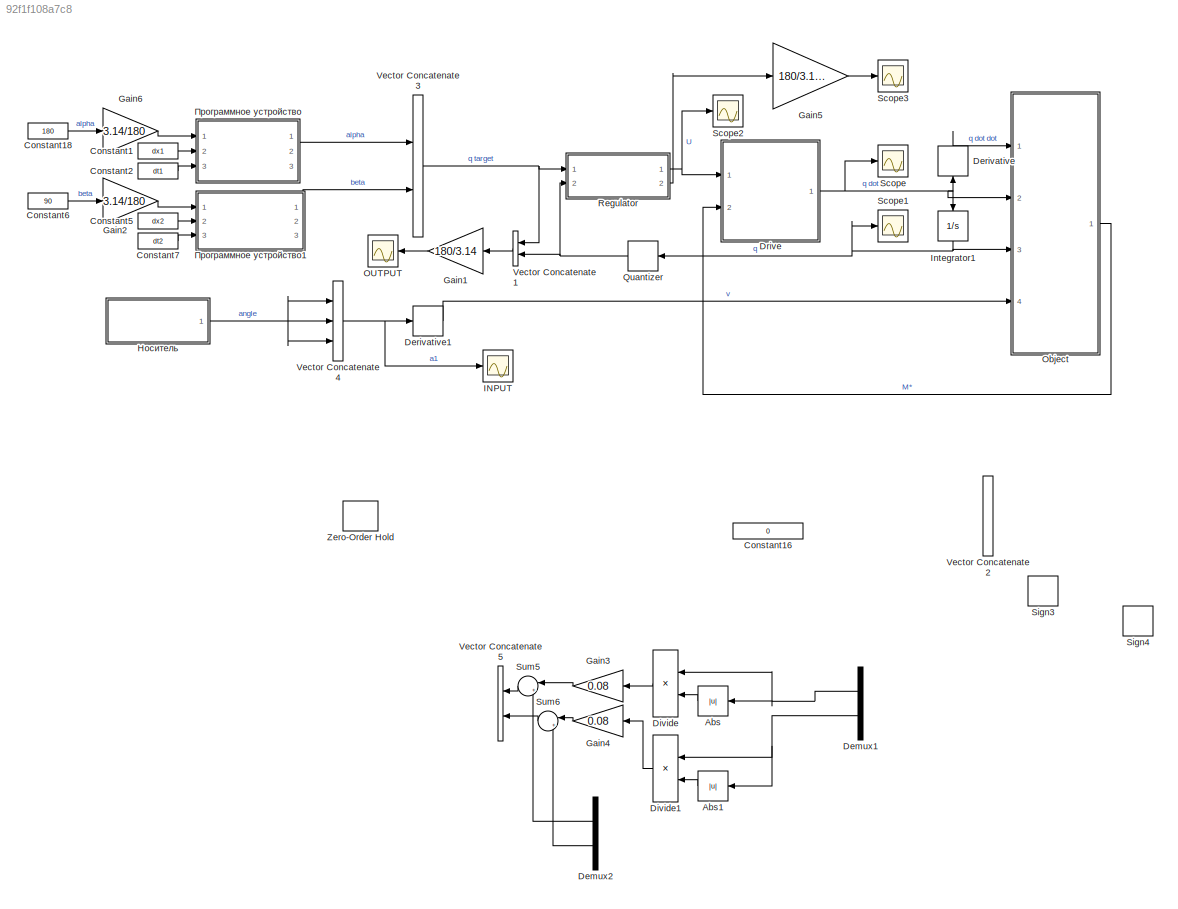
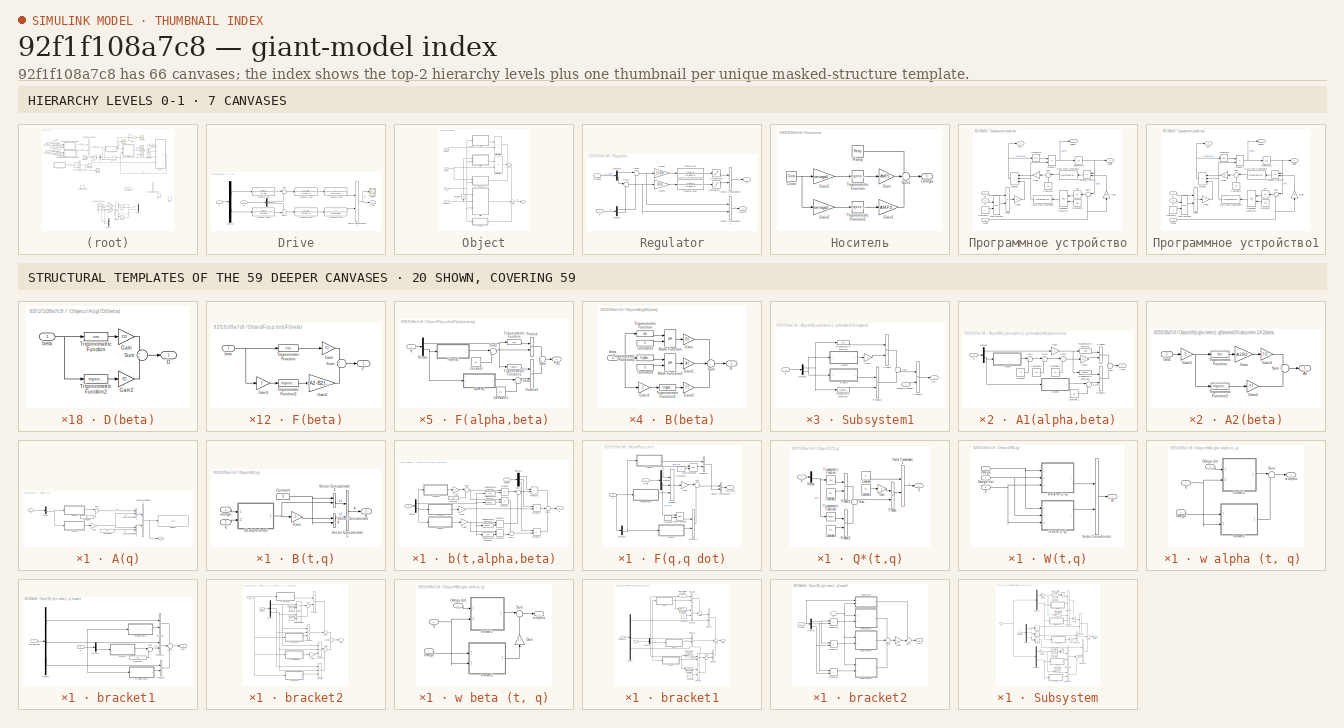
[diagram: thumbnail index - top-2 hierarchy levels (7 canvases) + 20 structural-template representatives of the remaining 59 canvases]
MODEL slx_92f1f108a7c8
KIND model
CONFIG AbsTol = auto
CONFIG EnableMultiTasking = off
CONFIG FixedStep = auto
CONFIG MaxStep = auto
CONFIG MinStep = auto
CONFIG RelTol = 1e-3
CONFIG SampleTimeConstraint = Unconstrained
CONFIG Solver = VariableStepAuto
CONFIG SolverName = VariableStepAuto
CONFIG StartTime = 0.0
CONFIG StopTime = 1
WORKSPACE source: mxarray member
WORKSPACE A1 = 0.212
WORKSPACE A2 = 0.0033
WORKSPACE AMP1 = 0.209333333333
WORKSPACE AMP2 = 0.0330526315789
WORKSPACE B1 = 0.311
WORKSPACE B2 = 0.0075
WORKSPACE C1 = 0.1
WORKSPACE C2 = 0.0084
WORKSPACE Ce1 = 0.27
WORKSPACE Ce2 = 0.12
WORKSPACE Cm1 = 0.36
WORKSPACE Cm2 = 0.12
WORKSPACE D1 = 0.1
WORKSPACE D2 = 0.001
WORKSPACE E1 = 0.1
WORKSPACE E2 = 0.001
WORKSPACE F1 = 0.1
WORKSPACE F2 = 0.001
WORKSPACE L1 = 0.00032
WORKSPACE L2 = 0.000194
WORKSPACE R1 = 0.32
WORKSPACE R2 = 0.485
WORKSPACE RAMP = 0.209333333333
WORKSPACE Tpwm = 6.25e-05
WORKSPACE Xc2 = 0
WORKSPACE Yc2 = 0.0148
WORKSPACE dt1 = 0.6
WORKSPACE dt2 = 0.6
WORKSPACE dx1 = 3.14
WORKSPACE dx2 = 1.57
WORKSPACE g = 9.81
WORKSPACE m2 = 1.13085
WORKSPACE omega1 = 1.005
WORKSPACE omega2 = 6.28
BLOCK [Abs] Abs
  NameLocation = top
  SaturateOnIntegerOverflow = off
  ZeroCross = off
BLOCK [Abs] Abs1
  NameLocation = top
  SaturateOnIntegerOverflow = off
  ZeroCross = off
BLOCK [Constant] Constant1
  Value = dx1
BLOCK [Constant] Constant16
  Value = 0
BLOCK [Constant] Constant18
  Value = 180
BLOCK [Constant] Constant2
  Value = dt1
BLOCK [Constant] Constant5
  Value = dx2
BLOCK [Constant] Constant6
  Value = 90
BLOCK [Constant] Constant7
  Value = dt2
BLOCK [Demux] Demux1
  NameLocation = top
  Outputs = 2
  Ports = [1, 2]
BLOCK [Demux] Demux2
  NameLocation = top
  Outputs = 2
  Ports = [1, 2]
BLOCK [Derivative] Derivative
  NameLocation = right
BLOCK [Derivative] Derivative1
BLOCK [Product] Divide
  Inputs = */
  NameLocation = top
  Ports = [2, 1]
BLOCK [Product] Divide1
  Inputs = */
  NameLocation = top
  Ports = [2, 1]
BLOCK [SubSystem] Drive
  Ports = [2, 1]
  RequestExecContextInheritance = off
BLOCK [Demux] Drive/Demux
  Outputs = 2
  Ports = [1, 2]
BLOCK [Demux] Drive/Demux1
  Outputs = 2
  Ports = [1, 2]
BLOCK [Inport] Drive/M
  Port = 2
BLOCK [Scope] Drive/Scope
  Floating = off
  NumInputPorts = 1
  Ports = [1]
  ScopeSpecificationString = Simulink.scopes.TimeScopeBlockCfg('CurrentConfiguration', extmgr.ConfigurationSet(extmgr.Configuration('Core','General UI',true),extmgr.Configuration('Core','Source UI',true),extmgr.Configuration('Sources','WiredSimulink',true,'DataLoggingVariableName','ScopeData1'),extmgr.Configuration('Visuals','Time Domain',true,'SerializedDisplays',{struct('MinYLimReal','-1.12487','MaxYLimReal','0.2361','YLabe...<+1368ch>
BLOCK [Sum] Drive/Sum
  Inputs = |+-
  Ports = [2, 1]
BLOCK [Sum] Drive/Sum1
  Inputs = -+|
  Ports = [2, 1]
BLOCK [TransferFcn] Drive/Transfer Fcn
  Denominator = [L1 R1]
  Numerator = [Cm1]
BLOCK [TransferFcn] Drive/Transfer Fcn1
  Denominator = [Cm1*Ce1]
  Numerator = 1
BLOCK [TransferFcn] Drive/Transfer Fcn2
  Denominator = [0.001 1]
  Numerator = [L1 R1]
BLOCK [TransferFcn] Drive/Transfer Fcn3
  Denominator = [L2 R2]
  Numerator = [Cm2]
BLOCK [TransferFcn] Drive/Transfer Fcn4
  Denominator = [Cm2*Ce2]
  Numerator = 1
BLOCK [TransferFcn] Drive/Transfer Fcn5
  Denominator = [0.001 1]
  Numerator = [L2 R2]
BLOCK [Inport] Drive/U
BLOCK [Concatenate] Drive/Vector Concatenate6
  Ports = [2, 1]
BLOCK [Outport] Drive/q dot
  VectorParamsAs1DForOutWhenUnconnected = off
BLOCK [Gain] Gain1
  Gain = 180/3.14
  NameLocation = top
BLOCK [Gain] Gain2
  Gain = 3.14/180
BLOCK [Gain] Gain3
  Gain = 0.08
  NameLocation = top
BLOCK [Gain] Gain4
  Gain = 0.08
  NameLocation = top
BLOCK [Gain] Gain5
  Gain = 180/3.14*60
BLOCK [Gain] Gain6
  Gain = 3.14/180
BLOCK [Scope] INPUT
  Floating = off
  NumInputPorts = 1
  Ports = [1]
  ScopeSpecificationString = Simulink.scopes.TimeScopeBlockCfg('CurrentConfiguration', extmgr.ConfigurationSet(extmgr.Configuration('Core','General UI',true,'FigureColor',[1 1 1]),extmgr.Configuration('Core','Source UI',true),extmgr.Configuration('Sources','WiredSimulink',true,'DataLoggingVariableName','ScopeData1'),extmgr.Configuration('Visuals','Time Domain',true,'SerializedDisplays',{struct('MinYLimReal','-0.10573','MaxYLi...<+1798ch>
BLOCK [Integrator] Integrator1
  NameLocation = left
  Ports = [1, 1]
BLOCK [Scope] OUTPUT
  Floating = off
  NameLocation = top
  NumInputPorts = 1
  Ports = [1]
  ScopeSpecificationString = Simulink.scopes.TimeScopeBlockCfg('CurrentConfiguration', extmgr.ConfigurationSet(extmgr.Configuration('Core','General UI',true,'FigureColor',[1 1 1]),extmgr.Configuration('Core','Source UI',true),extmgr.Configuration('Sources','WiredSimulink',true,'DataLoggingVariableName','ScopeData3'),extmgr.Configuration('Visuals','Time Domain',true,'SerializedDisplays',{struct('MinYLimReal','-22.54801','MaxYL...<+1831ch>
BLOCK [SubSystem] Object
  Ports = [4, 1]
  RequestExecContextInheritance = off
BLOCK [SubSystem] Object/A(q)
  Ports = [1, 1]
  RequestExecContextInheritance = off
BLOCK [Outport] Object/A(q)/A
  VectorParamsAs1DForOutWhenUnconnected = off
BLOCK [SubSystem] Object/A(q)/B(beta)
  Ports = [1, 1]
  RequestExecContextInheritance = off
BLOCK [Outport] Object/A(q)/B(beta)/B
  VectorParamsAs1DForOutWhenUnconnected = off
BLOCK [Constant] Object/A(q)/B(beta)/Constant3
  Value = 2
BLOCK [Constant] Object/A(q)/B(beta)/Constant4
  Value = 2
BLOCK [Gain] Object/A(q)/B(beta)/Gain
  Gain = B2
BLOCK [Gain] Object/A(q)/B(beta)/Gain1
  Gain = A2
BLOCK [Gain] Object/A(q)/B(beta)/Gain2
  Gain = F2
BLOCK [Gain] Object/A(q)/B(beta)/Gain3
  Gain = 2
BLOCK [Math] Object/A(q)/B(beta)/Math Function
  Operator = pow
  Ports = [2, 1]
  SignedPower = on
BLOCK [Math] Object/A(q)/B(beta)/Math Function1
  Operator = pow
  Ports = [2, 1]
  SignedPower = on
BLOCK [Sum] Object/A(q)/B(beta)/Sum
  Inputs = ++-
  Ports = [3, 1]
BLOCK [Trigonometry] Object/A(q)/B(beta)/Trigonometric Function
  Operator = cos
  Ports = [1, 1]
BLOCK [Trigonometry] Object/A(q)/B(beta)/Trigonometric Function1
  Ports = [1, 1]
BLOCK [Trigonometry] Object/A(q)/B(beta)/Trigonometric Function2
  Ports = [1, 1]
BLOCK [Inport] Object/A(q)/B(beta)/beta
BLOCK [Constant] Object/A(q)/Constant10
  Value = C2
BLOCK [Constant] Object/A(q)/Constant7
  Value = B1
BLOCK [SubSystem] Object/A(q)/D(beta)
  Ports = [1, 1]
  RequestExecContextInheritance = off
BLOCK [Outport] Object/A(q)/D(beta)/D
  VectorParamsAs1DForOutWhenUnconnected = off
BLOCK [Gain] Object/A(q)/D(beta)/Gain
  Gain = D2
BLOCK [Gain] Object/A(q)/D(beta)/Gain2
  Gain = E2
BLOCK [Sum] Object/A(q)/D(beta)/Sum
  Ports = [2, 1]
BLOCK [Trigonometry] Object/A(q)/D(beta)/Trigonometric Function
  Operator = cos
  Ports = [1, 1]
BLOCK [Trigonometry] Object/A(q)/D(beta)/Trigonometric Function2
  Ports = [1, 1]
BLOCK [Inport] Object/A(q)/D(beta)/beta
BLOCK [Demux] Object/A(q)/Demux
  Outputs = 2
  Ports = [1, 2]
BLOCK [Display] Object/A(q)/Display5
  Decimation = 1
  Ports = [1]
BLOCK [Gain] Object/A(q)/Gain
  Gain = -1
BLOCK [Sum] Object/A(q)/Sum
  Inputs = |++
  Ports = [2, 1]
BLOCK [Concatenate] Object/A(q)/Vector Concatenate1
  Ports = [2, 1]
BLOCK [Concatenate] Object/A(q)/Vector Concatenate2
  Ports = [2, 1]
BLOCK [Concatenate] Object/A(q)/Vector Concatenate6
  ConcatenateDimension = 2
  Mode = Multidimensional array
  Ports = [2, 1]
BLOCK [Inport] Object/A(q)/q
BLOCK [SubSystem] Object/B(t,q)
  Ports = [2, 1]
  RequestExecContextInheritance = off
BLOCK [Outport] Object/B(t,q)/B
  VectorParamsAs1DForOutWhenUnconnected = off
BLOCK [Constant] Object/B(t,q)/Constant
  Value = 0
BLOCK [Gain] Object/B(t,q)/Gain
  Gain = -1
BLOCK [Concatenate] Object/B(t,q)/Vector Concatenate3
  Ports = [2, 1]
BLOCK [Concatenate] Object/B(t,q)/Vector Concatenate4
  Ports = [2, 1]
BLOCK [Concatenate] Object/B(t,q)/Vector Concatenate5
  ConcatenateDimension = 2
  Mode = Multidimensional array
  Ports = [2, 1]
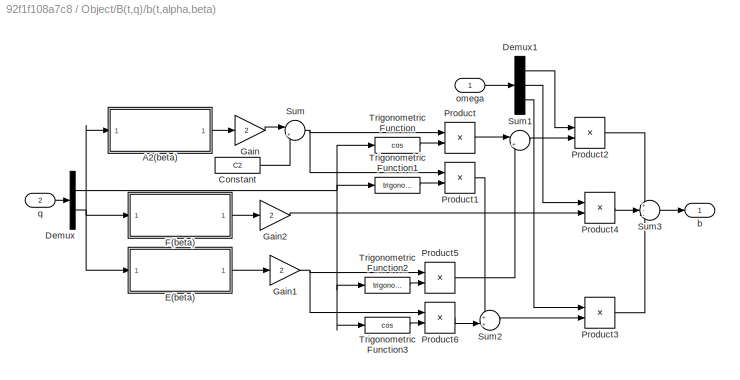
BLOCK [SubSystem] Object/B(t,q)/b(t,alpha,beta)
  Ports = [2, 1]
  RequestExecContextInheritance = off
BLOCK [SubSystem] Object/B(t,q)/b(t,alpha,beta)/A2(beta)
  Ports = [1, 1]
  RequestExecContextInheritance = off
BLOCK [Outport] Object/B(t,q)/b(t,alpha,beta)/A2(beta)/A2
  VectorParamsAs1DForOutWhenUnconnected = off
BLOCK [Gain] Object/B(t,q)/b(t,alpha,beta)/A2(beta)/Gain
  Gain = (A2-B2)/2
BLOCK [Gain] Object/B(t,q)/b(t,alpha,beta)/A2(beta)/Gain1
  Gain = 2
BLOCK [Gain] Object/B(t,q)/b(t,alpha,beta)/A2(beta)/Gain2
  Gain = F2
BLOCK [Sum] Object/B(t,q)/b(t,alpha,beta)/A2(beta)/Sum
  Ports = [2, 1]
BLOCK [Trigonometry] Object/B(t,q)/b(t,alpha,beta)/A2(beta)/Trigonometric Function
  Operator = cos
  Ports = [1, 1]
BLOCK [Trigonometry] Object/B(t,q)/b(t,alpha,beta)/A2(beta)/Trigonometric Function2
  Ports = [1, 1]
BLOCK [Inport] Object/B(t,q)/b(t,alpha,beta)/A2(beta)/beta
BLOCK [Constant] Object/B(t,q)/b(t,alpha,beta)/Constant
  Value = C2
BLOCK [Demux] Object/B(t,q)/b(t,alpha,beta)/Demux
  Outputs = 2
  Ports = [1, 2]
BLOCK [Demux] Object/B(t,q)/b(t,alpha,beta)/Demux1
  Outputs = 3
  Ports = [1, 3]
BLOCK [SubSystem] Object/B(t,q)/b(t,alpha,beta)/E(beta)
  Ports = [1, 1]
  RequestExecContextInheritance = off
BLOCK [Outport] Object/B(t,q)/b(t,alpha,beta)/E(beta)/E
  VectorParamsAs1DForOutWhenUnconnected = off
BLOCK [Gain] Object/B(t,q)/b(t,alpha,beta)/E(beta)/Gain
  Gain = E2
BLOCK [Gain] Object/B(t,q)/b(t,alpha,beta)/E(beta)/Gain2
  Gain = D2
BLOCK [Sum] Object/B(t,q)/b(t,alpha,beta)/E(beta)/Sum
  Inputs = +-
  Ports = [2, 1]
BLOCK [Trigonometry] Object/B(t,q)/b(t,alpha,beta)/E(beta)/Trigonometric Function
  Operator = cos
  Ports = [1, 1]
BLOCK [Trigonometry] Object/B(t,q)/b(t,alpha,beta)/E(beta)/Trigonometric Function2
  Ports = [1, 1]
BLOCK [Inport] Object/B(t,q)/b(t,alpha,beta)/E(beta)/beta
BLOCK [SubSystem] Object/B(t,q)/b(t,alpha,beta)/F(beta)
  Ports = [1, 1]
  RequestExecContextInheritance = off
BLOCK [Outport] Object/B(t,q)/b(t,alpha,beta)/F(beta)/F
  VectorParamsAs1DForOutWhenUnconnected = off
BLOCK [Gain] Object/B(t,q)/b(t,alpha,beta)/F(beta)/Gain
  Gain = F2
BLOCK [Gain] Object/B(t,q)/b(t,alpha,beta)/F(beta)/Gain1
  Gain = 2
BLOCK [Gain] Object/B(t,q)/b(t,alpha,beta)/F(beta)/Gain2
  Gain = (A2-B2)/2
BLOCK [Sum] Object/B(t,q)/b(t,alpha,beta)/F(beta)/Sum
  Inputs = +-
  Ports = [2, 1]
BLOCK [Trigonometry] Object/B(t,q)/b(t,alpha,beta)/F(beta)/Trigonometric Function
  Operator = cos
  Ports = [1, 1]
BLOCK [Trigonometry] Object/B(t,q)/b(t,alpha,beta)/F(beta)/Trigonometric Function2
  Ports = [1, 1]
BLOCK [Inport] Object/B(t,q)/b(t,alpha,beta)/F(beta)/beta
BLOCK [Gain] Object/B(t,q)/b(t,alpha,beta)/Gain
  Gain = 2
BLOCK [Gain] Object/B(t,q)/b(t,alpha,beta)/Gain1
  Gain = 2
BLOCK [Gain] Object/B(t,q)/b(t,alpha,beta)/Gain2
  Gain = 2
BLOCK [Product] Object/B(t,q)/b(t,alpha,beta)/Product
  Ports = [2, 1]
BLOCK [Product] Object/B(t,q)/b(t,alpha,beta)/Product1
  Ports = [2, 1]
BLOCK [Product] Object/B(t,q)/b(t,alpha,beta)/Product2
  Ports = [2, 1]
BLOCK [Product] Object/B(t,q)/b(t,alpha,beta)/Product3
  Ports = [2, 1]
BLOCK [Product] Object/B(t,q)/b(t,alpha,beta)/Product4
  Ports = [2, 1]
BLOCK [Product] Object/B(t,q)/b(t,alpha,beta)/Product5
  Ports = [2, 1]
BLOCK [Product] Object/B(t,q)/b(t,alpha,beta)/Product6
  Ports = [2, 1]
BLOCK [Sum] Object/B(t,q)/b(t,alpha,beta)/Sum
  Inputs = |+-
  Ports = [2, 1]
BLOCK [Sum] Object/B(t,q)/b(t,alpha,beta)/Sum1
  Inputs = |+-
  Ports = [2, 1]
BLOCK [Sum] Object/B(t,q)/b(t,alpha,beta)/Sum2
  Inputs = ++|
  Ports = [2, 1]
BLOCK [Sum] Object/B(t,q)/b(t,alpha,beta)/Sum3
  Inputs = +--
  Ports = [3, 1]
BLOCK [Trigonometry] Object/B(t,q)/b(t,alpha,beta)/Trigonometric Function
  Operator = cos
  Ports = [1, 1]
BLOCK [Trigonometry] Object/B(t,q)/b(t,alpha,beta)/Trigonometric Function1
  Ports = [1, 1]
BLOCK [Trigonometry] Object/B(t,q)/b(t,alpha,beta)/Trigonometric Function2
  Ports = [1, 1]
BLOCK [Trigonometry] Object/B(t,q)/b(t,alpha,beta)/Trigonometric Function3
  Operator = cos
  Ports = [1, 1]
BLOCK [Outport] Object/B(t,q)/b(t,alpha,beta)/b
  VectorParamsAs1DForOutWhenUnconnected = off
BLOCK [Inport] Object/B(t,q)/b(t,alpha,beta)/omega
BLOCK [Inport] Object/B(t,q)/b(t,alpha,beta)/q
  Port = 2
BLOCK [Inport] Object/B(t,q)/omega
BLOCK [Inport] Object/B(t,q)/q
  Port = 2
BLOCK [SubSystem] Object/F(q,q dot)
  Ports = [2, 1]
  RequestExecContextInheritance = off
BLOCK [Constant] Object/F(q,q dot)/Constant
  Value = 2
BLOCK [Constant] Object/F(q,q dot)/Constant1
  Value = 2
BLOCK [Demux] Object/F(q,q dot)/Demux
  Outputs = 2
  Ports = [1, 2]
BLOCK [Demux] Object/F(q,q dot)/Demux1
  Outputs = 2
  Ports = [1, 2]
BLOCK [SubSystem] Object/F(q,q dot)/E(beta)
  Ports = [1, 1]
  RequestExecContextInheritance = off
BLOCK [Outport] Object/F(q,q dot)/E(beta)/E
  VectorParamsAs1DForOutWhenUnconnected = off
BLOCK [Gain] Object/F(q,q dot)/E(beta)/Gain
  Gain = E2
BLOCK [Gain] Object/F(q,q dot)/E(beta)/Gain2
  Gain = D2
BLOCK [Sum] Object/F(q,q dot)/E(beta)/Sum
  Inputs = +-
  Ports = [2, 1]
BLOCK [Trigonometry] Object/F(q,q dot)/E(beta)/Trigonometric Function
  Operator = cos
  Ports = [1, 1]
BLOCK [Trigonometry] Object/F(q,q dot)/E(beta)/Trigonometric Function2
  Ports = [1, 1]
BLOCK [Inport] Object/F(q,q dot)/E(beta)/beta
BLOCK [SubSystem] Object/F(q,q dot)/F(alpha,beta)
  Ports = [1, 1]
  RequestExecContextInheritance = off
BLOCK [Constant] Object/F(q,q dot)/F(alpha,beta)/Constant
  Value = F1
BLOCK [Constant] Object/F(q,q dot)/F(alpha,beta)/Constant1
  Value = D1
BLOCK [SubSystem] Object/F(q,q dot)/F(alpha,beta)/D(beta)
  Ports = [1, 1]
  RequestExecContextInheritance = off
BLOCK [Outport] Object/F(q,q dot)/F(alpha,beta)/D(beta)/D
  VectorParamsAs1DForOutWhenUnconnected = off
BLOCK [Gain] Object/F(q,q dot)/F(alpha,beta)/D(beta)/Gain
  Gain = D2
BLOCK [Gain] Object/F(q,q dot)/F(alpha,beta)/D(beta)/Gain2
  Gain = E2
BLOCK [Sum] Object/F(q,q dot)/F(alpha,beta)/D(beta)/Sum
  Ports = [2, 1]
BLOCK [Trigonometry] Object/F(q,q dot)/F(alpha,beta)/D(beta)/Trigonometric Function
  Operator = cos
  Ports = [1, 1]
BLOCK [Trigonometry] Object/F(q,q dot)/F(alpha,beta)/D(beta)/Trigonometric Function2
  Ports = [1, 1]
BLOCK [Inport] Object/F(q,q dot)/F(alpha,beta)/D(beta)/beta
BLOCK [Demux] Object/F(q,q dot)/F(alpha,beta)/Demux
  Outputs = 2
  Ports = [1, 2]
BLOCK [SubSystem] Object/F(q,q dot)/F(alpha,beta)/F(beta)
  Ports = [1, 1]
  RequestExecContextInheritance = off
BLOCK [Outport] Object/F(q,q dot)/F(alpha,beta)/F(beta)/F
  VectorParamsAs1DForOutWhenUnconnected = off
BLOCK [Gain] Object/F(q,q dot)/F(alpha,beta)/F(beta)/Gain
  Gain = F2
BLOCK [Gain] Object/F(q,q dot)/F(alpha,beta)/F(beta)/Gain1
  Gain = 2
BLOCK [Gain] Object/F(q,q dot)/F(alpha,beta)/F(beta)/Gain2
  Gain = (A2-B2)/2
BLOCK [Sum] Object/F(q,q dot)/F(alpha,beta)/F(beta)/Sum
  Inputs = +-
  Ports = [2, 1]
BLOCK [Trigonometry] Object/F(q,q dot)/F(alpha,beta)/F(beta)/Trigonometric Function
  Operator = cos
  Ports = [1, 1]
BLOCK [Trigonometry] Object/F(q,q dot)/F(alpha,beta)/F(beta)/Trigonometric Function2
  Ports = [1, 1]
BLOCK [Inport] Object/F(q,q dot)/F(alpha,beta)/F(beta)/beta
BLOCK [Outport] Object/F(q,q dot)/F(alpha,beta)/F(q)
  VectorParamsAs1DForOutWhenUnconnected = off
BLOCK [Product] Object/F(q,q dot)/F(alpha,beta)/Product
  Ports = [2, 1]
BLOCK [Product] Object/F(q,q dot)/F(alpha,beta)/Product1
  Ports = [2, 1]
BLOCK [Sum] Object/F(q,q dot)/F(alpha,beta)/Sum
  Ports = [2, 1]
BLOCK [Sum] Object/F(q,q dot)/F(alpha,beta)/Sum1
  Inputs = |++
  Ports = [2, 1]
BLOCK [Sum] Object/F(q,q dot)/F(alpha,beta)/Sum2
  Inputs = |++
  Ports = [2, 1]
BLOCK [Trigonometry] Object/F(q,q dot)/F(alpha,beta)/Trigonometric Function
  Operator = cos
  Ports = [1, 1]
BLOCK [Trigonometry] Object/F(q,q dot)/F(alpha,beta)/Trigonometric Function2
  Ports = [1, 1]
BLOCK [Inport] Object/F(q,q dot)/F(alpha,beta)/q
BLOCK [SubSystem] Object/F(q,q dot)/F(beta)
  Ports = [1, 1]
  RequestExecContextInheritance = off
BLOCK [Outport] Object/F(q,q dot)/F(beta)/F
  VectorParamsAs1DForOutWhenUnconnected = off
BLOCK [Gain] Object/F(q,q dot)/F(beta)/Gain
  Gain = F2
BLOCK [Gain] Object/F(q,q dot)/F(beta)/Gain1
  Gain = 2
BLOCK [Gain] Object/F(q,q dot)/F(beta)/Gain2
  Gain = (A2-B2)/2
BLOCK [Sum] Object/F(q,q dot)/F(beta)/Sum
  Inputs = +-
  Ports = [2, 1]
BLOCK [Trigonometry] Object/F(q,q dot)/F(beta)/Trigonometric Function
  Operator = cos
  Ports = [1, 1]
BLOCK [Trigonometry] Object/F(q,q dot)/F(beta)/Trigonometric Function2
  Ports = [1, 1]
BLOCK [Inport] Object/F(q,q dot)/F(beta)/beta
BLOCK [Outport] Object/F(q,q dot)/F(q,q dot)
  VectorParamsAs1DForOutWhenUnconnected = off
BLOCK [Gain] Object/F(q,q dot)/Gain
  Gain = 2
BLOCK [Math] Object/F(q,q dot)/Math Function
  Operator = pow
  Ports = [2, 1]
  SignedPower = on
BLOCK [Math] Object/F(q,q dot)/Math Function1
  Operator = pow
  Ports = [2, 1]
  SignedPower = on
BLOCK [Product] Object/F(q,q dot)/Product
  Inputs = 3
  Ports = [3, 1]
BLOCK [Product] Object/F(q,q dot)/Product1
  Ports = [2, 1]
BLOCK [Product] Object/F(q,q dot)/Product2
  Ports = [2, 1]
BLOCK [Sum] Object/F(q,q dot)/Sum
  Inputs = |--
  Ports = [2, 1]
BLOCK [Concatenate] Object/F(q,q dot)/Vector Concatenate
  Ports = [2, 1]
BLOCK [Inport] Object/F(q,q dot)/q
  Port = 2
BLOCK [Inport] Object/F(q,q dot)/q dot
BLOCK [Integrator] Object/Integrator2
  NameLocation = right
  Ports = [1, 1]
BLOCK [Outport] Object/M*
  VectorParamsAs1DForOutWhenUnconnected = off
BLOCK [Product] Object/Matrix Multiply1
  Multiplication = Matrix(*)
  Ports = [2, 1]
BLOCK [Product] Object/Matrix Multiply2
  Multiplication = Matrix(*)
  Ports = [2, 1]
BLOCK [Inport] Object/Omega dot
  Port = 4
BLOCK [SubSystem] Object/Q*(t,q)
  Ports = [1, 1]
  RequestExecContextInheritance = off
BLOCK [Constant] Object/Q*(t,q)/Constant
  Value = 0
BLOCK [Constant] Object/Q*(t,q)/Constant1
  Value = m2
BLOCK [Constant] Object/Q*(t,q)/Constant2
  Value = Xc2
BLOCK [Constant] Object/Q*(t,q)/Constant3
  Value = Yc2
BLOCK [Demux] Object/Q*(t,q)/Demux
  Outputs = 2
  Ports = [1, 2]
BLOCK [Gain] Object/Q*(t,q)/Gain
  Gain = g
BLOCK [Product] Object/Q*(t,q)/Product
  Ports = [2, 1]
BLOCK [Product] Object/Q*(t,q)/Product1
  Ports = [2, 1]
BLOCK [Product] Object/Q*(t,q)/Product2
  Ports = [2, 1]
BLOCK [Outport] Object/Q*(t,q)/Q
  VectorParamsAs1DForOutWhenUnconnected = off
BLOCK [Sum] Object/Q*(t,q)/Sum
  Inputs = +-
  Ports = [2, 1]
BLOCK [Trigonometry] Object/Q*(t,q)/Trigonometric Function
  Operator = cos
  Ports = [1, 1]
BLOCK [Trigonometry] Object/Q*(t,q)/Trigonometric Function1
  Ports = [1, 1]
BLOCK [Concatenate] Object/Q*(t,q)/Vector Concatenate1
  Ports = [2, 1]
BLOCK [Inport] Object/Q*(t,q)/q
BLOCK [Sum] Object/Sum
  Inputs = +++
  Ports = [3, 1]
BLOCK [Sum] Object/Sum1
  Inputs = +++
  Ports = [3, 1]
BLOCK [SubSystem] Object/W(t,q)
  Ports = [3, 1]
  RequestExecContextInheritance = off
BLOCK [Inport] Object/W(t,q)/Omega
BLOCK [Inport] Object/W(t,q)/Omega dot
  Port = 2
BLOCK [Concatenate] Object/W(t,q)/Vector Concatenate
  Ports = [2, 1]
BLOCK [Outport] Object/W(t,q)/W
  VectorParamsAs1DForOutWhenUnconnected = off
BLOCK [Inport] Object/W(t,q)/q
  Port = 3
BLOCK [SubSystem] Object/W(t,q)/w alpha (t, q) 
  Ports = [3, 1]
  RequestExecContextInheritance = off
BLOCK [Inport] Object/W(t,q)/w alpha (t, q) /Omega
BLOCK [Inport] Object/W(t,q)/w alpha (t, q) /Omega dot
  Port = 2
BLOCK [Sum] Object/W(t,q)/w alpha (t, q) /Sum
  Inputs = |++
  Ports = [2, 1]
BLOCK [SubSystem] Object/W(t,q)/w alpha (t, q) /bracket1
  Ports = [2, 1]
  RequestExecContextInheritance = off
BLOCK [SubSystem] Object/W(t,q)/w alpha (t, q) /bracket1/B(beta)
  Ports = [1, 1]
  RequestExecContextInheritance = off
BLOCK [Outport] Object/W(t,q)/w alpha (t, q) /bracket1/B(beta)/B
  VectorParamsAs1DForOutWhenUnconnected = off
BLOCK [Constant] Object/W(t,q)/w alpha (t, q) /bracket1/B(beta)/Constant3
  Value = 2
BLOCK [Constant] Object/W(t,q)/w alpha (t, q) /bracket1/B(beta)/Constant4
  Value = 2
BLOCK [Gain] Object/W(t,q)/w alpha (t, q) /bracket1/B(beta)/Gain
  Gain = B2
BLOCK [Gain] Object/W(t,q)/w alpha (t, q) /bracket1/B(beta)/Gain1
  Gain = A2
BLOCK [Gain] Object/W(t,q)/w alpha (t, q) /bracket1/B(beta)/Gain2
  Gain = F2
BLOCK [Gain] Object/W(t,q)/w alpha (t, q) /bracket1/B(beta)/Gain3
  Gain = 2
BLOCK [Math] Object/W(t,q)/w alpha (t, q) /bracket1/B(beta)/Math Function
  Operator = pow
  Ports = [2, 1]
  SignedPower = on
BLOCK [Math] Object/W(t,q)/w alpha (t, q) /bracket1/B(beta)/Math Function1
  Operator = pow
  Ports = [2, 1]
  SignedPower = on
BLOCK [Sum] Object/W(t,q)/w alpha (t, q) /bracket1/B(beta)/Sum
  Inputs = ++-
  Ports = [3, 1]
BLOCK [Trigonometry] Object/W(t,q)/w alpha (t, q) /bracket1/B(beta)/Trigonometric Function
  Operator = cos
  Ports = [1, 1]
BLOCK [Trigonometry] Object/W(t,q)/w alpha (t, q) /bracket1/B(beta)/Trigonometric Function1
  Ports = [1, 1]
BLOCK [Trigonometry] Object/W(t,q)/w alpha (t, q) /bracket1/B(beta)/Trigonometric Function2
  Ports = [1, 1]
BLOCK [Inport] Object/W(t,q)/w alpha (t, q) /bracket1/B(beta)/beta
BLOCK [Constant] Object/W(t,q)/w alpha (t, q) /bracket1/Constant7
  Value = B1
BLOCK [SubSystem] Object/W(t,q)/w alpha (t, q) /bracket1/D(alpha,beta)
  Ports = [1, 1]
  RequestExecContextInheritance = off
BLOCK [Constant] Object/W(t,q)/w alpha (t, q) /bracket1/D(alpha,beta)/Constant
  Value = F1
BLOCK [Constant] Object/W(t,q)/w alpha (t, q) /bracket1/D(alpha,beta)/Constant1
  Value = D1
BLOCK [SubSystem] Object/W(t,q)/w alpha (t, q) /bracket1/D(alpha,beta)/D(beta)
  Ports = [1, 1]
  RequestExecContextInheritance = off
BLOCK [Outport] Object/W(t,q)/w alpha (t, q) /bracket1/D(alpha,beta)/D(beta)/D
  VectorParamsAs1DForOutWhenUnconnected = off
BLOCK [Gain] Object/W(t,q)/w alpha (t, q) /bracket1/D(alpha,beta)/D(beta)/Gain
  Gain = D2
BLOCK [Gain] Object/W(t,q)/w alpha (t, q) /bracket1/D(alpha,beta)/D(beta)/Gain2
  Gain = E2
BLOCK [Sum] Object/W(t,q)/w alpha (t, q) /bracket1/D(alpha,beta)/D(beta)/Sum
  Ports = [2, 1]
BLOCK [Trigonometry] Object/W(t,q)/w alpha (t, q) /bracket1/D(alpha,beta)/D(beta)/Trigonometric Function
  Operator = cos
  Ports = [1, 1]
BLOCK [Trigonometry] Object/W(t,q)/w alpha (t, q) /bracket1/D(alpha,beta)/D(beta)/Trigonometric Function2
  Ports = [1, 1]
BLOCK [Inport] Object/W(t,q)/w alpha (t, q) /bracket1/D(alpha,beta)/D(beta)/beta
BLOCK [Outport] Object/W(t,q)/w alpha (t, q) /bracket1/D(alpha,beta)/D(q)
  VectorParamsAs1DForOutWhenUnconnected = off
BLOCK [Demux] Object/W(t,q)/w alpha (t, q) /bracket1/D(alpha,beta)/Demux
  Outputs = 2
  Ports = [1, 2]
BLOCK [SubSystem] Object/W(t,q)/w alpha (t, q) /bracket1/D(alpha,beta)/F(beta)
  Ports = [1, 1]
  RequestExecContextInheritance = off
BLOCK [Outport] Object/W(t,q)/w alpha (t, q) /bracket1/D(alpha,beta)/F(beta)/F
  VectorParamsAs1DForOutWhenUnconnected = off
BLOCK [Gain] Object/W(t,q)/w alpha (t, q) /bracket1/D(alpha,beta)/F(beta)/Gain
  Gain = F2
BLOCK [Gain] Object/W(t,q)/w alpha (t, q) /bracket1/D(alpha,beta)/F(beta)/Gain1
  Gain = 2
BLOCK [Gain] Object/W(t,q)/w alpha (t, q) /bracket1/D(alpha,beta)/F(beta)/Gain2
  Gain = (A2-B2)/2
BLOCK [Sum] Object/W(t,q)/w alpha (t, q) /bracket1/D(alpha,beta)/F(beta)/Sum
  Inputs = +-
  Ports = [2, 1]
BLOCK [Trigonometry] Object/W(t,q)/w alpha (t, q) /bracket1/D(alpha,beta)/F(beta)/Trigonometric Function
  Operator = cos
  Ports = [1, 1]
BLOCK [Trigonometry] Object/W(t,q)/w alpha (t, q) /bracket1/D(alpha,beta)/F(beta)/Trigonometric Function2
  Ports = [1, 1]
BLOCK [Inport] Object/W(t,q)/w alpha (t, q) /bracket1/D(alpha,beta)/F(beta)/beta
BLOCK [Product] Object/W(t,q)/w alpha (t, q) /bracket1/D(alpha,beta)/Product
  Ports = [2, 1]
BLOCK [Product] Object/W(t,q)/w alpha (t, q) /bracket1/D(alpha,beta)/Product1
  Ports = [2, 1]
BLOCK [Sum] Object/W(t,q)/w alpha (t, q) /bracket1/D(alpha,beta)/Sum
  Inputs = -+
  Ports = [2, 1]
BLOCK [Sum] Object/W(t,q)/w alpha (t, q) /bracket1/D(alpha,beta)/Sum1
  Inputs = |++
  Ports = [2, 1]
BLOCK [Sum] Object/W(t,q)/w alpha (t, q) /bracket1/D(alpha,beta)/Sum2
  Inputs = |++
  Ports = [2, 1]
BLOCK [Trigonometry] Object/W(t,q)/w alpha (t, q) /bracket1/D(alpha,beta)/Trigonometric Function
  Ports = [1, 1]
BLOCK [Trigonometry] Object/W(t,q)/w alpha (t, q) /bracket1/D(alpha,beta)/Trigonometric Function2
  Operator = cos
  Ports = [1, 1]
BLOCK [Inport] Object/W(t,q)/w alpha (t, q) /bracket1/D(alpha,beta)/q
BLOCK [Demux] Object/W(t,q)/w alpha (t, q) /bracket1/Demux
  Outputs = 3
  Ports = [1, 3]
BLOCK [Demux] Object/W(t,q)/w alpha (t, q) /bracket1/Demux1
  Outputs = 2
  Ports = [1, 2]
BLOCK [SubSystem] Object/W(t,q)/w alpha (t, q) /bracket1/F(alpha,beta)
  Ports = [1, 1]
  RequestExecContextInheritance = off
BLOCK [Constant] Object/W(t,q)/w alpha (t, q) /bracket1/F(alpha,beta)/Constant
  Value = F1
BLOCK [Constant] Object/W(t,q)/w alpha (t, q) /bracket1/F(alpha,beta)/Constant1
  Value = D1
BLOCK [SubSystem] Object/W(t,q)/w alpha (t, q) /bracket1/F(alpha,beta)/D(beta)
  Ports = [1, 1]
  RequestExecContextInheritance = off
BLOCK [Outport] Object/W(t,q)/w alpha (t, q) /bracket1/F(alpha,beta)/D(beta)/D
  VectorParamsAs1DForOutWhenUnconnected = off
BLOCK [Gain] Object/W(t,q)/w alpha (t, q) /bracket1/F(alpha,beta)/D(beta)/Gain
  Gain = D2
BLOCK [Gain] Object/W(t,q)/w alpha (t, q) /bracket1/F(alpha,beta)/D(beta)/Gain2
  Gain = E2
BLOCK [Sum] Object/W(t,q)/w alpha (t, q) /bracket1/F(alpha,beta)/D(beta)/Sum
  Ports = [2, 1]
BLOCK [Trigonometry] Object/W(t,q)/w alpha (t, q) /bracket1/F(alpha,beta)/D(beta)/Trigonometric Function
  Operator = cos
  Ports = [1, 1]
BLOCK [Trigonometry] Object/W(t,q)/w alpha (t, q) /bracket1/F(alpha,beta)/D(beta)/Trigonometric Function2
  Ports = [1, 1]
BLOCK [Inport] Object/W(t,q)/w alpha (t, q) /bracket1/F(alpha,beta)/D(beta)/beta
BLOCK [Demux] Object/W(t,q)/w alpha (t, q) /bracket1/F(alpha,beta)/Demux
  Outputs = 2
  Ports = [1, 2]
BLOCK [SubSystem] Object/W(t,q)/w alpha (t, q) /bracket1/F(alpha,beta)/F(beta)
  Ports = [1, 1]
  RequestExecContextInheritance = off
BLOCK [Outport] Object/W(t,q)/w alpha (t, q) /bracket1/F(alpha,beta)/F(beta)/F
  VectorParamsAs1DForOutWhenUnconnected = off
BLOCK [Gain] Object/W(t,q)/w alpha (t, q) /bracket1/F(alpha,beta)/F(beta)/Gain
  Gain = F2
BLOCK [Gain] Object/W(t,q)/w alpha (t, q) /bracket1/F(alpha,beta)/F(beta)/Gain1
  Gain = 2
BLOCK [Gain] Object/W(t,q)/w alpha (t, q) /bracket1/F(alpha,beta)/F(beta)/Gain2
  Gain = (A2-B2)/2
BLOCK [Sum] Object/W(t,q)/w alpha (t, q) /bracket1/F(alpha,beta)/F(beta)/Sum
  Inputs = +-
  Ports = [2, 1]
BLOCK [Trigonometry] Object/W(t,q)/w alpha (t, q) /bracket1/F(alpha,beta)/F(beta)/Trigonometric Function
  Operator = cos
  Ports = [1, 1]
BLOCK [Trigonometry] Object/W(t,q)/w alpha (t, q) /bracket1/F(alpha,beta)/F(beta)/Trigonometric Function2
  Ports = [1, 1]
BLOCK [Inport] Object/W(t,q)/w alpha (t, q) /bracket1/F(alpha,beta)/F(beta)/beta
BLOCK [Outport] Object/W(t,q)/w alpha (t, q) /bracket1/F(alpha,beta)/F(q)
  VectorParamsAs1DForOutWhenUnconnected = off
BLOCK [Product] Object/W(t,q)/w alpha (t, q) /bracket1/F(alpha,beta)/Product
  Ports = [2, 1]
BLOCK [Product] Object/W(t,q)/w alpha (t, q) /bracket1/F(alpha,beta)/Product1
  Ports = [2, 1]
BLOCK [Sum] Object/W(t,q)/w alpha (t, q) /bracket1/F(alpha,beta)/Sum
  Ports = [2, 1]
BLOCK [Sum] Object/W(t,q)/w alpha (t, q) /bracket1/F(alpha,beta)/Sum1
  Inputs = |++
  Ports = [2, 1]
BLOCK [Sum] Object/W(t,q)/w alpha (t, q) /bracket1/F(alpha,beta)/Sum2
  Inputs = |++
  Ports = [2, 1]
BLOCK [Trigonometry] Object/W(t,q)/w alpha (t, q) /bracket1/F(alpha,beta)/Trigonometric Function
  Operator = cos
  Ports = [1, 1]
BLOCK [Trigonometry] Object/W(t,q)/w alpha (t, q) /bracket1/F(alpha,beta)/Trigonometric Function2
  Ports = [1, 1]
BLOCK [Inport] Object/W(t,q)/w alpha (t, q) /bracket1/F(alpha,beta)/q
BLOCK [Inport] Object/W(t,q)/w alpha (t, q) /bracket1/Omega dot
BLOCK [Outport] Object/W(t,q)/w alpha (t, q) /bracket1/Out1
  VectorParamsAs1DForOutWhenUnconnected = off
BLOCK [Product] Object/W(t,q)/w alpha (t, q) /bracket1/Product
  Ports = [2, 1]
BLOCK [Product] Object/W(t,q)/w alpha (t, q) /bracket1/Product1
  Ports = [2, 1]
BLOCK [Product] Object/W(t,q)/w alpha (t, q) /bracket1/Product2
  Ports = [2, 1]
BLOCK [Sum] Object/W(t,q)/w alpha (t, q) /bracket1/Sum
  Inputs = |++
  Ports = [2, 1]
BLOCK [Sum] Object/W(t,q)/w alpha (t, q) /bracket1/Sum1
  Inputs = -+-
  Ports = [3, 1]
BLOCK [Inport] Object/W(t,q)/w alpha (t, q) /bracket1/q
  Port = 2
BLOCK [SubSystem] Object/W(t,q)/w alpha (t, q) /bracket2
  Ports = [2, 1]
  RequestExecContextInheritance = off
BLOCK [SubSystem] Object/W(t,q)/w alpha (t, q) /bracket2/A1(alpha,beta)
  Ports = [1, 1]
  RequestExecContextInheritance = off
BLOCK [SubSystem] Object/W(t,q)/w alpha (t, q) /bracket2/A1(alpha,beta)/A(beta)
  Ports = [1, 1]
  RequestExecContextInheritance = off
BLOCK [Outport] Object/W(t,q)/w alpha (t, q) /bracket2/A1(alpha,beta)/A(beta)/A
  VectorParamsAs1DForOutWhenUnconnected = off
BLOCK [Constant] Object/W(t,q)/w alpha (t, q) /bracket2/A1(alpha,beta)/A(beta)/Constant
  Value = 2
BLOCK [Constant] Object/W(t,q)/w alpha (t, q) /bracket2/A1(alpha,beta)/A(beta)/Constant1
  Value = 2
BLOCK [Gain] Object/W(t,q)/w alpha (t, q) /bracket2/A1(alpha,beta)/A(beta)/Gain
  Gain = A2
BLOCK [Gain] Object/W(t,q)/w alpha (t, q) /bracket2/A1(alpha,beta)/A(beta)/Gain1
  Gain = 2
BLOCK [Gain] Object/W(t,q)/w alpha (t, q) /bracket2/A1(alpha,beta)/A(beta)/Gain2
  Gain = F2
BLOCK [Gain] Object/W(t,q)/w alpha (t, q) /bracket2/A1(alpha,beta)/A(beta)/Gain3
  Gain = B2
BLOCK [Math] Object/W(t,q)/w alpha (t, q) /bracket2/A1(alpha,beta)/A(beta)/Math Function
  Operator = pow
  Ports = [2, 1]
  SignedPower = on
BLOCK [Math] Object/W(t,q)/w alpha (t, q) /bracket2/A1(alpha,beta)/A(beta)/Math Function1
  Operator = pow
  Ports = [2, 1]
  SignedPower = on
BLOCK [Sum] Object/W(t,q)/w alpha (t, q) /bracket2/A1(alpha,beta)/A(beta)/Sum
  Inputs = +++
  Ports = [3, 1]
BLOCK [Trigonometry] Object/W(t,q)/w alpha (t, q) /bracket2/A1(alpha,beta)/A(beta)/Trigonometric Function
  Operator = cos
  Ports = [1, 1]
BLOCK [Trigonometry] Object/W(t,q)/w alpha (t, q) /bracket2/A1(alpha,beta)/A(beta)/Trigonometric Function1
  Ports = [1, 1]
BLOCK [Trigonometry] Object/W(t,q)/w alpha (t, q) /bracket2/A1(alpha,beta)/A(beta)/Trigonometric Function2
  Ports = [1, 1]
BLOCK [Inport] Object/W(t,q)/w alpha (t, q) /bracket2/A1(alpha,beta)/A(beta)/beta
BLOCK [Outport] Object/W(t,q)/w alpha (t, q) /bracket2/A1(alpha,beta)/A1(q)
  VectorParamsAs1DForOutWhenUnconnected = off
BLOCK [Constant] Object/W(t,q)/w alpha (t, q) /bracket2/A1(alpha,beta)/Constant
  Value = A1
BLOCK [Constant] Object/W(t,q)/w alpha (t, q) /bracket2/A1(alpha,beta)/Constant1
  Value = E1
BLOCK [Constant] Object/W(t,q)/w alpha (t, q) /bracket2/A1(alpha,beta)/Constant2
  Value = C1
BLOCK [Constant] Object/W(t,q)/w alpha (t, q) /bracket2/A1(alpha,beta)/Constant3
  Value = C2
BLOCK [Demux] Object/W(t,q)/w alpha (t, q) /bracket2/A1(alpha,beta)/Demux
  Outputs = 2
  Ports = [1, 2]
BLOCK [SubSystem] Object/W(t,q)/w alpha (t, q) /bracket2/A1(alpha,beta)/E(beta)
  Ports = [1, 1]
  RequestExecContextInheritance = off
BLOCK [Outport] Object/W(t,q)/w alpha (t, q) /bracket2/A1(alpha,beta)/E(beta)/E
  VectorParamsAs1DForOutWhenUnconnected = off
BLOCK [Gain] Object/W(t,q)/w alpha (t, q) /bracket2/A1(alpha,beta)/E(beta)/Gain
  Gain = E2
BLOCK [Gain] Object/W(t,q)/w alpha (t, q) /bracket2/A1(alpha,beta)/E(beta)/Gain2
  Gain = D2
BLOCK [Sum] Object/W(t,q)/w alpha (t, q) /bracket2/A1(alpha,beta)/E(beta)/Sum
  Inputs = +-
  Ports = [2, 1]
BLOCK [Trigonometry] Object/W(t,q)/w alpha (t, q) /bracket2/A1(alpha,beta)/E(beta)/Trigonometric Function
  Operator = cos
  Ports = [1, 1]
BLOCK [Trigonometry] Object/W(t,q)/w alpha (t, q) /bracket2/A1(alpha,beta)/E(beta)/Trigonometric Function2
  Ports = [1, 1]
BLOCK [Inport] Object/W(t,q)/w alpha (t, q) /bracket2/A1(alpha,beta)/E(beta)/beta
BLOCK [Gain] Object/W(t,q)/w alpha (t, q) /bracket2/A1(alpha,beta)/Gain
  Gain = 2
BLOCK [Gain] Object/W(t,q)/w alpha (t, q) /bracket2/A1(alpha,beta)/Gain1
  Gain = 1/2
BLOCK [Product] Object/W(t,q)/w alpha (t, q) /bracket2/A1(alpha,beta)/Product
  Ports = [2, 1]
BLOCK [Product] Object/W(t,q)/w alpha (t, q) /bracket2/A1(alpha,beta)/Product1
  Ports = [2, 1]
BLOCK [Sum] Object/W(t,q)/w alpha (t, q) /bracket2/A1(alpha,beta)/Sum
  Inputs = +-
  Ports = [2, 1]
BLOCK [Sum] Object/W(t,q)/w alpha (t, q) /bracket2/A1(alpha,beta)/Sum1
  Inputs = |++
  Ports = [2, 1]
BLOCK [Sum] Object/W(t,q)/w alpha (t, q) /bracket2/A1(alpha,beta)/Sum2
  Inputs = |++
  Ports = [2, 1]
BLOCK [Sum] Object/W(t,q)/w alpha (t, q) /bracket2/A1(alpha,beta)/Sum3
  Inputs = |+-
  Ports = [2, 1]
BLOCK [Sum] Object/W(t,q)/w alpha (t, q) /bracket2/A1(alpha,beta)/Sum4
  Inputs = |+-
  Ports = [2, 1]
BLOCK [Trigonometry] Object/W(t,q)/w alpha (t, q) /bracket2/A1(alpha,beta)/Trigonometric Function
  Operator = cos
  Ports = [1, 1]
BLOCK [Trigonometry] Object/W(t,q)/w alpha (t, q) /bracket2/A1(alpha,beta)/Trigonometric Function2
  Ports = [1, 1]
BLOCK [Inport] Object/W(t,q)/w alpha (t, q) /bracket2/A1(alpha,beta)/q
BLOCK [Constant] Object/W(t,q)/w alpha (t, q) /bracket2/Constant
  Value = 2
BLOCK [Constant] Object/W(t,q)/w alpha (t, q) /bracket2/Constant1
  Value = 2
BLOCK [SubSystem] Object/W(t,q)/w alpha (t, q) /bracket2/D(alpha,beta)
  Ports = [1, 1]
  RequestExecContextInheritance = off
BLOCK [Constant] Object/W(t,q)/w alpha (t, q) /bracket2/D(alpha,beta)/Constant
  Value = F1
BLOCK [Constant] Object/W(t,q)/w alpha (t, q) /bracket2/D(alpha,beta)/Constant1
  Value = D1
BLOCK [SubSystem] Object/W(t,q)/w alpha (t, q) /bracket2/D(alpha,beta)/D(beta)
  Ports = [1, 1]
  RequestExecContextInheritance = off
BLOCK [Outport] Object/W(t,q)/w alpha (t, q) /bracket2/D(alpha,beta)/D(beta)/D
  VectorParamsAs1DForOutWhenUnconnected = off
BLOCK [Gain] Object/W(t,q)/w alpha (t, q) /bracket2/D(alpha,beta)/D(beta)/Gain
  Gain = D2
BLOCK [Gain] Object/W(t,q)/w alpha (t, q) /bracket2/D(alpha,beta)/D(beta)/Gain2
  Gain = E2
BLOCK [Sum] Object/W(t,q)/w alpha (t, q) /bracket2/D(alpha,beta)/D(beta)/Sum
  Ports = [2, 1]
BLOCK [Trigonometry] Object/W(t,q)/w alpha (t, q) /bracket2/D(alpha,beta)/D(beta)/Trigonometric Function
  Operator = cos
  Ports = [1, 1]
BLOCK [Trigonometry] Object/W(t,q)/w alpha (t, q) /bracket2/D(alpha,beta)/D(beta)/Trigonometric Function2
  Ports = [1, 1]
BLOCK [Inport] Object/W(t,q)/w alpha (t, q) /bracket2/D(alpha,beta)/D(beta)/beta
BLOCK [Outport] Object/W(t,q)/w alpha (t, q) /bracket2/D(alpha,beta)/D(q)
  VectorParamsAs1DForOutWhenUnconnected = off
BLOCK [Demux] Object/W(t,q)/w alpha (t, q) /bracket2/D(alpha,beta)/Demux
  Outputs = 2
  Ports = [1, 2]
BLOCK [SubSystem] Object/W(t,q)/w alpha (t, q) /bracket2/D(alpha,beta)/F(beta)
  Ports = [1, 1]
  RequestExecContextInheritance = off
BLOCK [Outport] Object/W(t,q)/w alpha (t, q) /bracket2/D(alpha,beta)/F(beta)/F
  VectorParamsAs1DForOutWhenUnconnected = off
BLOCK [Gain] Object/W(t,q)/w alpha (t, q) /bracket2/D(alpha,beta)/F(beta)/Gain
  Gain = F2
BLOCK [Gain] Object/W(t,q)/w alpha (t, q) /bracket2/D(alpha,beta)/F(beta)/Gain1
  Gain = 2
BLOCK [Gain] Object/W(t,q)/w alpha (t, q) /bracket2/D(alpha,beta)/F(beta)/Gain2
  Gain = (A2-B2)/2
BLOCK [Sum] Object/W(t,q)/w alpha (t, q) /bracket2/D(alpha,beta)/F(beta)/Sum
  Inputs = +-
  Ports = [2, 1]
BLOCK [Trigonometry] Object/W(t,q)/w alpha (t, q) /bracket2/D(alpha,beta)/F(beta)/Trigonometric Function
  Operator = cos
  Ports = [1, 1]
BLOCK [Trigonometry] Object/W(t,q)/w alpha (t, q) /bracket2/D(alpha,beta)/F(beta)/Trigonometric Function2
  Ports = [1, 1]
BLOCK [Inport] Object/W(t,q)/w alpha (t, q) /bracket2/D(alpha,beta)/F(beta)/beta
BLOCK [Product] Object/W(t,q)/w alpha (t, q) /bracket2/D(alpha,beta)/Product
  Ports = [2, 1]
BLOCK [Product] Object/W(t,q)/w alpha (t, q) /bracket2/D(alpha,beta)/Product1
  Ports = [2, 1]
BLOCK [Sum] Object/W(t,q)/w alpha (t, q) /bracket2/D(alpha,beta)/Sum
  Inputs = -+
  Ports = [2, 1]
BLOCK [Sum] Object/W(t,q)/w alpha (t, q) /bracket2/D(alpha,beta)/Sum1
  Inputs = |++
  Ports = [2, 1]
BLOCK [Sum] Object/W(t,q)/w alpha (t, q) /bracket2/D(alpha,beta)/Sum2
  Inputs = |++
  Ports = [2, 1]
BLOCK [Trigonometry] Object/W(t,q)/w alpha (t, q) /bracket2/D(alpha,beta)/Trigonometric Function
  Ports = [1, 1]
BLOCK [Trigonometry] Object/W(t,q)/w alpha (t, q) /bracket2/D(alpha,beta)/Trigonometric Function2
  Operator = cos
  Ports = [1, 1]
BLOCK [Inport] Object/W(t,q)/w alpha (t, q) /bracket2/D(alpha,beta)/q
BLOCK [Demux] Object/W(t,q)/w alpha (t, q) /bracket2/Demux
  Outputs = 3
  Ports = [1, 3]
BLOCK [SubSystem] Object/W(t,q)/w alpha (t, q) /bracket2/E(alpha,beta)
  Ports = [1, 1]
  RequestExecContextInheritance = off
BLOCK [SubSystem] Object/W(t,q)/w alpha (t, q) /bracket2/E(alpha,beta)/A(beta)
  Ports = [1, 1]
  RequestExecContextInheritance = off
BLOCK [Outport] Object/W(t,q)/w alpha (t, q) /bracket2/E(alpha,beta)/A(beta)/A
  VectorParamsAs1DForOutWhenUnconnected = off
BLOCK [Constant] Object/W(t,q)/w alpha (t, q) /bracket2/E(alpha,beta)/A(beta)/Constant
  Value = 2
BLOCK [Constant] Object/W(t,q)/w alpha (t, q) /bracket2/E(alpha,beta)/A(beta)/Constant1
  Value = 2
BLOCK [Gain] Object/W(t,q)/w alpha (t, q) /bracket2/E(alpha,beta)/A(beta)/Gain
  Gain = A2
BLOCK [Gain] Object/W(t,q)/w alpha (t, q) /bracket2/E(alpha,beta)/A(beta)/Gain1
  Gain = 2
BLOCK [Gain] Object/W(t,q)/w alpha (t, q) /bracket2/E(alpha,beta)/A(beta)/Gain2
  Gain = F2
BLOCK [Gain] Object/W(t,q)/w alpha (t, q) /bracket2/E(alpha,beta)/A(beta)/Gain3
  Gain = B2
BLOCK [Math] Object/W(t,q)/w alpha (t, q) /bracket2/E(alpha,beta)/A(beta)/Math Function
  Operator = pow
  Ports = [2, 1]
  SignedPower = on
BLOCK [Math] Object/W(t,q)/w alpha (t, q) /bracket2/E(alpha,beta)/A(beta)/Math Function1
  Operator = pow
  Ports = [2, 1]
  SignedPower = on
BLOCK [Sum] Object/W(t,q)/w alpha (t, q) /bracket2/E(alpha,beta)/A(beta)/Sum
  Inputs = +++
  Ports = [3, 1]
BLOCK [Trigonometry] Object/W(t,q)/w alpha (t, q) /bracket2/E(alpha,beta)/A(beta)/Trigonometric Function
  Operator = cos
  Ports = [1, 1]
BLOCK [Trigonometry] Object/W(t,q)/w alpha (t, q) /bracket2/E(alpha,beta)/A(beta)/Trigonometric Function1
  Ports = [1, 1]
BLOCK [Trigonometry] Object/W(t,q)/w alpha (t, q) /bracket2/E(alpha,beta)/A(beta)/Trigonometric Function2
  Ports = [1, 1]
BLOCK [Inport] Object/W(t,q)/w alpha (t, q) /bracket2/E(alpha,beta)/A(beta)/beta
BLOCK [Constant] Object/W(t,q)/w alpha (t, q) /bracket2/E(alpha,beta)/Constant
  Value = A1
BLOCK [Constant] Object/W(t,q)/w alpha (t, q) /bracket2/E(alpha,beta)/Constant1
  Value = E1
BLOCK [Constant] Object/W(t,q)/w alpha (t, q) /bracket2/E(alpha,beta)/Constant2
  Value = C1
BLOCK [Constant] Object/W(t,q)/w alpha (t, q) /bracket2/E(alpha,beta)/Constant3
  Value = C2
BLOCK [Demux] Object/W(t,q)/w alpha (t, q) /bracket2/E(alpha,beta)/Demux
  Outputs = 2
  Ports = [1, 2]
BLOCK [SubSystem] Object/W(t,q)/w alpha (t, q) /bracket2/E(alpha,beta)/E(beta)
  Ports = [1, 1]
  RequestExecContextInheritance = off
BLOCK [Outport] Object/W(t,q)/w alpha (t, q) /bracket2/E(alpha,beta)/E(beta)/E
  VectorParamsAs1DForOutWhenUnconnected = off
BLOCK [Gain] Object/W(t,q)/w alpha (t, q) /bracket2/E(alpha,beta)/E(beta)/Gain
  Gain = E2
BLOCK [Gain] Object/W(t,q)/w alpha (t, q) /bracket2/E(alpha,beta)/E(beta)/Gain2
  Gain = D2
BLOCK [Sum] Object/W(t,q)/w alpha (t, q) /bracket2/E(alpha,beta)/E(beta)/Sum
  Inputs = +-
  Ports = [2, 1]
BLOCK [Trigonometry] Object/W(t,q)/w alpha (t, q) /bracket2/E(alpha,beta)/E(beta)/Trigonometric Function
  Operator = cos
  Ports = [1, 1]
BLOCK [Trigonometry] Object/W(t,q)/w alpha (t, q) /bracket2/E(alpha,beta)/E(beta)/Trigonometric Function2
  Ports = [1, 1]
BLOCK [Inport] Object/W(t,q)/w alpha (t, q) /bracket2/E(alpha,beta)/E(beta)/beta
BLOCK [Outport] Object/W(t,q)/w alpha (t, q) /bracket2/E(alpha,beta)/E(q)
  VectorParamsAs1DForOutWhenUnconnected = off
BLOCK [Gain] Object/W(t,q)/w alpha (t, q) /bracket2/E(alpha,beta)/Gain
  Gain = 2
BLOCK [Gain] Object/W(t,q)/w alpha (t, q) /bracket2/E(alpha,beta)/Gain1
  Gain = 1/2
BLOCK [Product] Object/W(t,q)/w alpha (t, q) /bracket2/E(alpha,beta)/Product
  Ports = [2, 1]
BLOCK [Product] Object/W(t,q)/w alpha (t, q) /bracket2/E(alpha,beta)/Product1
  Ports = [2, 1]
BLOCK [Sum] Object/W(t,q)/w alpha (t, q) /bracket2/E(alpha,beta)/Sum
  Ports = [2, 1]
BLOCK [Sum] Object/W(t,q)/w alpha (t, q) /bracket2/E(alpha,beta)/Sum1
  Inputs = |++
  Ports = [2, 1]
BLOCK [Sum] Object/W(t,q)/w alpha (t, q) /bracket2/E(alpha,beta)/Sum2
  Inputs = |++
  Ports = [2, 1]
BLOCK [Sum] Object/W(t,q)/w alpha (t, q) /bracket2/E(alpha,beta)/Sum3
  Inputs = |+-
  Ports = [2, 1]
BLOCK [Sum] Object/W(t,q)/w alpha (t, q) /bracket2/E(alpha,beta)/Sum4
  Inputs = |+-
  Ports = [2, 1]
BLOCK [Trigonometry] Object/W(t,q)/w alpha (t, q) /bracket2/E(alpha,beta)/Trigonometric Function
  Ports = [1, 1]
BLOCK [Trigonometry] Object/W(t,q)/w alpha (t, q) /bracket2/E(alpha,beta)/Trigonometric Function2
  Operator = cos
  Ports = [1, 1]
BLOCK [Inport] Object/W(t,q)/w alpha (t, q) /bracket2/E(alpha,beta)/q
BLOCK [SubSystem] Object/W(t,q)/w alpha (t, q) /bracket2/F(alpha,beta)
  Ports = [1, 1]
  RequestExecContextInheritance = off
BLOCK [Constant] Object/W(t,q)/w alpha (t, q) /bracket2/F(alpha,beta)/Constant
  Value = F1
BLOCK [Constant] Object/W(t,q)/w alpha (t, q) /bracket2/F(alpha,beta)/Constant1
  Value = D1
BLOCK [SubSystem] Object/W(t,q)/w alpha (t, q) /bracket2/F(alpha,beta)/D(beta)
  Ports = [1, 1]
  RequestExecContextInheritance = off
BLOCK [Outport] Object/W(t,q)/w alpha (t, q) /bracket2/F(alpha,beta)/D(beta)/D
  VectorParamsAs1DForOutWhenUnconnected = off
BLOCK [Gain] Object/W(t,q)/w alpha (t, q) /bracket2/F(alpha,beta)/D(beta)/Gain
  Gain = D2
BLOCK [Gain] Object/W(t,q)/w alpha (t, q) /bracket2/F(alpha,beta)/D(beta)/Gain2
  Gain = E2
BLOCK [Sum] Object/W(t,q)/w alpha (t, q) /bracket2/F(alpha,beta)/D(beta)/Sum
  Ports = [2, 1]
BLOCK [Trigonometry] Object/W(t,q)/w alpha (t, q) /bracket2/F(alpha,beta)/D(beta)/Trigonometric Function
  Operator = cos
  Ports = [1, 1]
BLOCK [Trigonometry] Object/W(t,q)/w alpha (t, q) /bracket2/F(alpha,beta)/D(beta)/Trigonometric Function2
  Ports = [1, 1]
BLOCK [Inport] Object/W(t,q)/w alpha (t, q) /bracket2/F(alpha,beta)/D(beta)/beta
BLOCK [Demux] Object/W(t,q)/w alpha (t, q) /bracket2/F(alpha,beta)/Demux
  Outputs = 2
  Ports = [1, 2]
BLOCK [SubSystem] Object/W(t,q)/w alpha (t, q) /bracket2/F(alpha,beta)/F(beta)
  Ports = [1, 1]
  RequestExecContextInheritance = off
BLOCK [Outport] Object/W(t,q)/w alpha (t, q) /bracket2/F(alpha,beta)/F(beta)/F
  VectorParamsAs1DForOutWhenUnconnected = off
BLOCK [Gain] Object/W(t,q)/w alpha (t, q) /bracket2/F(alpha,beta)/F(beta)/Gain
  Gain = F2
BLOCK [Gain] Object/W(t,q)/w alpha (t, q) /bracket2/F(alpha,beta)/F(beta)/Gain1
  Gain = 2
BLOCK [Gain] Object/W(t,q)/w alpha (t, q) /bracket2/F(alpha,beta)/F(beta)/Gain2
  Gain = (A2-B2)/2
BLOCK [Sum] Object/W(t,q)/w alpha (t, q) /bracket2/F(alpha,beta)/F(beta)/Sum
  Inputs = +-
  Ports = [2, 1]
BLOCK [Trigonometry] Object/W(t,q)/w alpha (t, q) /bracket2/F(alpha,beta)/F(beta)/Trigonometric Function
  Operator = cos
  Ports = [1, 1]
BLOCK [Trigonometry] Object/W(t,q)/w alpha (t, q) /bracket2/F(alpha,beta)/F(beta)/Trigonometric Function2
  Ports = [1, 1]
BLOCK [Inport] Object/W(t,q)/w alpha (t, q) /bracket2/F(alpha,beta)/F(beta)/beta
BLOCK [Outport] Object/W(t,q)/w alpha (t, q) /bracket2/F(alpha,beta)/F(q)
  VectorParamsAs1DForOutWhenUnconnected = off
BLOCK [Product] Object/W(t,q)/w alpha (t, q) /bracket2/F(alpha,beta)/Product
  Ports = [2, 1]
BLOCK [Product] Object/W(t,q)/w alpha (t, q) /bracket2/F(alpha,beta)/Product1
  Ports = [2, 1]
BLOCK [Sum] Object/W(t,q)/w alpha (t, q) /bracket2/F(alpha,beta)/Sum
  Ports = [2, 1]
BLOCK [Sum] Object/W(t,q)/w alpha (t, q) /bracket2/F(alpha,beta)/Sum1
  Inputs = |++
  Ports = [2, 1]
BLOCK [Sum] Object/W(t,q)/w alpha (t, q) /bracket2/F(alpha,beta)/Sum2
  Inputs = |++
  Ports = [2, 1]
BLOCK [Trigonometry] Object/W(t,q)/w alpha (t, q) /bracket2/F(alpha,beta)/Trigonometric Function
  Operator = cos
  Ports = [1, 1]
BLOCK [Trigonometry] Object/W(t,q)/w alpha (t, q) /bracket2/F(alpha,beta)/Trigonometric Function2
  Ports = [1, 1]
BLOCK [Inport] Object/W(t,q)/w alpha (t, q) /bracket2/F(alpha,beta)/q
BLOCK [Gain] Object/W(t,q)/w alpha (t, q) /bracket2/Gain
  Gain = 2
BLOCK [Math] Object/W(t,q)/w alpha (t, q) /bracket2/Math Function
  Operator = pow
  Ports = [2, 1]
  SignedPower = on
BLOCK [Math] Object/W(t,q)/w alpha (t, q) /bracket2/Math Function1
  Operator = pow
  Ports = [2, 1]
  SignedPower = on
BLOCK [Inport] Object/W(t,q)/w alpha (t, q) /bracket2/Omega
BLOCK [Outport] Object/W(t,q)/w alpha (t, q) /bracket2/Out1
  VectorParamsAs1DForOutWhenUnconnected = off
BLOCK [Product] Object/W(t,q)/w alpha (t, q) /bracket2/Product
  Ports = [2, 1]
BLOCK [Product] Object/W(t,q)/w alpha (t, q) /bracket2/Product1
  Inputs = 3
  Ports = [3, 1]
BLOCK [Product] Object/W(t,q)/w alpha (t, q) /bracket2/Product2
  Inputs = 3
  Ports = [3, 1]
BLOCK [Product] Object/W(t,q)/w alpha (t, q) /bracket2/Prouct4
  Inputs = 3
  Ports = [3, 1]
BLOCK [Sum] Object/W(t,q)/w alpha (t, q) /bracket2/Sum
  Inputs = |+-
  Ports = [2, 1]
BLOCK [Sum] Object/W(t,q)/w alpha (t, q) /bracket2/Sum1
  Inputs = ++|
  Ports = [2, 1]
BLOCK [Sum] Object/W(t,q)/w alpha (t, q) /bracket2/Sum2
  Inputs = |+-
  Ports = [2, 1]
BLOCK [Sum] Object/W(t,q)/w alpha (t, q) /bracket2/Sum3
  Ports = [2, 1]
BLOCK [Inport] Object/W(t,q)/w alpha (t, q) /bracket2/q
  Port = 2
BLOCK [Inport] Object/W(t,q)/w alpha (t, q) /q
  Port = 3
BLOCK [Outport] Object/W(t,q)/w alpha (t, q) /w alpha
  VectorParamsAs1DForOutWhenUnconnected = off
BLOCK [SubSystem] Object/W(t,q)/w beta (t, q)
  Ports = [3, 1]
  RequestExecContextInheritance = off
BLOCK [Gain] Object/W(t,q)/w beta (t, q)/Gain
  Gain = 1/2
  NameLocation = right
BLOCK [Inport] Object/W(t,q)/w beta (t, q)/Omega
BLOCK [Inport] Object/W(t,q)/w beta (t, q)/Omega dot
  Port = 2
BLOCK [Sum] Object/W(t,q)/w beta (t, q)/Sum
  Inputs = |+-
  Ports = [2, 1]
BLOCK [SubSystem] Object/W(t,q)/w beta (t, q)/bracket1
  Ports = [2, 1]
  RequestExecContextInheritance = off
BLOCK [Constant] Object/W(t,q)/w beta (t, q)/bracket1/Constant1
  Value = C2
BLOCK [Constant] Object/W(t,q)/w beta (t, q)/bracket1/Constant2
  Value = C2
BLOCK [SubSystem] Object/W(t,q)/w beta (t, q)/bracket1/D(beta)
  Ports = [1, 1]
  RequestExecContextInheritance = off
BLOCK [Outport] Object/W(t,q)/w beta (t, q)/bracket1/D(beta)/D
  VectorParamsAs1DForOutWhenUnconnected = off
BLOCK [Gain] Object/W(t,q)/w beta (t, q)/bracket1/D(beta)/Gain
  Gain = D2
BLOCK [Gain] Object/W(t,q)/w beta (t, q)/bracket1/D(beta)/Gain2
  Gain = E2
BLOCK [Sum] Object/W(t,q)/w beta (t, q)/bracket1/D(beta)/Sum
  Ports = [2, 1]
BLOCK [Trigonometry] Object/W(t,q)/w beta (t, q)/bracket1/D(beta)/Trigonometric Function
  Operator = cos
  Ports = [1, 1]
BLOCK [Trigonometry] Object/W(t,q)/w beta (t, q)/bracket1/D(beta)/Trigonometric Function2
  Ports = [1, 1]
BLOCK [Inport] Object/W(t,q)/w beta (t, q)/bracket1/D(beta)/beta
BLOCK [Demux] Object/W(t,q)/w beta (t, q)/bracket1/Demux
  Outputs = 3
  Ports = [1, 3]
BLOCK [Demux] Object/W(t,q)/w beta (t, q)/bracket1/Demux1
  Outputs = 2
  Ports = [1, 2]
BLOCK [SubSystem] Object/W(t,q)/w beta (t, q)/bracket1/E(beta)
  Ports = [1, 1]
  RequestExecContextInheritance = off
BLOCK [Outport] Object/W(t,q)/w beta (t, q)/bracket1/E(beta)/E
  VectorParamsAs1DForOutWhenUnconnected = off
BLOCK [Gain] Object/W(t,q)/w beta (t, q)/bracket1/E(beta)/Gain
  Gain = E2
BLOCK [Gain] Object/W(t,q)/w beta (t, q)/bracket1/E(beta)/Gain2
  Gain = D2
BLOCK [Sum] Object/W(t,q)/w beta (t, q)/bracket1/E(beta)/Sum
  Inputs = +-
  Ports = [2, 1]
BLOCK [Trigonometry] Object/W(t,q)/w beta (t, q)/bracket1/E(beta)/Trigonometric Function
  Operator = cos
  Ports = [1, 1]
BLOCK [Trigonometry] Object/W(t,q)/w beta (t, q)/bracket1/E(beta)/Trigonometric Function2
  Ports = [1, 1]
BLOCK [Inport] Object/W(t,q)/w beta (t, q)/bracket1/E(beta)/beta
BLOCK [SubSystem] Object/W(t,q)/w beta (t, q)/bracket1/E(beta)1
  Ports = [1, 1]
  RequestExecContextInheritance = off
BLOCK [Outport] Object/W(t,q)/w beta (t, q)/bracket1/E(beta)1/E
  VectorParamsAs1DForOutWhenUnconnected = off
BLOCK [Gain] Object/W(t,q)/w beta (t, q)/bracket1/E(beta)1/Gain
  Gain = E2
BLOCK [Gain] Object/W(t,q)/w beta (t, q)/bracket1/E(beta)1/Gain2
  Gain = D2
BLOCK [Sum] Object/W(t,q)/w beta (t, q)/bracket1/E(beta)1/Sum
  Inputs = +-
  Ports = [2, 1]
BLOCK [Trigonometry] Object/W(t,q)/w beta (t, q)/bracket1/E(beta)1/Trigonometric Function
  Operator = cos
  Ports = [1, 1]
BLOCK [Trigonometry] Object/W(t,q)/w beta (t, q)/bracket1/E(beta)1/Trigonometric Function2
  Ports = [1, 1]
BLOCK [Inport] Object/W(t,q)/w beta (t, q)/bracket1/E(beta)1/beta
BLOCK [Inport] Object/W(t,q)/w beta (t, q)/bracket1/Omega dot
BLOCK [Outport] Object/W(t,q)/w beta (t, q)/bracket1/Out1
  VectorParamsAs1DForOutWhenUnconnected = off
BLOCK [Product] Object/W(t,q)/w beta (t, q)/bracket1/Product
  Ports = [2, 1]
BLOCK [Product] Object/W(t,q)/w beta (t, q)/bracket1/Product1
  Ports = [2, 1]
BLOCK [Product] Object/W(t,q)/w beta (t, q)/bracket1/Product2
  Ports = [2, 1]
BLOCK [Product] Object/W(t,q)/w beta (t, q)/bracket1/Product3
  Ports = [2, 1]
BLOCK [Product] Object/W(t,q)/w beta (t, q)/bracket1/Product4
  Ports = [2, 1]
BLOCK [Product] Object/W(t,q)/w beta (t, q)/bracket1/Product5
  Ports = [2, 1]
BLOCK [Product] Object/W(t,q)/w beta (t, q)/bracket1/Product6
  Ports = [2, 1]
BLOCK [Sum] Object/W(t,q)/w beta (t, q)/bracket1/Sum1
  Inputs = --+
  Ports = [3, 1]
BLOCK [Sum] Object/W(t,q)/w beta (t, q)/bracket1/Sum2
  Inputs = +-|
  Ports = [2, 1]
BLOCK [Sum] Object/W(t,q)/w beta (t, q)/bracket1/Sum3
  Inputs = |++
  Ports = [2, 1]
BLOCK [Trigonometry] Object/W(t,q)/w beta (t, q)/bracket1/Trigonometric Function
  Operator = cos
  Ports = [1, 1]
BLOCK [Trigonometry] Object/W(t,q)/w beta (t, q)/bracket1/Trigonometric Function1
  Ports = [1, 1]
BLOCK [Trigonometry] Object/W(t,q)/w beta (t, q)/bracket1/Trigonometric Function2
  Ports = [1, 1]
BLOCK [Trigonometry] Object/W(t,q)/w beta (t, q)/bracket1/Trigonometric Function3
  Operator = cos
  Ports = [1, 1]
BLOCK [Inport] Object/W(t,q)/w beta (t, q)/bracket1/q
  Port = 2
BLOCK [SubSystem] Object/W(t,q)/w beta (t, q)/bracket2
  Ports = [2, 1]
  RequestExecContextInheritance = off
BLOCK [Demux] Object/W(t,q)/w beta (t, q)/bracket2/Demux
  Outputs = 3
  Ports = [1, 3]
BLOCK [Gain] Object/W(t,q)/w beta (t, q)/bracket2/Gain4
  Gain = 2
BLOCK [Inport] Object/W(t,q)/w beta (t, q)/bracket2/Omega
BLOCK [Outport] Object/W(t,q)/w beta (t, q)/bracket2/Out1
  VectorParamsAs1DForOutWhenUnconnected = off
BLOCK [Product] Object/W(t,q)/w beta (t, q)/bracket2/Product13
  Ports = [2, 1]
BLOCK [Product] Object/W(t,q)/w beta (t, q)/bracket2/Product14
  Ports = [2, 1]
BLOCK [Product] Object/W(t,q)/w beta (t, q)/bracket2/Product15
  Ports = [2, 1]
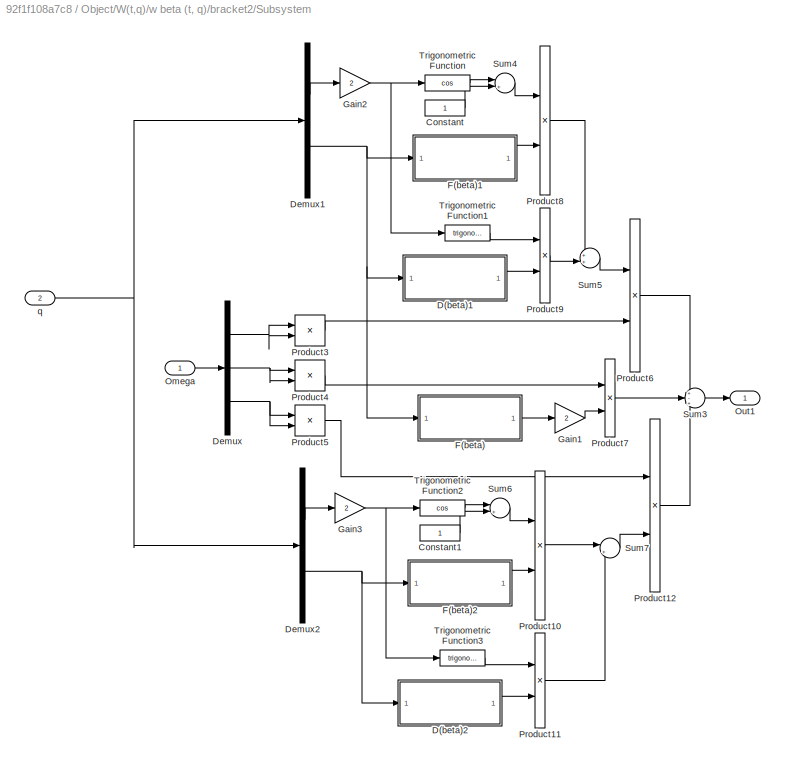
BLOCK [SubSystem] Object/W(t,q)/w beta (t, q)/bracket2/Subsystem
  Ports = [2, 1]
  RequestExecContextInheritance = off
BLOCK [Constant] Object/W(t,q)/w beta (t, q)/bracket2/Subsystem/Constant
BLOCK [Constant] Object/W(t,q)/w beta (t, q)/bracket2/Subsystem/Constant1
BLOCK [SubSystem] Object/W(t,q)/w beta (t, q)/bracket2/Subsystem/D(beta)1
  Ports = [1, 1]
  RequestExecContextInheritance = off
BLOCK [Outport] Object/W(t,q)/w beta (t, q)/bracket2/Subsystem/D(beta)1/D
  VectorParamsAs1DForOutWhenUnconnected = off
BLOCK [Gain] Object/W(t,q)/w beta (t, q)/bracket2/Subsystem/D(beta)1/Gain
  Gain = D2
BLOCK [Gain] Object/W(t,q)/w beta (t, q)/bracket2/Subsystem/D(beta)1/Gain2
  Gain = E2
BLOCK [Sum] Object/W(t,q)/w beta (t, q)/bracket2/Subsystem/D(beta)1/Sum
  Ports = [2, 1]
BLOCK [Trigonometry] Object/W(t,q)/w beta (t, q)/bracket2/Subsystem/D(beta)1/Trigonometric Function
  Operator = cos
  Ports = [1, 1]
BLOCK [Trigonometry] Object/W(t,q)/w beta (t, q)/bracket2/Subsystem/D(beta)1/Trigonometric Function2
  Ports = [1, 1]
BLOCK [Inport] Object/W(t,q)/w beta (t, q)/bracket2/Subsystem/D(beta)1/beta
BLOCK [SubSystem] Object/W(t,q)/w beta (t, q)/bracket2/Subsystem/D(beta)2
  Ports = [1, 1]
  RequestExecContextInheritance = off
BLOCK [Outport] Object/W(t,q)/w beta (t, q)/bracket2/Subsystem/D(beta)2/D
  VectorParamsAs1DForOutWhenUnconnected = off
BLOCK [Gain] Object/W(t,q)/w beta (t, q)/bracket2/Subsystem/D(beta)2/Gain
  Gain = D2
BLOCK [Gain] Object/W(t,q)/w beta (t, q)/bracket2/Subsystem/D(beta)2/Gain2
  Gain = E2
BLOCK [Sum] Object/W(t,q)/w beta (t, q)/bracket2/Subsystem/D(beta)2/Sum
  Ports = [2, 1]
BLOCK [Trigonometry] Object/W(t,q)/w beta (t, q)/bracket2/Subsystem/D(beta)2/Trigonometric Function
  Operator = cos
  Ports = [1, 1]
BLOCK [Trigonometry] Object/W(t,q)/w beta (t, q)/bracket2/Subsystem/D(beta)2/Trigonometric Function2
  Ports = [1, 1]
BLOCK [Inport] Object/W(t,q)/w beta (t, q)/bracket2/Subsystem/D(beta)2/beta
BLOCK [Demux] Object/W(t,q)/w beta (t, q)/bracket2/Subsystem/Demux
  Outputs = 3
  Ports = [1, 3]
BLOCK [Demux] Object/W(t,q)/w beta (t, q)/bracket2/Subsystem/Demux1
  Outputs = 2
  Ports = [1, 2]
BLOCK [Demux] Object/W(t,q)/w beta (t, q)/bracket2/Subsystem/Demux2
  Outputs = 2
  Ports = [1, 2]
BLOCK [SubSystem] Object/W(t,q)/w beta (t, q)/bracket2/Subsystem/F(beta)
  Ports = [1, 1]
  RequestExecContextInheritance = off
BLOCK [Outport] Object/W(t,q)/w beta (t, q)/bracket2/Subsystem/F(beta)/F
  VectorParamsAs1DForOutWhenUnconnected = off
BLOCK [Gain] Object/W(t,q)/w beta (t, q)/bracket2/Subsystem/F(beta)/Gain
  Gain = F2
BLOCK [Gain] Object/W(t,q)/w beta (t, q)/bracket2/Subsystem/F(beta)/Gain1
  Gain = 2
BLOCK [Gain] Object/W(t,q)/w beta (t, q)/bracket2/Subsystem/F(beta)/Gain2
  Gain = (A2-B2)/2
BLOCK [Sum] Object/W(t,q)/w beta (t, q)/bracket2/Subsystem/F(beta)/Sum
  Inputs = +-
  Ports = [2, 1]
BLOCK [Trigonometry] Object/W(t,q)/w beta (t, q)/bracket2/Subsystem/F(beta)/Trigonometric Function
  Operator = cos
  Ports = [1, 1]
BLOCK [Trigonometry] Object/W(t,q)/w beta (t, q)/bracket2/Subsystem/F(beta)/Trigonometric Function2
  Ports = [1, 1]
BLOCK [Inport] Object/W(t,q)/w beta (t, q)/bracket2/Subsystem/F(beta)/beta
BLOCK [SubSystem] Object/W(t,q)/w beta (t, q)/bracket2/Subsystem/F(beta)1
  Ports = [1, 1]
  RequestExecContextInheritance = off
BLOCK [Outport] Object/W(t,q)/w beta (t, q)/bracket2/Subsystem/F(beta)1/F
  VectorParamsAs1DForOutWhenUnconnected = off
BLOCK [Gain] Object/W(t,q)/w beta (t, q)/bracket2/Subsystem/F(beta)1/Gain
  Gain = F2
BLOCK [Gain] Object/W(t,q)/w beta (t, q)/bracket2/Subsystem/F(beta)1/Gain1
  Gain = 2
BLOCK [Gain] Object/W(t,q)/w beta (t, q)/bracket2/Subsystem/F(beta)1/Gain2
  Gain = (A2-B2)/2
BLOCK [Sum] Object/W(t,q)/w beta (t, q)/bracket2/Subsystem/F(beta)1/Sum
  Inputs = +-
  Ports = [2, 1]
BLOCK [Trigonometry] Object/W(t,q)/w beta (t, q)/bracket2/Subsystem/F(beta)1/Trigonometric Function
  Operator = cos
  Ports = [1, 1]
BLOCK [Trigonometry] Object/W(t,q)/w beta (t, q)/bracket2/Subsystem/F(beta)1/Trigonometric Function2
  Ports = [1, 1]
BLOCK [Inport] Object/W(t,q)/w beta (t, q)/bracket2/Subsystem/F(beta)1/beta
BLOCK [SubSystem] Object/W(t,q)/w beta (t, q)/bracket2/Subsystem/F(beta)2
  Ports = [1, 1]
  RequestExecContextInheritance = off
BLOCK [Outport] Object/W(t,q)/w beta (t, q)/bracket2/Subsystem/F(beta)2/F
  VectorParamsAs1DForOutWhenUnconnected = off
BLOCK [Gain] Object/W(t,q)/w beta (t, q)/bracket2/Subsystem/F(beta)2/Gain
  Gain = F2
BLOCK [Gain] Object/W(t,q)/w beta (t, q)/bracket2/Subsystem/F(beta)2/Gain1
  Gain = 2
BLOCK [Gain] Object/W(t,q)/w beta (t, q)/bracket2/Subsystem/F(beta)2/Gain2
  Gain = (A2-B2)/2
BLOCK [Sum] Object/W(t,q)/w beta (t, q)/bracket2/Subsystem/F(beta)2/Sum
  Inputs = +-
  Ports = [2, 1]
BLOCK [Trigonometry] Object/W(t,q)/w beta (t, q)/bracket2/Subsystem/F(beta)2/Trigonometric Function
  Operator = cos
  Ports = [1, 1]
BLOCK [Trigonometry] Object/W(t,q)/w beta (t, q)/bracket2/Subsystem/F(beta)2/Trigonometric Function2
  Ports = [1, 1]
BLOCK [Inport] Object/W(t,q)/w beta (t, q)/bracket2/Subsystem/F(beta)2/beta
BLOCK [Gain] Object/W(t,q)/w beta (t, q)/bracket2/Subsystem/Gain1
  Gain = 2
BLOCK [Gain] Object/W(t,q)/w beta (t, q)/bracket2/Subsystem/Gain2
  Gain = 2
BLOCK [Gain] Object/W(t,q)/w beta (t, q)/bracket2/Subsystem/Gain3
  Gain = 2
BLOCK [Inport] Object/W(t,q)/w beta (t, q)/bracket2/Subsystem/Omega
BLOCK [Outport] Object/W(t,q)/w beta (t, q)/bracket2/Subsystem/Out1
  VectorParamsAs1DForOutWhenUnconnected = off
BLOCK [Product] Object/W(t,q)/w beta (t, q)/bracket2/Subsystem/Product10
  Ports = [2, 1]
BLOCK [Product] Object/W(t,q)/w beta (t, q)/bracket2/Subsystem/Product11
  Ports = [2, 1]
BLOCK [Product] Object/W(t,q)/w beta (t, q)/bracket2/Subsystem/Product12
  Ports = [2, 1]
BLOCK [Product] Object/W(t,q)/w beta (t, q)/bracket2/Subsystem/Product3
  Ports = [2, 1]
BLOCK [Product] Object/W(t,q)/w beta (t, q)/bracket2/Subsystem/Product4
  Ports = [2, 1]
BLOCK [Product] Object/W(t,q)/w beta (t, q)/bracket2/Subsystem/Product5
  Ports = [2, 1]
BLOCK [Product] Object/W(t,q)/w beta (t, q)/bracket2/Subsystem/Product6
  Ports = [2, 1]
BLOCK [Product] Object/W(t,q)/w beta (t, q)/bracket2/Subsystem/Product7
  Ports = [2, 1]
BLOCK [Product] Object/W(t,q)/w beta (t, q)/bracket2/Subsystem/Product8
  Ports = [2, 1]
BLOCK [Product] Object/W(t,q)/w beta (t, q)/bracket2/Subsystem/Product9
  Ports = [2, 1]
BLOCK [Sum] Object/W(t,q)/w beta (t, q)/bracket2/Subsystem/Sum3
  Inputs = +-+
  Ports = [3, 1]
BLOCK [Sum] Object/W(t,q)/w beta (t, q)/bracket2/Subsystem/Sum4
  Inputs = |++
  Ports = [2, 1]
BLOCK [Sum] Object/W(t,q)/w beta (t, q)/bracket2/Subsystem/Sum5
  Inputs = ++|
  Ports = [2, 1]
BLOCK [Sum] Object/W(t,q)/w beta (t, q)/bracket2/Subsystem/Sum6
  Inputs = |+-
  Ports = [2, 1]
BLOCK [Sum] Object/W(t,q)/w beta (t, q)/bracket2/Subsystem/Sum7
  Inputs = |+-
  Ports = [2, 1]
BLOCK [Trigonometry] Object/W(t,q)/w beta (t, q)/bracket2/Subsystem/Trigonometric Function
  Operator = cos
  Ports = [1, 1]
BLOCK [Trigonometry] Object/W(t,q)/w beta (t, q)/bracket2/Subsystem/Trigonometric Function1
  Ports = [1, 1]
BLOCK [Trigonometry] Object/W(t,q)/w beta (t, q)/bracket2/Subsystem/Trigonometric Function2
  Operator = cos
  Ports = [1, 1]
BLOCK [Trigonometry] Object/W(t,q)/w beta (t, q)/bracket2/Subsystem/Trigonometric Function3
  Ports = [1, 1]
BLOCK [Inport] Object/W(t,q)/w beta (t, q)/bracket2/Subsystem/q
  Port = 2
BLOCK [SubSystem] Object/W(t,q)/w beta (t, q)/bracket2/Subsystem1
  Ports = [2, 1]
  RequestExecContextInheritance = off
BLOCK [SubSystem] Object/W(t,q)/w beta (t, q)/bracket2/Subsystem1/A2(beta)
  Ports = [1, 1]
  RequestExecContextInheritance = off
BLOCK [Outport] Object/W(t,q)/w beta (t, q)/bracket2/Subsystem1/A2(beta)/A2
  VectorParamsAs1DForOutWhenUnconnected = off
BLOCK [Gain] Object/W(t,q)/w beta (t, q)/bracket2/Subsystem1/A2(beta)/Gain
  Gain = A2-B2
BLOCK [Gain] Object/W(t,q)/w beta (t, q)/bracket2/Subsystem1/A2(beta)/Gain1
  Gain = 2
BLOCK [Gain] Object/W(t,q)/w beta (t, q)/bracket2/Subsystem1/A2(beta)/Gain2
  Gain = F2
BLOCK [Gain] Object/W(t,q)/w beta (t, q)/bracket2/Subsystem1/A2(beta)/Gain3
  Gain = 1/2
BLOCK [Sum] Object/W(t,q)/w beta (t, q)/bracket2/Subsystem1/A2(beta)/Sum
  Ports = [2, 1]
BLOCK [Trigonometry] Object/W(t,q)/w beta (t, q)/bracket2/Subsystem1/A2(beta)/Trigonometric Function
  Operator = cos
  Ports = [1, 1]
BLOCK [Trigonometry] Object/W(t,q)/w beta (t, q)/bracket2/Subsystem1/A2(beta)/Trigonometric Function2
  Ports = [1, 1]
BLOCK [Inport] Object/W(t,q)/w beta (t, q)/bracket2/Subsystem1/A2(beta)/beta
BLOCK [Demux] Object/W(t,q)/w beta (t, q)/bracket2/Subsystem1/Demux1
  Outputs = 2
  Ports = [1, 2]
BLOCK [SubSystem] Object/W(t,q)/w beta (t, q)/bracket2/Subsystem1/E(beta)
  Ports = [1, 1]
  RequestExecContextInheritance = off
BLOCK [Outport] Object/W(t,q)/w beta (t, q)/bracket2/Subsystem1/E(beta)/E
  VectorParamsAs1DForOutWhenUnconnected = off
BLOCK [Gain] Object/W(t,q)/w beta (t, q)/bracket2/Subsystem1/E(beta)/Gain
  Gain = E2
BLOCK [Gain] Object/W(t,q)/w beta (t, q)/bracket2/Subsystem1/E(beta)/Gain2
  Gain = D2
BLOCK [Sum] Object/W(t,q)/w beta (t, q)/bracket2/Subsystem1/E(beta)/Sum
  Inputs = +-
  Ports = [2, 1]
BLOCK [Trigonometry] Object/W(t,q)/w beta (t, q)/bracket2/Subsystem1/E(beta)/Trigonometric Function
  Operator = cos
  Ports = [1, 1]
BLOCK [Trigonometry] Object/W(t,q)/w beta (t, q)/bracket2/Subsystem1/E(beta)/Trigonometric Function2
  Ports = [1, 1]
BLOCK [Inport] Object/W(t,q)/w beta (t, q)/bracket2/Subsystem1/E(beta)/beta
BLOCK [Gain] Object/W(t,q)/w beta (t, q)/bracket2/Subsystem1/Gain1
  Gain = 2
BLOCK [Outport] Object/W(t,q)/w beta (t, q)/bracket2/Subsystem1/Out1
  VectorParamsAs1DForOutWhenUnconnected = off
BLOCK [Product] Object/W(t,q)/w beta (t, q)/bracket2/Subsystem1/Product
  Ports = [2, 1]
BLOCK [Product] Object/W(t,q)/w beta (t, q)/bracket2/Subsystem1/Product1
  Ports = [2, 1]
BLOCK [Product] Object/W(t,q)/w beta (t, q)/bracket2/Subsystem1/Product3
  Ports = [2, 1]
BLOCK [Sum] Object/W(t,q)/w beta (t, q)/bracket2/Subsystem1/Sum
  Inputs = +-
  Ports = [2, 1]
BLOCK [Trigonometry] Object/W(t,q)/w beta (t, q)/bracket2/Subsystem1/Trigonometric Function
  Operator = cos
  Ports = [1, 1]
BLOCK [Trigonometry] Object/W(t,q)/w beta (t, q)/bracket2/Subsystem1/Trigonometric Function1
  Ports = [1, 1]
BLOCK [Inport] Object/W(t,q)/w beta (t, q)/bracket2/Subsystem1/omega x omega y
  Port = 2
BLOCK [Inport] Object/W(t,q)/w beta (t, q)/bracket2/Subsystem1/q
BLOCK [SubSystem] Object/W(t,q)/w beta (t, q)/bracket2/Subsystem2
  Ports = [2, 1]
  RequestExecContextInheritance = off
BLOCK [SubSystem] Object/W(t,q)/w beta (t, q)/bracket2/Subsystem2/D(beta)
  Ports = [1, 1]
  RequestExecContextInheritance = off
BLOCK [Outport] Object/W(t,q)/w beta (t, q)/bracket2/Subsystem2/D(beta)/D
  VectorParamsAs1DForOutWhenUnconnected = off
BLOCK [Gain] Object/W(t,q)/w beta (t, q)/bracket2/Subsystem2/D(beta)/Gain
  Gain = D2
BLOCK [Gain] Object/W(t,q)/w beta (t, q)/bracket2/Subsystem2/D(beta)/Gain2
  Gain = E2
BLOCK [Sum] Object/W(t,q)/w beta (t, q)/bracket2/Subsystem2/D(beta)/Sum
  Ports = [2, 1]
BLOCK [Trigonometry] Object/W(t,q)/w beta (t, q)/bracket2/Subsystem2/D(beta)/Trigonometric Function
  Operator = cos
  Ports = [1, 1]
BLOCK [Trigonometry] Object/W(t,q)/w beta (t, q)/bracket2/Subsystem2/D(beta)/Trigonometric Function2
  Ports = [1, 1]
BLOCK [Inport] Object/W(t,q)/w beta (t, q)/bracket2/Subsystem2/D(beta)/beta
BLOCK [Demux] Object/W(t,q)/w beta (t, q)/bracket2/Subsystem2/Demux1
  Outputs = 2
  Ports = [1, 2]
BLOCK [SubSystem] Object/W(t,q)/w beta (t, q)/bracket2/Subsystem2/F(beta)
  Ports = [1, 1]
  RequestExecContextInheritance = off
BLOCK [Outport] Object/W(t,q)/w beta (t, q)/bracket2/Subsystem2/F(beta)/F
  VectorParamsAs1DForOutWhenUnconnected = off
BLOCK [Gain] Object/W(t,q)/w beta (t, q)/bracket2/Subsystem2/F(beta)/Gain
  Gain = F2
BLOCK [Gain] Object/W(t,q)/w beta (t, q)/bracket2/Subsystem2/F(beta)/Gain1
  Gain = 2
BLOCK [Gain] Object/W(t,q)/w beta (t, q)/bracket2/Subsystem2/F(beta)/Gain2
  Gain = (A2-B2)/2
BLOCK [Sum] Object/W(t,q)/w beta (t, q)/bracket2/Subsystem2/F(beta)/Sum
  Inputs = +-
  Ports = [2, 1]
BLOCK [Trigonometry] Object/W(t,q)/w beta (t, q)/bracket2/Subsystem2/F(beta)/Trigonometric Function
  Operator = cos
  Ports = [1, 1]
BLOCK [Trigonometry] Object/W(t,q)/w beta (t, q)/bracket2/Subsystem2/F(beta)/Trigonometric Function2
  Ports = [1, 1]
BLOCK [Inport] Object/W(t,q)/w beta (t, q)/bracket2/Subsystem2/F(beta)/beta
BLOCK [Gain] Object/W(t,q)/w beta (t, q)/bracket2/Subsystem2/Gain
  Gain = 2
BLOCK [Outport] Object/W(t,q)/w beta (t, q)/bracket2/Subsystem2/Out1
  VectorParamsAs1DForOutWhenUnconnected = off
BLOCK [Product] Object/W(t,q)/w beta (t, q)/bracket2/Subsystem2/Product
  Ports = [2, 1]
BLOCK [Product] Object/W(t,q)/w beta (t, q)/bracket2/Subsystem2/Product1
  Ports = [2, 1]
BLOCK [Product] Object/W(t,q)/w beta (t, q)/bracket2/Subsystem2/Product3
  Ports = [2, 1]
BLOCK [Sum] Object/W(t,q)/w beta (t, q)/bracket2/Subsystem2/Sum
  Inputs = +-
  Ports = [2, 1]
BLOCK [Trigonometry] Object/W(t,q)/w beta (t, q)/bracket2/Subsystem2/Trigonometric Function
  Ports = [1, 1]
BLOCK [Trigonometry] Object/W(t,q)/w beta (t, q)/bracket2/Subsystem2/Trigonometric Function1
  Operator = cos
  Ports = [1, 1]
BLOCK [Inport] Object/W(t,q)/w beta (t, q)/bracket2/Subsystem2/omega x omega z
  Port = 2
BLOCK [Inport] Object/W(t,q)/w beta (t, q)/bracket2/Subsystem2/q
BLOCK [SubSystem] Object/W(t,q)/w beta (t, q)/bracket2/Subsystem3
  Ports = [2, 1]
  RequestExecContextInheritance = off
BLOCK [SubSystem] Object/W(t,q)/w beta (t, q)/bracket2/Subsystem3/A2(beta)
  Ports = [1, 1]
  RequestExecContextInheritance = off
BLOCK [Outport] Object/W(t,q)/w beta (t, q)/bracket2/Subsystem3/A2(beta)/A2
  VectorParamsAs1DForOutWhenUnconnected = off
BLOCK [Gain] Object/W(t,q)/w beta (t, q)/bracket2/Subsystem3/A2(beta)/Gain
  Gain = A2-B2
BLOCK [Gain] Object/W(t,q)/w beta (t, q)/bracket2/Subsystem3/A2(beta)/Gain1
  Gain = 2
BLOCK [Gain] Object/W(t,q)/w beta (t, q)/bracket2/Subsystem3/A2(beta)/Gain2
  Gain = F2
BLOCK [Gain] Object/W(t,q)/w beta (t, q)/bracket2/Subsystem3/A2(beta)/Gain3
  Gain = 1/2
BLOCK [Sum] Object/W(t,q)/w beta (t, q)/bracket2/Subsystem3/A2(beta)/Sum
  Ports = [2, 1]
BLOCK [Trigonometry] Object/W(t,q)/w beta (t, q)/bracket2/Subsystem3/A2(beta)/Trigonometric Function
  Operator = cos
  Ports = [1, 1]
BLOCK [Trigonometry] Object/W(t,q)/w beta (t, q)/bracket2/Subsystem3/A2(beta)/Trigonometric Function2
  Ports = [1, 1]
BLOCK [Inport] Object/W(t,q)/w beta (t, q)/bracket2/Subsystem3/A2(beta)/beta
BLOCK [Demux] Object/W(t,q)/w beta (t, q)/bracket2/Subsystem3/Demux1
  Outputs = 2
  Ports = [1, 2]
BLOCK [SubSystem] Object/W(t,q)/w beta (t, q)/bracket2/Subsystem3/E(beta)
  Ports = [1, 1]
  RequestExecContextInheritance = off
BLOCK [Outport] Object/W(t,q)/w beta (t, q)/bracket2/Subsystem3/E(beta)/E
  VectorParamsAs1DForOutWhenUnconnected = off
BLOCK [Gain] Object/W(t,q)/w beta (t, q)/bracket2/Subsystem3/E(beta)/Gain
  Gain = E2
BLOCK [Gain] Object/W(t,q)/w beta (t, q)/bracket2/Subsystem3/E(beta)/Gain2
  Gain = D2
BLOCK [Sum] Object/W(t,q)/w beta (t, q)/bracket2/Subsystem3/E(beta)/Sum
  Inputs = +-
  Ports = [2, 1]
BLOCK [Trigonometry] Object/W(t,q)/w beta (t, q)/bracket2/Subsystem3/E(beta)/Trigonometric Function
  Operator = cos
  Ports = [1, 1]
BLOCK [Trigonometry] Object/W(t,q)/w beta (t, q)/bracket2/Subsystem3/E(beta)/Trigonometric Function2
  Ports = [1, 1]
BLOCK [Inport] Object/W(t,q)/w beta (t, q)/bracket2/Subsystem3/E(beta)/beta
BLOCK [Gain] Object/W(t,q)/w beta (t, q)/bracket2/Subsystem3/Gain1
  Gain = 2
BLOCK [Outport] Object/W(t,q)/w beta (t, q)/bracket2/Subsystem3/Out1
  VectorParamsAs1DForOutWhenUnconnected = off
BLOCK [Product] Object/W(t,q)/w beta (t, q)/bracket2/Subsystem3/Product
  Ports = [2, 1]
BLOCK [Product] Object/W(t,q)/w beta (t, q)/bracket2/Subsystem3/Product1
  Ports = [2, 1]
BLOCK [Product] Object/W(t,q)/w beta (t, q)/bracket2/Subsystem3/Product3
  Ports = [2, 1]
BLOCK [Sum] Object/W(t,q)/w beta (t, q)/bracket2/Subsystem3/Sum
  Ports = [2, 1]
BLOCK [Trigonometry] Object/W(t,q)/w beta (t, q)/bracket2/Subsystem3/Trigonometric Function
  Operator = cos
  Ports = [1, 1]
BLOCK [Trigonometry] Object/W(t,q)/w beta (t, q)/bracket2/Subsystem3/Trigonometric Function1
  Ports = [1, 1]
BLOCK [Inport] Object/W(t,q)/w beta (t, q)/bracket2/Subsystem3/omega y omega z
  Port = 2
BLOCK [Inport] Object/W(t,q)/w beta (t, q)/bracket2/Subsystem3/q
BLOCK [Sum] Object/W(t,q)/w beta (t, q)/bracket2/Sum1
  Inputs = ++|
  Ports = [2, 1]
BLOCK [Sum] Object/W(t,q)/w beta (t, q)/bracket2/Sum8
  Inputs = +--
  Ports = [3, 1]
BLOCK [Inport] Object/W(t,q)/w beta (t, q)/bracket2/q
  Port = 2
BLOCK [Inport] Object/W(t,q)/w beta (t, q)/q
  Port = 3
BLOCK [Outport] Object/W(t,q)/w beta (t, q)/w alpha
  VectorParamsAs1DForOutWhenUnconnected = off
BLOCK [Inport] Object/q 
  Port = 3
BLOCK [Inport] Object/q dot
  Port = 2
BLOCK [Inport] Object/q dot dot
BLOCK [Quantizer] Quantizer
  QuantizationInterval = 0.0003
BLOCK [SubSystem] Regulator
  Ports = [2, 2]
  RequestExecContextInheritance = off
BLOCK [Demux] Regulator/Demux
  Outputs = 2
  Ports = [1, 2]
BLOCK [Demux] Regulator/Demux3
  Outputs = 2
  Ports = [1, 2]
BLOCK [Gain] Regulator/Gain2
  Gain = 1100
BLOCK [Gain] Regulator/Gain5
  Gain = 450
BLOCK [Saturate] Regulator/Saturation
  LowerLimit = -27
  UpperLimit = 27
  ZeroCross = off
BLOCK [Saturate] Regulator/Saturation1
  LowerLimit = -27
  UpperLimit = 27
  ZeroCross = off
BLOCK [Sum] Regulator/Sum2
  Inputs = |+-
  Ports = [2, 1]
BLOCK [Sum] Regulator/Sum3
  Inputs = |+-
  Ports = [2, 1]
BLOCK [TransferFcn] Regulator/Transfer Fcn
  Denominator = [0.0005 1]
  Numerator = [0.05 1]
BLOCK [TransferFcn] Regulator/Transfer Fcn1
  Denominator = [0.0005 1]
  Numerator = [0.05 1]
BLOCK [Outport] Regulator/U 
  VectorParamsAs1DForOutWhenUnconnected = off
BLOCK [Concatenate] Regulator/Vector Concatenate1
  Ports = [2, 1]
BLOCK [Concatenate] Regulator/Vector Concatenate2
  Ports = [2, 1]
BLOCK [Inport] Regulator/q
  Port = 2
BLOCK [Outport] Regulator/q delta
  Port = 2
  VectorParamsAs1DForOutWhenUnconnected = off
BLOCK [Inport] Regulator/q target
BLOCK [Scope] Scope
  Floating = off
  NumInputPorts = 1
  Ports = [1]
  ScopeSpecificationString = Simulink.scopes.TimeScopeBlockCfg('CurrentConfiguration', extmgr.ConfigurationSet(extmgr.Configuration('Core','General UI',true),extmgr.Configuration('Core','Source UI',true),extmgr.Configuration('Sources','WiredSimulink',true),extmgr.Configuration('Visuals','Time Domain',true,'SerializedDisplays',{struct('MinYLimReal','-1.32528','MaxYLimReal','11.92584','YLabelReal','','MinYLimMag','0.00000','Max...<+1371ch>
BLOCK [Scope] Scope1
  Floating = off
  NumInputPorts = 1
  Ports = [1]
  ScopeSpecificationString = Simulink.scopes.TimeScopeBlockCfg('CurrentConfiguration', extmgr.ConfigurationSet(extmgr.Configuration('Core','General UI',true),extmgr.Configuration('Core','Source UI',true),extmgr.Configuration('Sources','WiredSimulink',true,'DataLoggingVariableName','ScopeData2'),extmgr.Configuration('Visuals','Time Domain',true,'SerializedDisplays',{struct('MinYLimReal','-0.48823','MaxYLimReal','4.39405','YLab...<+1444ch>
BLOCK [Scope] Scope2
  Floating = off
  NumInputPorts = 1
  Ports = [1]
  ScopeSpecificationString = Simulink.scopes.TimeScopeBlockCfg('CurrentConfiguration', extmgr.ConfigurationSet(extmgr.Configuration('Core','General UI',true,'FigureColor',[1 1 1]),extmgr.Configuration('Core','Source UI',true),extmgr.Configuration('Sources','WiredSimulink',true,'DataLoggingVariableName','ScopeData1'),extmgr.Configuration('Visuals','Time Domain',true,'SerializedDisplays',{struct('MinYLimReal','-33.75','MaxYLimR...<+1676ch>
BLOCK [Scope] Scope3
  Floating = off
  NumInputPorts = 1
  Ports = [1]
  ScopeSpecificationString = Simulink.scopes.TimeScopeBlockCfg('CurrentConfiguration', extmgr.ConfigurationSet(extmgr.Configuration('Core','General UI',true,'FigureColor',[1 1 1]),extmgr.Configuration('Core','Source UI',true),extmgr.Configuration('Sources','WiredSimulink',true,'DataLoggingVariableName','ScopeData4'),extmgr.Configuration('Visuals','Time Domain',true,'SerializedDisplays',{struct('MinYLimReal','-49.60134','MaxYL...<+1857ch>
BLOCK [Signum] Sign3
  NameLocation = top
  ZeroCross = off
BLOCK [Signum] Sign4
  NameLocation = top
  ZeroCross = off
BLOCK [Sum] Sum5
  Inputs = |++
  NameLocation = top
  Ports = [2, 1]
BLOCK [Sum] Sum6
  Inputs = |++
  NameLocation = top
  Ports = [2, 1]
BLOCK [Concatenate] Vector Concatenate1
  NameLocation = top
  Ports = [2, 1]
BLOCK [Concatenate] Vector Concatenate2
  NumInputs = 3
  Ports = [3, 1]
BLOCK [Concatenate] Vector Concatenate3
  Ports = [2, 1]
BLOCK [Concatenate] Vector Concatenate4
  NumInputs = 3
  Ports = [3, 1]
BLOCK [Concatenate] Vector Concatenate5
  NameLocation = top
  Ports = [2, 1]
BLOCK [ZeroOrderHold] Zero-Order Hold
  SampleTime = Tpwm
BLOCK [SubSystem] Носитель
  Ports = [0, 1]
  RequestExecContextInheritance = off
BLOCK [Clock] Носитель/Clock
BLOCK [Gain] Носитель/Gain
  Gain = AMP1
BLOCK [Gain] Носитель/Gain1
  Gain = AMP2
BLOCK [Gain] Носитель/Gain2
  Gain = omega1
BLOCK [Gain] Носитель/Gain3
  Gain = omega2
BLOCK [Outport] Носитель/Omega
  VectorParamsAs1DForOutWhenUnconnected = off
BLOCK [Reference] Носитель/Ramp  REF=simulink/Sources/Ramp
  Ports = [0, 1]
  SourceBlock = simulink/Sources/Ramp
  SourceProductBaseCode = SL
  SourceType = Ramp
BLOCK [Sum] Носитель/Sum1
  Inputs = +++
  Ports = [3, 1]
BLOCK [Trigonometry] Носитель/Trigonometric Function
  Ports = [1, 1]
BLOCK [Trigonometry] Носитель/Trigonometric Function1
  Ports = [1, 1]
BLOCK [SubSystem] Программное устройство
  Ports = [3, 3]
  RequestExecContextInheritance = off
BLOCK [Abs] Программное устройство/Abs
  SaturateOnIntegerOverflow = off
  ZeroCross = off
BLOCK [Constant] Программное устройство/Constant1
  Value = 2
BLOCK [Constant] Программное устройство/Constant2
  NameLocation = right
  Value = 1/2
BLOCK [Constant] Программное устройство/Constant3
  Value = 0.01
BLOCK [DataTypeConversion] Программное устройство/Data Type Conversion1
  RndMeth = Floor
  SaturateOnIntegerOverflow = off
BLOCK [DataTypeConversion] Программное устройство/Data Type Conversion2
  RndMeth = Floor
  SaturateOnIntegerOverflow = off
BLOCK [Product] Программное устройство/Divide
  Inputs = */
  Ports = [2, 1]
BLOCK [Gain] Программное устройство/Gain
  Gain = 1/2
  NameLocation = left
BLOCK [Gain] Программное устройство/Gain1
  Gain = 2
BLOCK [Gain] Программное устройство/Gain3
  Gain = 4
BLOCK [Integrator] Программное устройство/Integrator
  Ports = [1, 1]
BLOCK [Integrator] Программное устройство/Integrator1
  Ports = [1, 1]
BLOCK [Math] Программное устройство/Math Function
  Operator = pow
  Ports = [2, 1]
  SignedPower = on
BLOCK [Product] Программное устройство/Product
  Inputs = 3
  Ports = [3, 1]
BLOCK [Product] Программное устройство/Product1
  Ports = [2, 1]
BLOCK [RelationalOperator] Программное устройство/Relational Operator
  InputSameDT = off
  Operator = <=
  OutDataTypeStr = boolean
  Ports = [2, 1]
  RndMeth = Simplest
  ZeroCross = off
BLOCK [RelationalOperator] Программное устройство/Relational Operator1
  InputSameDT = off
  OutDataTypeStr = boolean
  Ports = [2, 1]
  RndMeth = Simplest
  ZeroCross = off
BLOCK [Sum] Программное устройство/Sum
  Inputs = |+-
  Ports = [2, 1]
BLOCK [Sum] Программное устройство/Sum1
  Inputs = |+-
  NameLocation = top
  Ports = [2, 1]
BLOCK [Outport] Программное устройство/acc
  Port = 3
  VectorParamsAs1DForOutWhenUnconnected = off
BLOCK [Outport] Программное устройство/angle
  VectorParamsAs1DForOutWhenUnconnected = off
BLOCK [Inport] Программное устройство/dt
  Port = 3
BLOCK [Inport] Программное устройство/dx 
  Port = 2
BLOCK [Inport] Программное устройство/target
BLOCK [Outport] Программное устройство/velocity
  Port = 2
  VectorParamsAs1DForOutWhenUnconnected = off
BLOCK [SubSystem] Программное устройство1
  Ports = [3, 3]
  RequestExecContextInheritance = off
BLOCK [Abs] Программное устройство1/Abs
  SaturateOnIntegerOverflow = off
  ZeroCross = off
BLOCK [Constant] Программное устройство1/Constant1
  Value = 2
BLOCK [Constant] Программное устройство1/Constant2
  NameLocation = right
  Value = 1/2
BLOCK [Constant] Программное устройство1/Constant3
  Value = 0.01
BLOCK [DataTypeConversion] Программное устройство1/Data Type Conversion1
  RndMeth = Floor
  SaturateOnIntegerOverflow = off
BLOCK [DataTypeConversion] Программное устройство1/Data Type Conversion2
  RndMeth = Floor
  SaturateOnIntegerOverflow = off
BLOCK [Product] Программное устройство1/Divide
  Inputs = */
  Ports = [2, 1]
BLOCK [Gain] Программное устройство1/Gain
  Gain = 1/2
  NameLocation = left
BLOCK [Gain] Программное устройство1/Gain1
  Gain = 2
BLOCK [Gain] Программное устройство1/Gain3
  Gain = 4
BLOCK [Integrator] Программное устройство1/Integrator
  Ports = [1, 1]
BLOCK [Integrator] Программное устройство1/Integrator1
  Ports = [1, 1]
BLOCK [Math] Программное устройство1/Math Function
  Operator = pow
  Ports = [2, 1]
  SignedPower = on
BLOCK [Product] Программное устройство1/Product
  Inputs = 3
  Ports = [3, 1]
BLOCK [Product] Программное устройство1/Product1
  Ports = [2, 1]
BLOCK [RelationalOperator] Программное устройство1/Relational Operator
  InputSameDT = off
  Operator = <=
  OutDataTypeStr = boolean
  Ports = [2, 1]
  RndMeth = Simplest
  ZeroCross = off
BLOCK [RelationalOperator] Программное устройство1/Relational Operator1
  InputSameDT = off
  OutDataTypeStr = boolean
  Ports = [2, 1]
  RndMeth = Simplest
  ZeroCross = off
BLOCK [Sum] Программное устройство1/Sum
  Inputs = |+-
  Ports = [2, 1]
BLOCK [Sum] Программное устройство1/Sum1
  Inputs = |+-
  NameLocation = top
  Ports = [2, 1]
BLOCK [Outport] Программное устройство1/acc
  Port = 3
  VectorParamsAs1DForOutWhenUnconnected = off
BLOCK [Outport] Программное устройство1/angle
  VectorParamsAs1DForOutWhenUnconnected = off
BLOCK [Inport] Программное устройство1/dt
  Port = 3
BLOCK [Inport] Программное устройство1/dx 
  Port = 2
BLOCK [Inport] Программное устройство1/target
BLOCK [Outport] Программное устройство1/velocity
  Port = 2
  VectorParamsAs1DForOutWhenUnconnected = off
LINE Abs1:1 -> Divide1:2
LINE Abs:1 -> Divide:2
LINE Constant18:1 -> Gain6:1
LINE Constant1:1 -> Программное устройство:2
LINE Constant2:1 -> Программное устройство:3
LINE Constant5:1 -> Программное устройство1:2
LINE Constant6:1 -> Gain2:1
LINE Constant7:1 -> Программное устройство1:3
NET Demux1:1 -> Abs:1, Divide:1
NET Demux1:2 -> Abs1:1, Divide1:1
LINE Demux2:1 -> Sum5:2
LINE Demux2:2 -> Sum6:2
LINE Derivative1:1 -> Object:4
LINE Derivative:1 -> Object:1
LINE Divide1:1 -> Gain4:1
LINE Divide:1 -> Gain3:1
LINE Drive/Demux1:1 -> Drive/Sum:2
LINE Drive/Demux1:2 -> Drive/Sum1:1
LINE Drive/Demux:1 -> Drive/Transfer Fcn:1
LINE Drive/Demux:2 -> Drive/Transfer Fcn3:1
LINE Drive/M:1 -> Drive/Demux1:1
LINE Drive/Sum1:1 -> Drive/Transfer Fcn5:1
LINE Drive/Sum:1 -> Drive/Transfer Fcn2:1
LINE Drive/Transfer Fcn1:1 -> Drive/Vector Concatenate6:1
LINE Drive/Transfer Fcn2:1 -> Drive/Transfer Fcn1:1
LINE Drive/Transfer Fcn3:1 -> Drive/Sum1:2
LINE Drive/Transfer Fcn4:1 -> Drive/Vector Concatenate6:2
LINE Drive/Transfer Fcn5:1 -> Drive/Transfer Fcn4:1
LINE Drive/Transfer Fcn:1 -> Drive/Sum:1
LINE Drive/U:1 -> Drive/Demux:1
NET Drive/Vector Concatenate6:1 -> Drive/Scope:1, Drive/q dot:1
NET Drive:1 -> Derivative:1, Integrator1:1, Object:2, Scope:1
LINE Gain1:1 -> OUTPUT:1
LINE Gain2:1 -> Программное устройство1:1
LINE Gain3:1 -> Sum5:1
LINE Gain4:1 -> Sum6:1
LINE Gain5:1 -> Scope3:1
LINE Gain6:1 -> Программное устройство:1
NET Integrator1:1 -> Object:3, Quantizer:1, Scope1:1
LINE Object/A(q)/B(beta)/Constant3:1 -> Object/A(q)/B(beta)/Math Function:2
LINE Object/A(q)/B(beta)/Constant4:1 -> Object/A(q)/B(beta)/Math Function1:2
LINE Object/A(q)/B(beta)/Gain1:1 -> Object/A(q)/B(beta)/Sum:2
LINE Object/A(q)/B(beta)/Gain2:1 -> Object/A(q)/B(beta)/Sum:3
LINE Object/A(q)/B(beta)/Gain3:1 -> Object/A(q)/B(beta)/Trigonometric Function2:1
LINE Object/A(q)/B(beta)/Gain:1 -> Object/A(q)/B(beta)/Sum:1
LINE Object/A(q)/B(beta)/Math Function1:1 -> Object/A(q)/B(beta)/Gain1:1
LINE Object/A(q)/B(beta)/Math Function:1 -> Object/A(q)/B(beta)/Gain:1
LINE Object/A(q)/B(beta)/Sum:1 -> Object/A(q)/B(beta)/B:1
LINE Object/A(q)/B(beta)/Trigonometric Function1:1 -> Object/A(q)/B(beta)/Math Function1:1
LINE Object/A(q)/B(beta)/Trigonometric Function2:1 -> Object/A(q)/B(beta)/Gain2:1
LINE Object/A(q)/B(beta)/Trigonometric Function:1 -> Object/A(q)/B(beta)/Math Function:1
NET Object/A(q)/B(beta)/beta:1 -> Object/A(q)/B(beta)/Gain3:1, Object/A(q)/B(beta)/Trigonometric Function1:1, Object/A(q)/B(beta)/Trigonometric Function:1
LINE Object/A(q)/B(beta):1 -> Object/A(q)/Sum:1
LINE Object/A(q)/Constant10:1 -> Object/A(q)/Vector Concatenate2:2
LINE Object/A(q)/Constant7:1 -> Object/A(q)/Sum:2
LINE Object/A(q)/D(beta)/Gain2:1 -> Object/A(q)/D(beta)/Sum:2
LINE Object/A(q)/D(beta)/Gain:1 -> Object/A(q)/D(beta)/Sum:1
LINE Object/A(q)/D(beta)/Sum:1 -> Object/A(q)/D(beta)/D:1
LINE Object/A(q)/D(beta)/Trigonometric Function2:1 -> Object/A(q)/D(beta)/Gain2:1
LINE Object/A(q)/D(beta)/Trigonometric Function:1 -> Object/A(q)/D(beta)/Gain:1
NET Object/A(q)/D(beta)/beta:1 -> Object/A(q)/D(beta)/Trigonometric Function2:1, Object/A(q)/D(beta)/Trigonometric Function:1
LINE Object/A(q)/D(beta):1 -> Object/A(q)/Gain:1
NET Object/A(q)/Demux:2 -> Object/A(q)/B(beta):1, Object/A(q)/D(beta):1
NET Object/A(q)/Gain:1 -> Object/A(q)/Vector Concatenate1:2, Object/A(q)/Vector Concatenate2:1
LINE Object/A(q)/Sum:1 -> Object/A(q)/Vector Concatenate1:1
LINE Object/A(q)/Vector Concatenate1:1 -> Object/A(q)/Vector Concatenate6:1
LINE Object/A(q)/Vector Concatenate2:1 -> Object/A(q)/Vector Concatenate6:2
NET Object/A(q)/Vector Concatenate6:1 -> Object/A(q)/A:1, Object/A(q)/Display5:1
LINE Object/A(q)/q:1 -> Object/A(q)/Demux:1
LINE Object/A(q):1 -> Object/Matrix Multiply1:1
NET Object/B(t,q)/Constant:1 -> Object/B(t,q)/Vector Concatenate3:1, Object/B(t,q)/Vector Concatenate4:2
LINE Object/B(t,q)/Gain:1 -> Object/B(t,q)/Vector Concatenate4:1
LINE Object/B(t,q)/Vector Concatenate3:1 -> Object/B(t,q)/Vector Concatenate5:1
LINE Object/B(t,q)/Vector Concatenate4:1 -> Object/B(t,q)/Vector Concatenate5:2
LINE Object/B(t,q)/Vector Concatenate5:1 -> Object/B(t,q)/B:1
NET Object/B(t,q)/b(t,alpha,beta)/A2(beta)/Gain1:1 -> Object/B(t,q)/b(t,alpha,beta)/A2(beta)/Trigonometric Function2:1, Object/B(t,q)/b(t,alpha,beta)/A2(beta)/Trigonometric Function:1
LINE Object/B(t,q)/b(t,alpha,beta)/A2(beta)/Gain2:1 -> Object/B(t,q)/b(t,alpha,beta)/A2(beta)/Sum:2
LINE Object/B(t,q)/b(t,alpha,beta)/A2(beta)/Gain:1 -> Object/B(t,q)/b(t,alpha,beta)/A2(beta)/Sum:1
LINE Object/B(t,q)/b(t,alpha,beta)/A2(beta)/Sum:1 -> Object/B(t,q)/b(t,alpha,beta)/A2(beta)/A2:1
LINE Object/B(t,q)/b(t,alpha,beta)/A2(beta)/Trigonometric Function2:1 -> Object/B(t,q)/b(t,alpha,beta)/A2(beta)/Gain2:1
LINE Object/B(t,q)/b(t,alpha,beta)/A2(beta)/Trigonometric Function:1 -> Object/B(t,q)/b(t,alpha,beta)/A2(beta)/Gain:1
LINE Object/B(t,q)/b(t,alpha,beta)/A2(beta)/beta:1 -> Object/B(t,q)/b(t,alpha,beta)/A2(beta)/Gain1:1
LINE Object/B(t,q)/b(t,alpha,beta)/A2(beta):1 -> Object/B(t,q)/b(t,alpha,beta)/Gain:1
LINE Object/B(t,q)/b(t,alpha,beta)/Constant:1 -> Object/B(t,q)/b(t,alpha,beta)/Sum:2
LINE Object/B(t,q)/b(t,alpha,beta)/Demux1:1 -> Object/B(t,q)/b(t,alpha,beta)/Product2:1
LINE Object/B(t,q)/b(t,alpha,beta)/Demux1:2 -> Object/B(t,q)/b(t,alpha,beta)/Product4:1
LINE Object/B(t,q)/b(t,alpha,beta)/Demux1:3 -> Object/B(t,q)/b(t,alpha,beta)/Product3:1
NET Object/B(t,q)/b(t,alpha,beta)/Demux:1 -> Object/B(t,q)/b(t,alpha,beta)/Trigonometric Function1:1, Object/B(t,q)/b(t,alpha,beta)/Trigonometric Function2:1, Object/B(t,q)/b(t,alpha,beta)/Trigonometric Function3:1, Object/B(t,q)/b(t,alpha,beta)/Trigonometric Function:1
NET Object/B(t,q)/b(t,alpha,beta)/Demux:2 -> Object/B(t,q)/b(t,alpha,beta)/A2(beta):1, Object/B(t,q)/b(t,alpha,beta)/E(beta):1, Object/B(t,q)/b(t,alpha,beta)/F(beta):1
LINE Object/B(t,q)/b(t,alpha,beta)/E(beta)/Gain2:1 -> Object/B(t,q)/b(t,alpha,beta)/E(beta)/Sum:2
LINE Object/B(t,q)/b(t,alpha,beta)/E(beta)/Gain:1 -> Object/B(t,q)/b(t,alpha,beta)/E(beta)/Sum:1
LINE Object/B(t,q)/b(t,alpha,beta)/E(beta)/Sum:1 -> Object/B(t,q)/b(t,alpha,beta)/E(beta)/E:1
LINE Object/B(t,q)/b(t,alpha,beta)/E(beta)/Trigonometric Function2:1 -> Object/B(t,q)/b(t,alpha,beta)/E(beta)/Gain2:1
LINE Object/B(t,q)/b(t,alpha,beta)/E(beta)/Trigonometric Function:1 -> Object/B(t,q)/b(t,alpha,beta)/E(beta)/Gain:1
NET Object/B(t,q)/b(t,alpha,beta)/E(beta)/beta:1 -> Object/B(t,q)/b(t,alpha,beta)/E(beta)/Trigonometric Function2:1, Object/B(t,q)/b(t,alpha,beta)/E(beta)/Trigonometric Function:1
LINE Object/B(t,q)/b(t,alpha,beta)/E(beta):1 -> Object/B(t,q)/b(t,alpha,beta)/Gain1:1
LINE Object/B(t,q)/b(t,alpha,beta)/F(beta)/Gain1:1 -> Object/B(t,q)/b(t,alpha,beta)/F(beta)/Trigonometric Function2:1
LINE Object/B(t,q)/b(t,alpha,beta)/F(beta)/Gain2:1 -> Object/B(t,q)/b(t,alpha,beta)/F(beta)/Sum:2
LINE Object/B(t,q)/b(t,alpha,beta)/F(beta)/Gain:1 -> Object/B(t,q)/b(t,alpha,beta)/F(beta)/Sum:1
LINE Object/B(t,q)/b(t,alpha,beta)/F(beta)/Sum:1 -> Object/B(t,q)/b(t,alpha,beta)/F(beta)/F:1
LINE Object/B(t,q)/b(t,alpha,beta)/F(beta)/Trigonometric Function2:1 -> Object/B(t,q)/b(t,alpha,beta)/F(beta)/Gain2:1
LINE Object/B(t,q)/b(t,alpha,beta)/F(beta)/Trigonometric Function:1 -> Object/B(t,q)/b(t,alpha,beta)/F(beta)/Gain:1
NET Object/B(t,q)/b(t,alpha,beta)/F(beta)/beta:1 -> Object/B(t,q)/b(t,alpha,beta)/F(beta)/Gain1:1, Object/B(t,q)/b(t,alpha,beta)/F(beta)/Trigonometric Function:1
LINE Object/B(t,q)/b(t,alpha,beta)/F(beta):1 -> Object/B(t,q)/b(t,alpha,beta)/Gain2:1
NET Object/B(t,q)/b(t,alpha,beta)/Gain1:1 -> Object/B(t,q)/b(t,alpha,beta)/Product5:1, Object/B(t,q)/b(t,alpha,beta)/Product6:1
LINE Object/B(t,q)/b(t,alpha,beta)/Gain2:1 -> Object/B(t,q)/b(t,alpha,beta)/Product4:2
LINE Object/B(t,q)/b(t,alpha,beta)/Gain:1 -> Object/B(t,q)/b(t,alpha,beta)/Sum:1
LINE Object/B(t,q)/b(t,alpha,beta)/Product1:1 -> Object/B(t,q)/b(t,alpha,beta)/Sum2:1
LINE Object/B(t,q)/b(t,alpha,beta)/Product2:1 -> Object/B(t,q)/b(t,alpha,beta)/Sum3:1
LINE Object/B(t,q)/b(t,alpha,beta)/Product3:1 -> Object/B(t,q)/b(t,alpha,beta)/Sum3:3
LINE Object/B(t,q)/b(t,alpha,beta)/Product4:1 -> Object/B(t,q)/b(t,alpha,beta)/Sum3:2
LINE Object/B(t,q)/b(t,alpha,beta)/Product5:1 -> Object/B(t,q)/b(t,alpha,beta)/Sum1:2
LINE Object/B(t,q)/b(t,alpha,beta)/Product6:1 -> Object/B(t,q)/b(t,alpha,beta)/Sum2:2
LINE Object/B(t,q)/b(t,alpha,beta)/Product:1 -> Object/B(t,q)/b(t,alpha,beta)/Sum1:1
LINE Object/B(t,q)/b(t,alpha,beta)/Sum1:1 -> Object/B(t,q)/b(t,alpha,beta)/Product2:2
LINE Object/B(t,q)/b(t,alpha,beta)/Sum2:1 -> Object/B(t,q)/b(t,alpha,beta)/Product3:2
LINE Object/B(t,q)/b(t,alpha,beta)/Sum3:1 -> Object/B(t,q)/b(t,alpha,beta)/b:1
NET Object/B(t,q)/b(t,alpha,beta)/Sum:1 -> Object/B(t,q)/b(t,alpha,beta)/Product1:1, Object/B(t,q)/b(t,alpha,beta)/Product:1
LINE Object/B(t,q)/b(t,alpha,beta)/Trigonometric Function1:1 -> Object/B(t,q)/b(t,alpha,beta)/Product1:2
LINE Object/B(t,q)/b(t,alpha,beta)/Trigonometric Function2:1 -> Object/B(t,q)/b(t,alpha,beta)/Product5:2
LINE Object/B(t,q)/b(t,alpha,beta)/Trigonometric Function3:1 -> Object/B(t,q)/b(t,alpha,beta)/Product6:2
LINE Object/B(t,q)/b(t,alpha,beta)/Trigonometric Function:1 -> Object/B(t,q)/b(t,alpha,beta)/Product:2
LINE Object/B(t,q)/b(t,alpha,beta)/omega:1 -> Object/B(t,q)/b(t,alpha,beta)/Demux1:1
LINE Object/B(t,q)/b(t,alpha,beta)/q:1 -> Object/B(t,q)/b(t,alpha,beta)/Demux:1
NET Object/B(t,q)/b(t,alpha,beta):1 -> Object/B(t,q)/Gain:1, Object/B(t,q)/Vector Concatenate3:2
LINE Object/B(t,q)/omega:1 -> Object/B(t,q)/b(t,alpha,beta):1
LINE Object/B(t,q)/q:1 -> Object/B(t,q)/b(t,alpha,beta):2
LINE Object/B(t,q):1 -> Object/Matrix Multiply2:1
LINE Object/F(q,q dot)/Constant1:1 -> Object/F(q,q dot)/Math Function1:2
LINE Object/F(q,q dot)/Constant:1 -> Object/F(q,q dot)/Math Function:2
NET Object/F(q,q dot)/Demux1:2 -> Object/F(q,q dot)/E(beta):1, Object/F(q,q dot)/F(beta):1
NET Object/F(q,q dot)/Demux:1 -> Object/F(q,q dot)/Math Function1:1, Object/F(q,q dot)/Product:1
NET Object/F(q,q dot)/Demux:2 -> Object/F(q,q dot)/Math Function:1, Object/F(q,q dot)/Product:2
LINE Object/F(q,q dot)/E(beta)/Gain2:1 -> Object/F(q,q dot)/E(beta)/Sum:2
LINE Object/F(q,q dot)/E(beta)/Gain:1 -> Object/F(q,q dot)/E(beta)/Sum:1
LINE Object/F(q,q dot)/E(beta)/Sum:1 -> Object/F(q,q dot)/E(beta)/E:1
LINE Object/F(q,q dot)/E(beta)/Trigonometric Function2:1 -> Object/F(q,q dot)/E(beta)/Gain2:1
LINE Object/F(q,q dot)/E(beta)/Trigonometric Function:1 -> Object/F(q,q dot)/E(beta)/Gain:1
NET Object/F(q,q dot)/E(beta)/beta:1 -> Object/F(q,q dot)/E(beta)/Trigonometric Function2:1, Object/F(q,q dot)/E(beta)/Trigonometric Function:1
LINE Object/F(q,q dot)/E(beta):1 -> Object/F(q,q dot)/Product1:2
LINE Object/F(q,q dot)/F(alpha,beta)/Constant1:1 -> Object/F(q,q dot)/F(alpha,beta)/Sum2:2
LINE Object/F(q,q dot)/F(alpha,beta)/Constant:1 -> Object/F(q,q dot)/F(alpha,beta)/Sum1:2
LINE Object/F(q,q dot)/F(alpha,beta)/D(beta)/Gain2:1 -> Object/F(q,q dot)/F(alpha,beta)/D(beta)/Sum:2
LINE Object/F(q,q dot)/F(alpha,beta)/D(beta)/Gain:1 -> Object/F(q,q dot)/F(alpha,beta)/D(beta)/Sum:1
LINE Object/F(q,q dot)/F(alpha,beta)/D(beta)/Sum:1 -> Object/F(q,q dot)/F(alpha,beta)/D(beta)/D:1
LINE Object/F(q,q dot)/F(alpha,beta)/D(beta)/Trigonometric Function2:1 -> Object/F(q,q dot)/F(alpha,beta)/D(beta)/Gain2:1
LINE Object/F(q,q dot)/F(alpha,beta)/D(beta)/Trigonometric Function:1 -> Object/F(q,q dot)/F(alpha,beta)/D(beta)/Gain:1
NET Object/F(q,q dot)/F(alpha,beta)/D(beta)/beta:1 -> Object/F(q,q dot)/F(alpha,beta)/D(beta)/Trigonometric Function2:1, Object/F(q,q dot)/F(alpha,beta)/D(beta)/Trigonometric Function:1
LINE Object/F(q,q dot)/F(alpha,beta)/D(beta):1 -> Object/F(q,q dot)/F(alpha,beta)/Sum2:1
NET Object/F(q,q dot)/F(alpha,beta)/Demux:1 -> Object/F(q,q dot)/F(alpha,beta)/Trigonometric Function2:1, Object/F(q,q dot)/F(alpha,beta)/Trigonometric Function:1
NET Object/F(q,q dot)/F(alpha,beta)/Demux:2 -> Object/F(q,q dot)/F(alpha,beta)/D(beta):1, Object/F(q,q dot)/F(alpha,beta)/F(beta):1
LINE Object/F(q,q dot)/F(alpha,beta)/F(beta)/Gain1:1 -> Object/F(q,q dot)/F(alpha,beta)/F(beta)/Trigonometric Function2:1
LINE Object/F(q,q dot)/F(alpha,beta)/F(beta)/Gain2:1 -> Object/F(q,q dot)/F(alpha,beta)/F(beta)/Sum:2
LINE Object/F(q,q dot)/F(alpha,beta)/F(beta)/Gain:1 -> Object/F(q,q dot)/F(alpha,beta)/F(beta)/Sum:1
LINE Object/F(q,q dot)/F(alpha,beta)/F(beta)/Sum:1 -> Object/F(q,q dot)/F(alpha,beta)/F(beta)/F:1
LINE Object/F(q,q dot)/F(alpha,beta)/F(beta)/Trigonometric Function2:1 -> Object/F(q,q dot)/F(alpha,beta)/F(beta)/Gain2:1
LINE Object/F(q,q dot)/F(alpha,beta)/F(beta)/Trigonometric Function:1 -> Object/F(q,q dot)/F(alpha,beta)/F(beta)/Gain:1
NET Object/F(q,q dot)/F(alpha,beta)/F(beta)/beta:1 -> Object/F(q,q dot)/F(alpha,beta)/F(beta)/Gain1:1, Object/F(q,q dot)/F(alpha,beta)/F(beta)/Trigonometric Function:1
LINE Object/F(q,q dot)/F(alpha,beta)/F(beta):1 -> Object/F(q,q dot)/F(alpha,beta)/Sum1:1
LINE Object/F(q,q dot)/F(alpha,beta)/Product1:1 -> Object/F(q,q dot)/F(alpha,beta)/Sum:2
LINE Object/F(q,q dot)/F(alpha,beta)/Product:1 -> Object/F(q,q dot)/F(alpha,beta)/Sum:1
LINE Object/F(q,q dot)/F(alpha,beta)/Sum1:1 -> Object/F(q,q dot)/F(alpha,beta)/Product:2
LINE Object/F(q,q dot)/F(alpha,beta)/Sum2:1 -> Object/F(q,q dot)/F(alpha,beta)/Product1:2
LINE Object/F(q,q dot)/F(alpha,beta)/Sum:1 -> Object/F(q,q dot)/F(alpha,beta)/F(q):1
LINE Object/F(q,q dot)/F(alpha,beta)/Trigonometric Function2:1 -> Object/F(q,q dot)/F(alpha,beta)/Product1:1
LINE Object/F(q,q dot)/F(alpha,beta)/Trigonometric Function:1 -> Object/F(q,q dot)/F(alpha,beta)/Product:1
LINE Object/F(q,q dot)/F(alpha,beta)/q:1 -> Object/F(q,q dot)/F(alpha,beta)/Demux:1
LINE Object/F(q,q dot)/F(alpha,beta):1 -> Object/F(q,q dot)/Product:3
LINE Object/F(q,q dot)/F(beta)/Gain1:1 -> Object/F(q,q dot)/F(beta)/Trigonometric Function2:1
LINE Object/F(q,q dot)/F(beta)/Gain2:1 -> Object/F(q,q dot)/F(beta)/Sum:2
LINE Object/F(q,q dot)/F(beta)/Gain:1 -> Object/F(q,q dot)/F(beta)/Sum:1
LINE Object/F(q,q dot)/F(beta)/Sum:1 -> Object/F(q,q dot)/F(beta)/F:1
LINE Object/F(q,q dot)/F(beta)/Trigonometric Function2:1 -> Object/F(q,q dot)/F(beta)/Gain2:1
LINE Object/F(q,q dot)/F(beta)/Trigonometric Function:1 -> Object/F(q,q dot)/F(beta)/Gain:1
NET Object/F(q,q dot)/F(beta)/beta:1 -> Object/F(q,q dot)/F(beta)/Gain1:1, Object/F(q,q dot)/F(beta)/Trigonometric Function:1
LINE Object/F(q,q dot)/F(beta):1 -> Object/F(q,q dot)/Product2:1
LINE Object/F(q,q dot)/Gain:1 -> Object/F(q,q dot)/Sum:1
LINE Object/F(q,q dot)/Math Function1:1 -> Object/F(q,q dot)/Product2:2
LINE Object/F(q,q dot)/Math Function:1 -> Object/F(q,q dot)/Product1:1
LINE Object/F(q,q dot)/Product1:1 -> Object/F(q,q dot)/Sum:2
LINE Object/F(q,q dot)/Product2:1 -> Object/F(q,q dot)/Vector Concatenate:2
LINE Object/F(q,q dot)/Product:1 -> Object/F(q,q dot)/Gain:1
LINE Object/F(q,q dot)/Sum:1 -> Object/F(q,q dot)/Vector Concatenate:1
LINE Object/F(q,q dot)/Vector Concatenate:1 -> Object/F(q,q dot)/F(q,q dot):1
LINE Object/F(q,q dot)/q dot:1 -> Object/F(q,q dot)/Demux:1
NET Object/F(q,q dot)/q:1 -> Object/F(q,q dot)/Demux1:1, Object/F(q,q dot)/F(alpha,beta):1
LINE Object/F(q,q dot):1 -> Object/Sum:3
NET Object/Integrator2:1 -> Object/B(t,q):1, Object/W(t,q):1
LINE Object/Matrix Multiply1:1 -> Object/Sum:1
LINE Object/Matrix Multiply2:1 -> Object/Sum:2
NET Object/Omega dot:1 -> Object/Integrator2:1, Object/W(t,q):2
LINE Object/Q*(t,q)/Constant1:1 -> Object/Q*(t,q)/Gain:1
LINE Object/Q*(t,q)/Constant2:1 -> Object/Q*(t,q)/Product1:2
LINE Object/Q*(t,q)/Constant3:1 -> Object/Q*(t,q)/Product2:2
LINE Object/Q*(t,q)/Constant:1 -> Object/Q*(t,q)/Vector Concatenate1:1
NET Object/Q*(t,q)/Demux:2 -> Object/Q*(t,q)/Trigonometric Function1:1, Object/Q*(t,q)/Trigonometric Function:1
LINE Object/Q*(t,q)/Gain:1 -> Object/Q*(t,q)/Product:1
LINE Object/Q*(t,q)/Product1:1 -> Object/Q*(t,q)/Sum:1
LINE Object/Q*(t,q)/Product2:1 -> Object/Q*(t,q)/Sum:2
LINE Object/Q*(t,q)/Product:1 -> Object/Q*(t,q)/Vector Concatenate1:2
LINE Object/Q*(t,q)/Sum:1 -> Object/Q*(t,q)/Product:2
LINE Object/Q*(t,q)/Trigonometric Function1:1 -> Object/Q*(t,q)/Product2:1
LINE Object/Q*(t,q)/Trigonometric Function:1 -> Object/Q*(t,q)/Product1:1
LINE Object/Q*(t,q)/Vector Concatenate1:1 -> Object/Q*(t,q)/Q:1
LINE Object/Q*(t,q)/q:1 -> Object/Q*(t,q)/Demux:1
LINE Object/Q*(t,q):1 -> Object/Sum1:3
LINE Object/Sum1:1 -> Object/M*:1
LINE Object/Sum:1 -> Object/Sum1:1
NET Object/W(t,q)/Omega dot:1 -> Object/W(t,q)/w alpha (t, q) :2, Object/W(t,q)/w beta (t, q):2
NET Object/W(t,q)/Omega:1 -> Object/W(t,q)/w alpha (t, q) :1, Object/W(t,q)/w beta (t, q):1
LINE Object/W(t,q)/Vector Concatenate:1 -> Object/W(t,q)/W:1
NET Object/W(t,q)/q:1 -> Object/W(t,q)/w alpha (t, q) :3, Object/W(t,q)/w beta (t, q):3
LINE Object/W(t,q)/w alpha (t, q) /Omega dot:1 -> Object/W(t,q)/w alpha (t, q) /bracket1:1
LINE Object/W(t,q)/w alpha (t, q) /Omega:1 -> Object/W(t,q)/w alpha (t, q) /bracket2:1
LINE Object/W(t,q)/w alpha (t, q) /Sum:1 -> Object/W(t,q)/w alpha (t, q) /w alpha:1
LINE Object/W(t,q)/w alpha (t, q) /bracket1/B(beta)/Constant3:1 -> Object/W(t,q)/w alpha (t, q) /bracket1/B(beta)/Math Function:2
LINE Object/W(t,q)/w alpha (t, q) /bracket1/B(beta)/Constant4:1 -> Object/W(t,q)/w alpha (t, q) /bracket1/B(beta)/Math Function1:2
LINE Object/W(t,q)/w alpha (t, q) /bracket1/B(beta)/Gain1:1 -> Object/W(t,q)/w alpha (t, q) /bracket1/B(beta)/Sum:2
LINE Object/W(t,q)/w alpha (t, q) /bracket1/B(beta)/Gain2:1 -> Object/W(t,q)/w alpha (t, q) /bracket1/B(beta)/Sum:3
LINE Object/W(t,q)/w alpha (t, q) /bracket1/B(beta)/Gain3:1 -> Object/W(t,q)/w alpha (t, q) /bracket1/B(beta)/Trigonometric Function2:1
LINE Object/W(t,q)/w alpha (t, q) /bracket1/B(beta)/Gain:1 -> Object/W(t,q)/w alpha (t, q) /bracket1/B(beta)/Sum:1
LINE Object/W(t,q)/w alpha (t, q) /bracket1/B(beta)/Math Function1:1 -> Object/W(t,q)/w alpha (t, q) /bracket1/B(beta)/Gain1:1
LINE Object/W(t,q)/w alpha (t, q) /bracket1/B(beta)/Math Function:1 -> Object/W(t,q)/w alpha (t, q) /bracket1/B(beta)/Gain:1
LINE Object/W(t,q)/w alpha (t, q) /bracket1/B(beta)/Sum:1 -> Object/W(t,q)/w alpha (t, q) /bracket1/B(beta)/B:1
LINE Object/W(t,q)/w alpha (t, q) /bracket1/B(beta)/Trigonometric Function1:1 -> Object/W(t,q)/w alpha (t, q) /bracket1/B(beta)/Math Function1:1
LINE Object/W(t,q)/w alpha (t, q) /bracket1/B(beta)/Trigonometric Function2:1 -> Object/W(t,q)/w alpha (t, q) /bracket1/B(beta)/Gain2:1
LINE Object/W(t,q)/w alpha (t, q) /bracket1/B(beta)/Trigonometric Function:1 -> Object/W(t,q)/w alpha (t, q) /bracket1/B(beta)/Math Function:1
NET Object/W(t,q)/w alpha (t, q) /bracket1/B(beta)/beta:1 -> Object/W(t,q)/w alpha (t, q) /bracket1/B(beta)/Gain3:1, Object/W(t,q)/w alpha (t, q) /bracket1/B(beta)/Trigonometric Function1:1, Object/W(t,q)/w alpha (t, q) /bracket1/B(beta)/Trigonometric Function:1
LINE Object/W(t,q)/w alpha (t, q) /bracket1/B(beta):1 -> Object/W(t,q)/w alpha (t, q) /bracket1/Sum:1
LINE Object/W(t,q)/w alpha (t, q) /bracket1/Constant7:1 -> Object/W(t,q)/w alpha (t, q) /bracket1/Sum:2
LINE Object/W(t,q)/w alpha (t, q) /bracket1/D(alpha,beta)/Constant1:1 -> Object/W(t,q)/w alpha (t, q) /bracket1/D(alpha,beta)/Sum2:2
LINE Object/W(t,q)/w alpha (t, q) /bracket1/D(alpha,beta)/Constant:1 -> Object/W(t,q)/w alpha (t, q) /bracket1/D(alpha,beta)/Sum1:2
LINE Object/W(t,q)/w alpha (t, q) /bracket1/D(alpha,beta)/D(beta)/Gain2:1 -> Object/W(t,q)/w alpha (t, q) /bracket1/D(alpha,beta)/D(beta)/Sum:2
LINE Object/W(t,q)/w alpha (t, q) /bracket1/D(alpha,beta)/D(beta)/Gain:1 -> Object/W(t,q)/w alpha (t, q) /bracket1/D(alpha,beta)/D(beta)/Sum:1
LINE Object/W(t,q)/w alpha (t, q) /bracket1/D(alpha,beta)/D(beta)/Sum:1 -> Object/W(t,q)/w alpha (t, q) /bracket1/D(alpha,beta)/D(beta)/D:1
LINE Object/W(t,q)/w alpha (t, q) /bracket1/D(alpha,beta)/D(beta)/Trigonometric Function2:1 -> Object/W(t,q)/w alpha (t, q) /bracket1/D(alpha,beta)/D(beta)/Gain2:1
LINE Object/W(t,q)/w alpha (t, q) /bracket1/D(alpha,beta)/D(beta)/Trigonometric Function:1 -> Object/W(t,q)/w alpha (t, q) /bracket1/D(alpha,beta)/D(beta)/Gain:1
NET Object/W(t,q)/w alpha (t, q) /bracket1/D(alpha,beta)/D(beta)/beta:1 -> Object/W(t,q)/w alpha (t, q) /bracket1/D(alpha,beta)/D(beta)/Trigonometric Function2:1, Object/W(t,q)/w alpha (t, q) /bracket1/D(alpha,beta)/D(beta)/Trigonometric Function:1
LINE Object/W(t,q)/w alpha (t, q) /bracket1/D(alpha,beta)/D(beta):1 -> Object/W(t,q)/w alpha (t, q) /bracket1/D(alpha,beta)/Sum2:1
NET Object/W(t,q)/w alpha (t, q) /bracket1/D(alpha,beta)/Demux:1 -> Object/W(t,q)/w alpha (t, q) /bracket1/D(alpha,beta)/Trigonometric Function2:1, Object/W(t,q)/w alpha (t, q) /bracket1/D(alpha,beta)/Trigonometric Function:1
NET Object/W(t,q)/w alpha (t, q) /bracket1/D(alpha,beta)/Demux:2 -> Object/W(t,q)/w alpha (t, q) /bracket1/D(alpha,beta)/D(beta):1, Object/W(t,q)/w alpha (t, q) /bracket1/D(alpha,beta)/F(beta):1
LINE Object/W(t,q)/w alpha (t, q) /bracket1/D(alpha,beta)/F(beta)/Gain1:1 -> Object/W(t,q)/w alpha (t, q) /bracket1/D(alpha,beta)/F(beta)/Trigonometric Function2:1
LINE Object/W(t,q)/w alpha (t, q) /bracket1/D(alpha,beta)/F(beta)/Gain2:1 -> Object/W(t,q)/w alpha (t, q) /bracket1/D(alpha,beta)/F(beta)/Sum:2
LINE Object/W(t,q)/w alpha (t, q) /bracket1/D(alpha,beta)/F(beta)/Gain:1 -> Object/W(t,q)/w alpha (t, q) /bracket1/D(alpha,beta)/F(beta)/Sum:1
LINE Object/W(t,q)/w alpha (t, q) /bracket1/D(alpha,beta)/F(beta)/Sum:1 -> Object/W(t,q)/w alpha (t, q) /bracket1/D(alpha,beta)/F(beta)/F:1
LINE Object/W(t,q)/w alpha (t, q) /bracket1/D(alpha,beta)/F(beta)/Trigonometric Function2:1 -> Object/W(t,q)/w alpha (t, q) /bracket1/D(alpha,beta)/F(beta)/Gain2:1
LINE Object/W(t,q)/w alpha (t, q) /bracket1/D(alpha,beta)/F(beta)/Trigonometric Function:1 -> Object/W(t,q)/w alpha (t, q) /bracket1/D(alpha,beta)/F(beta)/Gain:1
NET Object/W(t,q)/w alpha (t, q) /bracket1/D(alpha,beta)/F(beta)/beta:1 -> Object/W(t,q)/w alpha (t, q) /bracket1/D(alpha,beta)/F(beta)/Gain1:1, Object/W(t,q)/w alpha (t, q) /bracket1/D(alpha,beta)/F(beta)/Trigonometric Function:1
LINE Object/W(t,q)/w alpha (t, q) /bracket1/D(alpha,beta)/F(beta):1 -> Object/W(t,q)/w alpha (t, q) /bracket1/D(alpha,beta)/Sum1:1
LINE Object/W(t,q)/w alpha (t, q) /bracket1/D(alpha,beta)/Product1:1 -> Object/W(t,q)/w alpha (t, q) /bracket1/D(alpha,beta)/Sum:2
LINE Object/W(t,q)/w alpha (t, q) /bracket1/D(alpha,beta)/Product:1 -> Object/W(t,q)/w alpha (t, q) /bracket1/D(alpha,beta)/Sum:1
LINE Object/W(t,q)/w alpha (t, q) /bracket1/D(alpha,beta)/Sum1:1 -> Object/W(t,q)/w alpha (t, q) /bracket1/D(alpha,beta)/Product:2
LINE Object/W(t,q)/w alpha (t, q) /bracket1/D(alpha,beta)/Sum2:1 -> Object/W(t,q)/w alpha (t, q) /bracket1/D(alpha,beta)/Product1:2
LINE Object/W(t,q)/w alpha (t, q) /bracket1/D(alpha,beta)/Sum:1 -> Object/W(t,q)/w alpha (t, q) /bracket1/D(alpha,beta)/D(q):1
LINE Object/W(t,q)/w alpha (t, q) /bracket1/D(alpha,beta)/Trigonometric Function2:1 -> Object/W(t,q)/w alpha (t, q) /bracket1/D(alpha,beta)/Product1:1
LINE Object/W(t,q)/w alpha (t, q) /bracket1/D(alpha,beta)/Trigonometric Function:1 -> Object/W(t,q)/w alpha (t, q) /bracket1/D(alpha,beta)/Product:1
LINE Object/W(t,q)/w alpha (t, q) /bracket1/D(alpha,beta)/q:1 -> Object/W(t,q)/w alpha (t, q) /bracket1/D(alpha,beta)/Demux:1
LINE Object/W(t,q)/w alpha (t, q) /bracket1/D(alpha,beta):1 -> Object/W(t,q)/w alpha (t, q) /bracket1/Product2:2
LINE Object/W(t,q)/w alpha (t, q) /bracket1/Demux1:2 -> Object/W(t,q)/w alpha (t, q) /bracket1/B(beta):1
LINE Object/W(t,q)/w alpha (t, q) /bracket1/Demux:1 -> Object/W(t,q)/w alpha (t, q) /bracket1/Product:1
LINE Object/W(t,q)/w alpha (t, q) /bracket1/Demux:2 -> Object/W(t,q)/w alpha (t, q) /bracket1/Product1:1
LINE Object/W(t,q)/w alpha (t, q) /bracket1/Demux:3 -> Object/W(t,q)/w alpha (t, q) /bracket1/Product2:1
LINE Object/W(t,q)/w alpha (t, q) /bracket1/F(alpha,beta)/Constant1:1 -> Object/W(t,q)/w alpha (t, q) /bracket1/F(alpha,beta)/Sum2:2
LINE Object/W(t,q)/w alpha (t, q) /bracket1/F(alpha,beta)/Constant:1 -> Object/W(t,q)/w alpha (t, q) /bracket1/F(alpha,beta)/Sum1:2
LINE Object/W(t,q)/w alpha (t, q) /bracket1/F(alpha,beta)/D(beta)/Gain2:1 -> Object/W(t,q)/w alpha (t, q) /bracket1/F(alpha,beta)/D(beta)/Sum:2
LINE Object/W(t,q)/w alpha (t, q) /bracket1/F(alpha,beta)/D(beta)/Gain:1 -> Object/W(t,q)/w alpha (t, q) /bracket1/F(alpha,beta)/D(beta)/Sum:1
LINE Object/W(t,q)/w alpha (t, q) /bracket1/F(alpha,beta)/D(beta)/Sum:1 -> Object/W(t,q)/w alpha (t, q) /bracket1/F(alpha,beta)/D(beta)/D:1
LINE Object/W(t,q)/w alpha (t, q) /bracket1/F(alpha,beta)/D(beta)/Trigonometric Function2:1 -> Object/W(t,q)/w alpha (t, q) /bracket1/F(alpha,beta)/D(beta)/Gain2:1
LINE Object/W(t,q)/w alpha (t, q) /bracket1/F(alpha,beta)/D(beta)/Trigonometric Function:1 -> Object/W(t,q)/w alpha (t, q) /bracket1/F(alpha,beta)/D(beta)/Gain:1
NET Object/W(t,q)/w alpha (t, q) /bracket1/F(alpha,beta)/D(beta)/beta:1 -> Object/W(t,q)/w alpha (t, q) /bracket1/F(alpha,beta)/D(beta)/Trigonometric Function2:1, Object/W(t,q)/w alpha (t, q) /bracket1/F(alpha,beta)/D(beta)/Trigonometric Function:1
LINE Object/W(t,q)/w alpha (t, q) /bracket1/F(alpha,beta)/D(beta):1 -> Object/W(t,q)/w alpha (t, q) /bracket1/F(alpha,beta)/Sum2:1
NET Object/W(t,q)/w alpha (t, q) /bracket1/F(alpha,beta)/Demux:1 -> Object/W(t,q)/w alpha (t, q) /bracket1/F(alpha,beta)/Trigonometric Function2:1, Object/W(t,q)/w alpha (t, q) /bracket1/F(alpha,beta)/Trigonometric Function:1
NET Object/W(t,q)/w alpha (t, q) /bracket1/F(alpha,beta)/Demux:2 -> Object/W(t,q)/w alpha (t, q) /bracket1/F(alpha,beta)/D(beta):1, Object/W(t,q)/w alpha (t, q) /bracket1/F(alpha,beta)/F(beta):1
LINE Object/W(t,q)/w alpha (t, q) /bracket1/F(alpha,beta)/F(beta)/Gain1:1 -> Object/W(t,q)/w alpha (t, q) /bracket1/F(alpha,beta)/F(beta)/Trigonometric Function2:1
LINE Object/W(t,q)/w alpha (t, q) /bracket1/F(alpha,beta)/F(beta)/Gain2:1 -> Object/W(t,q)/w alpha (t, q) /bracket1/F(alpha,beta)/F(beta)/Sum:2
LINE Object/W(t,q)/w alpha (t, q) /bracket1/F(alpha,beta)/F(beta)/Gain:1 -> Object/W(t,q)/w alpha (t, q) /bracket1/F(alpha,beta)/F(beta)/Sum:1
LINE Object/W(t,q)/w alpha (t, q) /bracket1/F(alpha,beta)/F(beta)/Sum:1 -> Object/W(t,q)/w alpha (t, q) /bracket1/F(alpha,beta)/F(beta)/F:1
LINE Object/W(t,q)/w alpha (t, q) /bracket1/F(alpha,beta)/F(beta)/Trigonometric Function2:1 -> Object/W(t,q)/w alpha (t, q) /bracket1/F(alpha,beta)/F(beta)/Gain2:1
LINE Object/W(t,q)/w alpha (t, q) /bracket1/F(alpha,beta)/F(beta)/Trigonometric Function:1 -> Object/W(t,q)/w alpha (t, q) /bracket1/F(alpha,beta)/F(beta)/Gain:1
NET Object/W(t,q)/w alpha (t, q) /bracket1/F(alpha,beta)/F(beta)/beta:1 -> Object/W(t,q)/w alpha (t, q) /bracket1/F(alpha,beta)/F(beta)/Gain1:1, Object/W(t,q)/w alpha (t, q) /bracket1/F(alpha,beta)/F(beta)/Trigonometric Function:1
LINE Object/W(t,q)/w alpha (t, q) /bracket1/F(alpha,beta)/F(beta):1 -> Object/W(t,q)/w alpha (t, q) /bracket1/F(alpha,beta)/Sum1:1
LINE Object/W(t,q)/w alpha (t, q) /bracket1/F(alpha,beta)/Product1:1 -> Object/W(t,q)/w alpha (t, q) /bracket1/F(alpha,beta)/Sum:2
LINE Object/W(t,q)/w alpha (t, q) /bracket1/F(alpha,beta)/Product:1 -> Object/W(t,q)/w alpha (t, q) /bracket1/F(alpha,beta)/Sum:1
LINE Object/W(t,q)/w alpha (t, q) /bracket1/F(alpha,beta)/Sum1:1 -> Object/W(t,q)/w alpha (t, q) /bracket1/F(alpha,beta)/Product:2
LINE Object/W(t,q)/w alpha (t, q) /bracket1/F(alpha,beta)/Sum2:1 -> Object/W(t,q)/w alpha (t, q) /bracket1/F(alpha,beta)/Product1:2
LINE Object/W(t,q)/w alpha (t, q) /bracket1/F(alpha,beta)/Sum:1 -> Object/W(t,q)/w alpha (t, q) /bracket1/F(alpha,beta)/F(q):1
LINE Object/W(t,q)/w alpha (t, q) /bracket1/F(alpha,beta)/Trigonometric Function2:1 -> Object/W(t,q)/w alpha (t, q) /bracket1/F(alpha,beta)/Product1:1
LINE Object/W(t,q)/w alpha (t, q) /bracket1/F(alpha,beta)/Trigonometric Function:1 -> Object/W(t,q)/w alpha (t, q) /bracket1/F(alpha,beta)/Product:1
LINE Object/W(t,q)/w alpha (t, q) /bracket1/F(alpha,beta)/q:1 -> Object/W(t,q)/w alpha (t, q) /bracket1/F(alpha,beta)/Demux:1
LINE Object/W(t,q)/w alpha (t, q) /bracket1/F(alpha,beta):1 -> Object/W(t,q)/w alpha (t, q) /bracket1/Product:2
LINE Object/W(t,q)/w alpha (t, q) /bracket1/Omega dot:1 -> Object/W(t,q)/w alpha (t, q) /bracket1/Demux:1
LINE Object/W(t,q)/w alpha (t, q) /bracket1/Product1:1 -> Object/W(t,q)/w alpha (t, q) /bracket1/Sum1:2
LINE Object/W(t,q)/w alpha (t, q) /bracket1/Product2:1 -> Object/W(t,q)/w alpha (t, q) /bracket1/Sum1:3
LINE Object/W(t,q)/w alpha (t, q) /bracket1/Product:1 -> Object/W(t,q)/w alpha (t, q) /bracket1/Sum1:1
LINE Object/W(t,q)/w alpha (t, q) /bracket1/Sum1:1 -> Object/W(t,q)/w alpha (t, q) /bracket1/Out1:1
LINE Object/W(t,q)/w alpha (t, q) /bracket1/Sum:1 -> Object/W(t,q)/w alpha (t, q) /bracket1/Product1:2
NET Object/W(t,q)/w alpha (t, q) /bracket1/q:1 -> Object/W(t,q)/w alpha (t, q) /bracket1/D(alpha,beta):1, Object/W(t,q)/w alpha (t, q) /bracket1/Demux1:1, Object/W(t,q)/w alpha (t, q) /bracket1/F(alpha,beta):1
LINE Object/W(t,q)/w alpha (t, q) /bracket1:1 -> Object/W(t,q)/w alpha (t, q) /Sum:1
LINE Object/W(t,q)/w alpha (t, q) /bracket2/A1(alpha,beta)/A(beta)/Constant1:1 -> Object/W(t,q)/w alpha (t, q) /bracket2/A1(alpha,beta)/A(beta)/Math Function1:2
LINE Object/W(t,q)/w alpha (t, q) /bracket2/A1(alpha,beta)/A(beta)/Constant:1 -> Object/W(t,q)/w alpha (t, q) /bracket2/A1(alpha,beta)/A(beta)/Math Function:2
LINE Object/W(t,q)/w alpha (t, q) /bracket2/A1(alpha,beta)/A(beta)/Gain1:1 -> Object/W(t,q)/w alpha (t, q) /bracket2/A1(alpha,beta)/A(beta)/Trigonometric Function2:1
LINE Object/W(t,q)/w alpha (t, q) /bracket2/A1(alpha,beta)/A(beta)/Gain2:1 -> Object/W(t,q)/w alpha (t, q) /bracket2/A1(alpha,beta)/A(beta)/Sum:2
LINE Object/W(t,q)/w alpha (t, q) /bracket2/A1(alpha,beta)/A(beta)/Gain3:1 -> Object/W(t,q)/w alpha (t, q) /bracket2/A1(alpha,beta)/A(beta)/Sum:3
LINE Object/W(t,q)/w alpha (t, q) /bracket2/A1(alpha,beta)/A(beta)/Gain:1 -> Object/W(t,q)/w alpha (t, q) /bracket2/A1(alpha,beta)/A(beta)/Sum:1
LINE Object/W(t,q)/w alpha (t, q) /bracket2/A1(alpha,beta)/A(beta)/Math Function1:1 -> Object/W(t,q)/w alpha (t, q) /bracket2/A1(alpha,beta)/A(beta)/Gain3:1
LINE Object/W(t,q)/w alpha (t, q) /bracket2/A1(alpha,beta)/A(beta)/Math Function:1 -> Object/W(t,q)/w alpha (t, q) /bracket2/A1(alpha,beta)/A(beta)/Gain:1
LINE Object/W(t,q)/w alpha (t, q) /bracket2/A1(alpha,beta)/A(beta)/Sum:1 -> Object/W(t,q)/w alpha (t, q) /bracket2/A1(alpha,beta)/A(beta)/A:1
LINE Object/W(t,q)/w alpha (t, q) /bracket2/A1(alpha,beta)/A(beta)/Trigonometric Function1:1 -> Object/W(t,q)/w alpha (t, q) /bracket2/A1(alpha,beta)/A(beta)/Math Function1:1
LINE Object/W(t,q)/w alpha (t, q) /bracket2/A1(alpha,beta)/A(beta)/Trigonometric Function2:1 -> Object/W(t,q)/w alpha (t, q) /bracket2/A1(alpha,beta)/A(beta)/Gain2:1
LINE Object/W(t,q)/w alpha (t, q) /bracket2/A1(alpha,beta)/A(beta)/Trigonometric Function:1 -> Object/W(t,q)/w alpha (t, q) /bracket2/A1(alpha,beta)/A(beta)/Math Function:1
NET Object/W(t,q)/w alpha (t, q) /bracket2/A1(alpha,beta)/A(beta)/beta:1 -> Object/W(t,q)/w alpha (t, q) /bracket2/A1(alpha,beta)/A(beta)/Gain1:1, Object/W(t,q)/w alpha (t, q) /bracket2/A1(alpha,beta)/A(beta)/Trigonometric Function1:1, Object/W(t,q)/w alpha (t, q) /bracket2/A1(alpha,beta)/A(beta)/Trigonometric Function:1
LINE Object/W(t,q)/w alpha (t, q) /bracket2/A1(alpha,beta)/A(beta):1 -> Object/W(t,q)/w alpha (t, q) /bracket2/A1(alpha,beta)/Sum1:1
LINE Object/W(t,q)/w alpha (t, q) /bracket2/A1(alpha,beta)/Constant1:1 -> Object/W(t,q)/w alpha (t, q) /bracket2/A1(alpha,beta)/Sum2:2
LINE Object/W(t,q)/w alpha (t, q) /bracket2/A1(alpha,beta)/Constant2:1 -> Object/W(t,q)/w alpha (t, q) /bracket2/A1(alpha,beta)/Sum3:2
LINE Object/W(t,q)/w alpha (t, q) /bracket2/A1(alpha,beta)/Constant3:1 -> Object/W(t,q)/w alpha (t, q) /bracket2/A1(alpha,beta)/Sum4:2
LINE Object/W(t,q)/w alpha (t, q) /bracket2/A1(alpha,beta)/Constant:1 -> Object/W(t,q)/w alpha (t, q) /bracket2/A1(alpha,beta)/Sum1:2
LINE Object/W(t,q)/w alpha (t, q) /bracket2/A1(alpha,beta)/Demux:1 -> Object/W(t,q)/w alpha (t, q) /bracket2/A1(alpha,beta)/Gain:1
NET Object/W(t,q)/w alpha (t, q) /bracket2/A1(alpha,beta)/Demux:2 -> Object/W(t,q)/w alpha (t, q) /bracket2/A1(alpha,beta)/A(beta):1, Object/W(t,q)/w alpha (t, q) /bracket2/A1(alpha,beta)/E(beta):1
LINE Object/W(t,q)/w alpha (t, q) /bracket2/A1(alpha,beta)/E(beta)/Gain2:1 -> Object/W(t,q)/w alpha (t, q) /bracket2/A1(alpha,beta)/E(beta)/Sum:2
LINE Object/W(t,q)/w alpha (t, q) /bracket2/A1(alpha,beta)/E(beta)/Gain:1 -> Object/W(t,q)/w alpha (t, q) /bracket2/A1(alpha,beta)/E(beta)/Sum:1
LINE Object/W(t,q)/w alpha (t, q) /bracket2/A1(alpha,beta)/E(beta)/Sum:1 -> Object/W(t,q)/w alpha (t, q) /bracket2/A1(alpha,beta)/E(beta)/E:1
LINE Object/W(t,q)/w alpha (t, q) /bracket2/A1(alpha,beta)/E(beta)/Trigonometric Function2:1 -> Object/W(t,q)/w alpha (t, q) /bracket2/A1(alpha,beta)/E(beta)/Gain2:1
LINE Object/W(t,q)/w alpha (t, q) /bracket2/A1(alpha,beta)/E(beta)/Trigonometric Function:1 -> Object/W(t,q)/w alpha (t, q) /bracket2/A1(alpha,beta)/E(beta)/Gain:1
NET Object/W(t,q)/w alpha (t, q) /bracket2/A1(alpha,beta)/E(beta)/beta:1 -> Object/W(t,q)/w alpha (t, q) /bracket2/A1(alpha,beta)/E(beta)/Trigonometric Function2:1, Object/W(t,q)/w alpha (t, q) /bracket2/A1(alpha,beta)/E(beta)/Trigonometric Function:1
LINE Object/W(t,q)/w alpha (t, q) /bracket2/A1(alpha,beta)/E(beta):1 -> Object/W(t,q)/w alpha (t, q) /bracket2/A1(alpha,beta)/Sum2:1
LINE Object/W(t,q)/w alpha (t, q) /bracket2/A1(alpha,beta)/Gain1:1 -> Object/W(t,q)/w alpha (t, q) /bracket2/A1(alpha,beta)/Product:2
NET Object/W(t,q)/w alpha (t, q) /bracket2/A1(alpha,beta)/Gain:1 -> Object/W(t,q)/w alpha (t, q) /bracket2/A1(alpha,beta)/Trigonometric Function2:1, Object/W(t,q)/w alpha (t, q) /bracket2/A1(alpha,beta)/Trigonometric Function:1
LINE Object/W(t,q)/w alpha (t, q) /bracket2/A1(alpha,beta)/Product1:1 -> Object/W(t,q)/w alpha (t, q) /bracket2/A1(alpha,beta)/Sum:2
LINE Object/W(t,q)/w alpha (t, q) /bracket2/A1(alpha,beta)/Product:1 -> Object/W(t,q)/w alpha (t, q) /bracket2/A1(alpha,beta)/Sum:1
LINE Object/W(t,q)/w alpha (t, q) /bracket2/A1(alpha,beta)/Sum1:1 -> Object/W(t,q)/w alpha (t, q) /bracket2/A1(alpha,beta)/Sum3:1
LINE Object/W(t,q)/w alpha (t, q) /bracket2/A1(alpha,beta)/Sum2:1 -> Object/W(t,q)/w alpha (t, q) /bracket2/A1(alpha,beta)/Product1:2
LINE Object/W(t,q)/w alpha (t, q) /bracket2/A1(alpha,beta)/Sum3:1 -> Object/W(t,q)/w alpha (t, q) /bracket2/A1(alpha,beta)/Sum4:1
LINE Object/W(t,q)/w alpha (t, q) /bracket2/A1(alpha,beta)/Sum4:1 -> Object/W(t,q)/w alpha (t, q) /bracket2/A1(alpha,beta)/Gain1:1
LINE Object/W(t,q)/w alpha (t, q) /bracket2/A1(alpha,beta)/Sum:1 -> Object/W(t,q)/w alpha (t, q) /bracket2/A1(alpha,beta)/A1(q):1
LINE Object/W(t,q)/w alpha (t, q) /bracket2/A1(alpha,beta)/Trigonometric Function2:1 -> Object/W(t,q)/w alpha (t, q) /bracket2/A1(alpha,beta)/Product1:1
LINE Object/W(t,q)/w alpha (t, q) /bracket2/A1(alpha,beta)/Trigonometric Function:1 -> Object/W(t,q)/w alpha (t, q) /bracket2/A1(alpha,beta)/Product:1
LINE Object/W(t,q)/w alpha (t, q) /bracket2/A1(alpha,beta)/q:1 -> Object/W(t,q)/w alpha (t, q) /bracket2/A1(alpha,beta)/Demux:1
LINE Object/W(t,q)/w alpha (t, q) /bracket2/A1(alpha,beta):1 -> Object/W(t,q)/w alpha (t, q) /bracket2/Gain:1
LINE Object/W(t,q)/w alpha (t, q) /bracket2/Constant1:1 -> Object/W(t,q)/w alpha (t, q) /bracket2/Math Function1:2
LINE Object/W(t,q)/w alpha (t, q) /bracket2/Constant:1 -> Object/W(t,q)/w alpha (t, q) /bracket2/Math Function:2
LINE Object/W(t,q)/w alpha (t, q) /bracket2/D(alpha,beta)/Constant1:1 -> Object/W(t,q)/w alpha (t, q) /bracket2/D(alpha,beta)/Sum2:2
LINE Object/W(t,q)/w alpha (t, q) /bracket2/D(alpha,beta)/Constant:1 -> Object/W(t,q)/w alpha (t, q) /bracket2/D(alpha,beta)/Sum1:2
LINE Object/W(t,q)/w alpha (t, q) /bracket2/D(alpha,beta)/D(beta)/Gain2:1 -> Object/W(t,q)/w alpha (t, q) /bracket2/D(alpha,beta)/D(beta)/Sum:2
LINE Object/W(t,q)/w alpha (t, q) /bracket2/D(alpha,beta)/D(beta)/Gain:1 -> Object/W(t,q)/w alpha (t, q) /bracket2/D(alpha,beta)/D(beta)/Sum:1
LINE Object/W(t,q)/w alpha (t, q) /bracket2/D(alpha,beta)/D(beta)/Sum:1 -> Object/W(t,q)/w alpha (t, q) /bracket2/D(alpha,beta)/D(beta)/D:1
LINE Object/W(t,q)/w alpha (t, q) /bracket2/D(alpha,beta)/D(beta)/Trigonometric Function2:1 -> Object/W(t,q)/w alpha (t, q) /bracket2/D(alpha,beta)/D(beta)/Gain2:1
LINE Object/W(t,q)/w alpha (t, q) /bracket2/D(alpha,beta)/D(beta)/Trigonometric Function:1 -> Object/W(t,q)/w alpha (t, q) /bracket2/D(alpha,beta)/D(beta)/Gain:1
NET Object/W(t,q)/w alpha (t, q) /bracket2/D(alpha,beta)/D(beta)/beta:1 -> Object/W(t,q)/w alpha (t, q) /bracket2/D(alpha,beta)/D(beta)/Trigonometric Function2:1, Object/W(t,q)/w alpha (t, q) /bracket2/D(alpha,beta)/D(beta)/Trigonometric Function:1
LINE Object/W(t,q)/w alpha (t, q) /bracket2/D(alpha,beta)/D(beta):1 -> Object/W(t,q)/w alpha (t, q) /bracket2/D(alpha,beta)/Sum2:1
NET Object/W(t,q)/w alpha (t, q) /bracket2/D(alpha,beta)/Demux:1 -> Object/W(t,q)/w alpha (t, q) /bracket2/D(alpha,beta)/Trigonometric Function2:1, Object/W(t,q)/w alpha (t, q) /bracket2/D(alpha,beta)/Trigonometric Function:1
NET Object/W(t,q)/w alpha (t, q) /bracket2/D(alpha,beta)/Demux:2 -> Object/W(t,q)/w alpha (t, q) /bracket2/D(alpha,beta)/D(beta):1, Object/W(t,q)/w alpha (t, q) /bracket2/D(alpha,beta)/F(beta):1
LINE Object/W(t,q)/w alpha (t, q) /bracket2/D(alpha,beta)/F(beta)/Gain1:1 -> Object/W(t,q)/w alpha (t, q) /bracket2/D(alpha,beta)/F(beta)/Trigonometric Function2:1
LINE Object/W(t,q)/w alpha (t, q) /bracket2/D(alpha,beta)/F(beta)/Gain2:1 -> Object/W(t,q)/w alpha (t, q) /bracket2/D(alpha,beta)/F(beta)/Sum:2
LINE Object/W(t,q)/w alpha (t, q) /bracket2/D(alpha,beta)/F(beta)/Gain:1 -> Object/W(t,q)/w alpha (t, q) /bracket2/D(alpha,beta)/F(beta)/Sum:1
LINE Object/W(t,q)/w alpha (t, q) /bracket2/D(alpha,beta)/F(beta)/Sum:1 -> Object/W(t,q)/w alpha (t, q) /bracket2/D(alpha,beta)/F(beta)/F:1
LINE Object/W(t,q)/w alpha (t, q) /bracket2/D(alpha,beta)/F(beta)/Trigonometric Function2:1 -> Object/W(t,q)/w alpha (t, q) /bracket2/D(alpha,beta)/F(beta)/Gain2:1
LINE Object/W(t,q)/w alpha (t, q) /bracket2/D(alpha,beta)/F(beta)/Trigonometric Function:1 -> Object/W(t,q)/w alpha (t, q) /bracket2/D(alpha,beta)/F(beta)/Gain:1
NET Object/W(t,q)/w alpha (t, q) /bracket2/D(alpha,beta)/F(beta)/beta:1 -> Object/W(t,q)/w alpha (t, q) /bracket2/D(alpha,beta)/F(beta)/Gain1:1, Object/W(t,q)/w alpha (t, q) /bracket2/D(alpha,beta)/F(beta)/Trigonometric Function:1
LINE Object/W(t,q)/w alpha (t, q) /bracket2/D(alpha,beta)/F(beta):1 -> Object/W(t,q)/w alpha (t, q) /bracket2/D(alpha,beta)/Sum1:1
LINE Object/W(t,q)/w alpha (t, q) /bracket2/D(alpha,beta)/Product1:1 -> Object/W(t,q)/w alpha (t, q) /bracket2/D(alpha,beta)/Sum:2
LINE Object/W(t,q)/w alpha (t, q) /bracket2/D(alpha,beta)/Product:1 -> Object/W(t,q)/w alpha (t, q) /bracket2/D(alpha,beta)/Sum:1
LINE Object/W(t,q)/w alpha (t, q) /bracket2/D(alpha,beta)/Sum1:1 -> Object/W(t,q)/w alpha (t, q) /bracket2/D(alpha,beta)/Product:2
LINE Object/W(t,q)/w alpha (t, q) /bracket2/D(alpha,beta)/Sum2:1 -> Object/W(t,q)/w alpha (t, q) /bracket2/D(alpha,beta)/Product1:2
LINE Object/W(t,q)/w alpha (t, q) /bracket2/D(alpha,beta)/Sum:1 -> Object/W(t,q)/w alpha (t, q) /bracket2/D(alpha,beta)/D(q):1
LINE Object/W(t,q)/w alpha (t, q) /bracket2/D(alpha,beta)/Trigonometric Function2:1 -> Object/W(t,q)/w alpha (t, q) /bracket2/D(alpha,beta)/Product1:1
LINE Object/W(t,q)/w alpha (t, q) /bracket2/D(alpha,beta)/Trigonometric Function:1 -> Object/W(t,q)/w alpha (t, q) /bracket2/D(alpha,beta)/Product:1
LINE Object/W(t,q)/w alpha (t, q) /bracket2/D(alpha,beta)/q:1 -> Object/W(t,q)/w alpha (t, q) /bracket2/D(alpha,beta)/Demux:1
LINE Object/W(t,q)/w alpha (t, q) /bracket2/D(alpha,beta):1 -> Object/W(t,q)/w alpha (t, q) /bracket2/Product1:3
NET Object/W(t,q)/w alpha (t, q) /bracket2/Demux:1 -> Object/W(t,q)/w alpha (t, q) /bracket2/Math Function:1, Object/W(t,q)/w alpha (t, q) /bracket2/Product1:1, Object/W(t,q)/w alpha (t, q) /bracket2/Product2:1
NET Object/W(t,q)/w alpha (t, q) /bracket2/Demux:2 -> Object/W(t,q)/w alpha (t, q) /bracket2/Product1:2, Object/W(t,q)/w alpha (t, q) /bracket2/Prouct4:1
NET Object/W(t,q)/w alpha (t, q) /bracket2/Demux:3 -> Object/W(t,q)/w alpha (t, q) /bracket2/Math Function1:1, Object/W(t,q)/w alpha (t, q) /bracket2/Product2:2, Object/W(t,q)/w alpha (t, q) /bracket2/Prouct4:2
LINE Object/W(t,q)/w alpha (t, q) /bracket2/E(alpha,beta)/A(beta)/Constant1:1 -> Object/W(t,q)/w alpha (t, q) /bracket2/E(alpha,beta)/A(beta)/Math Function1:2
LINE Object/W(t,q)/w alpha (t, q) /bracket2/E(alpha,beta)/A(beta)/Constant:1 -> Object/W(t,q)/w alpha (t, q) /bracket2/E(alpha,beta)/A(beta)/Math Function:2
LINE Object/W(t,q)/w alpha (t, q) /bracket2/E(alpha,beta)/A(beta)/Gain1:1 -> Object/W(t,q)/w alpha (t, q) /bracket2/E(alpha,beta)/A(beta)/Trigonometric Function2:1
LINE Object/W(t,q)/w alpha (t, q) /bracket2/E(alpha,beta)/A(beta)/Gain2:1 -> Object/W(t,q)/w alpha (t, q) /bracket2/E(alpha,beta)/A(beta)/Sum:2
LINE Object/W(t,q)/w alpha (t, q) /bracket2/E(alpha,beta)/A(beta)/Gain3:1 -> Object/W(t,q)/w alpha (t, q) /bracket2/E(alpha,beta)/A(beta)/Sum:3
LINE Object/W(t,q)/w alpha (t, q) /bracket2/E(alpha,beta)/A(beta)/Gain:1 -> Object/W(t,q)/w alpha (t, q) /bracket2/E(alpha,beta)/A(beta)/Sum:1
LINE Object/W(t,q)/w alpha (t, q) /bracket2/E(alpha,beta)/A(beta)/Math Function1:1 -> Object/W(t,q)/w alpha (t, q) /bracket2/E(alpha,beta)/A(beta)/Gain3:1
LINE Object/W(t,q)/w alpha (t, q) /bracket2/E(alpha,beta)/A(beta)/Math Function:1 -> Object/W(t,q)/w alpha (t, q) /bracket2/E(alpha,beta)/A(beta)/Gain:1
LINE Object/W(t,q)/w alpha (t, q) /bracket2/E(alpha,beta)/A(beta)/Sum:1 -> Object/W(t,q)/w alpha (t, q) /bracket2/E(alpha,beta)/A(beta)/A:1
LINE Object/W(t,q)/w alpha (t, q) /bracket2/E(alpha,beta)/A(beta)/Trigonometric Function1:1 -> Object/W(t,q)/w alpha (t, q) /bracket2/E(alpha,beta)/A(beta)/Math Function1:1
LINE Object/W(t,q)/w alpha (t, q) /bracket2/E(alpha,beta)/A(beta)/Trigonometric Function2:1 -> Object/W(t,q)/w alpha (t, q) /bracket2/E(alpha,beta)/A(beta)/Gain2:1
LINE Object/W(t,q)/w alpha (t, q) /bracket2/E(alpha,beta)/A(beta)/Trigonometric Function:1 -> Object/W(t,q)/w alpha (t, q) /bracket2/E(alpha,beta)/A(beta)/Math Function:1
NET Object/W(t,q)/w alpha (t, q) /bracket2/E(alpha,beta)/A(beta)/beta:1 -> Object/W(t,q)/w alpha (t, q) /bracket2/E(alpha,beta)/A(beta)/Gain1:1, Object/W(t,q)/w alpha (t, q) /bracket2/E(alpha,beta)/A(beta)/Trigonometric Function1:1, Object/W(t,q)/w alpha (t, q) /bracket2/E(alpha,beta)/A(beta)/Trigonometric Function:1
LINE Object/W(t,q)/w alpha (t, q) /bracket2/E(alpha,beta)/A(beta):1 -> Object/W(t,q)/w alpha (t, q) /bracket2/E(alpha,beta)/Sum1:1
LINE Object/W(t,q)/w alpha (t, q) /bracket2/E(alpha,beta)/Constant1:1 -> Object/W(t,q)/w alpha (t, q) /bracket2/E(alpha,beta)/Sum2:2
LINE Object/W(t,q)/w alpha (t, q) /bracket2/E(alpha,beta)/Constant2:1 -> Object/W(t,q)/w alpha (t, q) /bracket2/E(alpha,beta)/Sum3:2
LINE Object/W(t,q)/w alpha (t, q) /bracket2/E(alpha,beta)/Constant3:1 -> Object/W(t,q)/w alpha (t, q) /bracket2/E(alpha,beta)/Sum4:2
LINE Object/W(t,q)/w alpha (t, q) /bracket2/E(alpha,beta)/Constant:1 -> Object/W(t,q)/w alpha (t, q) /bracket2/E(alpha,beta)/Sum1:2
LINE Object/W(t,q)/w alpha (t, q) /bracket2/E(alpha,beta)/Demux:1 -> Object/W(t,q)/w alpha (t, q) /bracket2/E(alpha,beta)/Gain:1
NET Object/W(t,q)/w alpha (t, q) /bracket2/E(alpha,beta)/Demux:2 -> Object/W(t,q)/w alpha (t, q) /bracket2/E(alpha,beta)/A(beta):1, Object/W(t,q)/w alpha (t, q) /bracket2/E(alpha,beta)/E(beta):1
LINE Object/W(t,q)/w alpha (t, q) /bracket2/E(alpha,beta)/E(beta)/Gain2:1 -> Object/W(t,q)/w alpha (t, q) /bracket2/E(alpha,beta)/E(beta)/Sum:2
LINE Object/W(t,q)/w alpha (t, q) /bracket2/E(alpha,beta)/E(beta)/Gain:1 -> Object/W(t,q)/w alpha (t, q) /bracket2/E(alpha,beta)/E(beta)/Sum:1
LINE Object/W(t,q)/w alpha (t, q) /bracket2/E(alpha,beta)/E(beta)/Sum:1 -> Object/W(t,q)/w alpha (t, q) /bracket2/E(alpha,beta)/E(beta)/E:1
LINE Object/W(t,q)/w alpha (t, q) /bracket2/E(alpha,beta)/E(beta)/Trigonometric Function2:1 -> Object/W(t,q)/w alpha (t, q) /bracket2/E(alpha,beta)/E(beta)/Gain2:1
LINE Object/W(t,q)/w alpha (t, q) /bracket2/E(alpha,beta)/E(beta)/Trigonometric Function:1 -> Object/W(t,q)/w alpha (t, q) /bracket2/E(alpha,beta)/E(beta)/Gain:1
NET Object/W(t,q)/w alpha (t, q) /bracket2/E(alpha,beta)/E(beta)/beta:1 -> Object/W(t,q)/w alpha (t, q) /bracket2/E(alpha,beta)/E(beta)/Trigonometric Function2:1, Object/W(t,q)/w alpha (t, q) /bracket2/E(alpha,beta)/E(beta)/Trigonometric Function:1
LINE Object/W(t,q)/w alpha (t, q) /bracket2/E(alpha,beta)/E(beta):1 -> Object/W(t,q)/w alpha (t, q) /bracket2/E(alpha,beta)/Sum2:1
LINE Object/W(t,q)/w alpha (t, q) /bracket2/E(alpha,beta)/Gain1:1 -> Object/W(t,q)/w alpha (t, q) /bracket2/E(alpha,beta)/Product:2
NET Object/W(t,q)/w alpha (t, q) /bracket2/E(alpha,beta)/Gain:1 -> Object/W(t,q)/w alpha (t, q) /bracket2/E(alpha,beta)/Trigonometric Function2:1, Object/W(t,q)/w alpha (t, q) /bracket2/E(alpha,beta)/Trigonometric Function:1
LINE Object/W(t,q)/w alpha (t, q) /bracket2/E(alpha,beta)/Product1:1 -> Object/W(t,q)/w alpha (t, q) /bracket2/E(alpha,beta)/Sum:2
LINE Object/W(t,q)/w alpha (t, q) /bracket2/E(alpha,beta)/Product:1 -> Object/W(t,q)/w alpha (t, q) /bracket2/E(alpha,beta)/Sum:1
LINE Object/W(t,q)/w alpha (t, q) /bracket2/E(alpha,beta)/Sum1:1 -> Object/W(t,q)/w alpha (t, q) /bracket2/E(alpha,beta)/Sum3:1
LINE Object/W(t,q)/w alpha (t, q) /bracket2/E(alpha,beta)/Sum2:1 -> Object/W(t,q)/w alpha (t, q) /bracket2/E(alpha,beta)/Product1:2
LINE Object/W(t,q)/w alpha (t, q) /bracket2/E(alpha,beta)/Sum3:1 -> Object/W(t,q)/w alpha (t, q) /bracket2/E(alpha,beta)/Sum4:1
LINE Object/W(t,q)/w alpha (t, q) /bracket2/E(alpha,beta)/Sum4:1 -> Object/W(t,q)/w alpha (t, q) /bracket2/E(alpha,beta)/Gain1:1
LINE Object/W(t,q)/w alpha (t, q) /bracket2/E(alpha,beta)/Sum:1 -> Object/W(t,q)/w alpha (t, q) /bracket2/E(alpha,beta)/E(q):1
LINE Object/W(t,q)/w alpha (t, q) /bracket2/E(alpha,beta)/Trigonometric Function2:1 -> Object/W(t,q)/w alpha (t, q) /bracket2/E(alpha,beta)/Product1:1
LINE Object/W(t,q)/w alpha (t, q) /bracket2/E(alpha,beta)/Trigonometric Function:1 -> Object/W(t,q)/w alpha (t, q) /bracket2/E(alpha,beta)/Product:1
LINE Object/W(t,q)/w alpha (t, q) /bracket2/E(alpha,beta)/q:1 -> Object/W(t,q)/w alpha (t, q) /bracket2/E(alpha,beta)/Demux:1
LINE Object/W(t,q)/w alpha (t, q) /bracket2/E(alpha,beta):1 -> Object/W(t,q)/w alpha (t, q) /bracket2/Product:1
LINE Object/W(t,q)/w alpha (t, q) /bracket2/F(alpha,beta)/Constant1:1 -> Object/W(t,q)/w alpha (t, q) /bracket2/F(alpha,beta)/Sum2:2
LINE Object/W(t,q)/w alpha (t, q) /bracket2/F(alpha,beta)/Constant:1 -> Object/W(t,q)/w alpha (t, q) /bracket2/F(alpha,beta)/Sum1:2
LINE Object/W(t,q)/w alpha (t, q) /bracket2/F(alpha,beta)/D(beta)/Gain2:1 -> Object/W(t,q)/w alpha (t, q) /bracket2/F(alpha,beta)/D(beta)/Sum:2
LINE Object/W(t,q)/w alpha (t, q) /bracket2/F(alpha,beta)/D(beta)/Gain:1 -> Object/W(t,q)/w alpha (t, q) /bracket2/F(alpha,beta)/D(beta)/Sum:1
LINE Object/W(t,q)/w alpha (t, q) /bracket2/F(alpha,beta)/D(beta)/Sum:1 -> Object/W(t,q)/w alpha (t, q) /bracket2/F(alpha,beta)/D(beta)/D:1
LINE Object/W(t,q)/w alpha (t, q) /bracket2/F(alpha,beta)/D(beta)/Trigonometric Function2:1 -> Object/W(t,q)/w alpha (t, q) /bracket2/F(alpha,beta)/D(beta)/Gain2:1
LINE Object/W(t,q)/w alpha (t, q) /bracket2/F(alpha,beta)/D(beta)/Trigonometric Function:1 -> Object/W(t,q)/w alpha (t, q) /bracket2/F(alpha,beta)/D(beta)/Gain:1
NET Object/W(t,q)/w alpha (t, q) /bracket2/F(alpha,beta)/D(beta)/beta:1 -> Object/W(t,q)/w alpha (t, q) /bracket2/F(alpha,beta)/D(beta)/Trigonometric Function2:1, Object/W(t,q)/w alpha (t, q) /bracket2/F(alpha,beta)/D(beta)/Trigonometric Function:1
LINE Object/W(t,q)/w alpha (t, q) /bracket2/F(alpha,beta)/D(beta):1 -> Object/W(t,q)/w alpha (t, q) /bracket2/F(alpha,beta)/Sum2:1
NET Object/W(t,q)/w alpha (t, q) /bracket2/F(alpha,beta)/Demux:1 -> Object/W(t,q)/w alpha (t, q) /bracket2/F(alpha,beta)/Trigonometric Function2:1, Object/W(t,q)/w alpha (t, q) /bracket2/F(alpha,beta)/Trigonometric Function:1
NET Object/W(t,q)/w alpha (t, q) /bracket2/F(alpha,beta)/Demux:2 -> Object/W(t,q)/w alpha (t, q) /bracket2/F(alpha,beta)/D(beta):1, Object/W(t,q)/w alpha (t, q) /bracket2/F(alpha,beta)/F(beta):1
LINE Object/W(t,q)/w alpha (t, q) /bracket2/F(alpha,beta)/F(beta)/Gain1:1 -> Object/W(t,q)/w alpha (t, q) /bracket2/F(alpha,beta)/F(beta)/Trigonometric Function2:1
LINE Object/W(t,q)/w alpha (t, q) /bracket2/F(alpha,beta)/F(beta)/Gain2:1 -> Object/W(t,q)/w alpha (t, q) /bracket2/F(alpha,beta)/F(beta)/Sum:2
LINE Object/W(t,q)/w alpha (t, q) /bracket2/F(alpha,beta)/F(beta)/Gain:1 -> Object/W(t,q)/w alpha (t, q) /bracket2/F(alpha,beta)/F(beta)/Sum:1
LINE Object/W(t,q)/w alpha (t, q) /bracket2/F(alpha,beta)/F(beta)/Sum:1 -> Object/W(t,q)/w alpha (t, q) /bracket2/F(alpha,beta)/F(beta)/F:1
LINE Object/W(t,q)/w alpha (t, q) /bracket2/F(alpha,beta)/F(beta)/Trigonometric Function2:1 -> Object/W(t,q)/w alpha (t, q) /bracket2/F(alpha,beta)/F(beta)/Gain2:1
LINE Object/W(t,q)/w alpha (t, q) /bracket2/F(alpha,beta)/F(beta)/Trigonometric Function:1 -> Object/W(t,q)/w alpha (t, q) /bracket2/F(alpha,beta)/F(beta)/Gain:1
NET Object/W(t,q)/w alpha (t, q) /bracket2/F(alpha,beta)/F(beta)/beta:1 -> Object/W(t,q)/w alpha (t, q) /bracket2/F(alpha,beta)/F(beta)/Gain1:1, Object/W(t,q)/w alpha (t, q) /bracket2/F(alpha,beta)/F(beta)/Trigonometric Function:1
LINE Object/W(t,q)/w alpha (t, q) /bracket2/F(alpha,beta)/F(beta):1 -> Object/W(t,q)/w alpha (t, q) /bracket2/F(alpha,beta)/Sum1:1
LINE Object/W(t,q)/w alpha (t, q) /bracket2/F(alpha,beta)/Product1:1 -> Object/W(t,q)/w alpha (t, q) /bracket2/F(alpha,beta)/Sum:2
LINE Object/W(t,q)/w alpha (t, q) /bracket2/F(alpha,beta)/Product:1 -> Object/W(t,q)/w alpha (t, q) /bracket2/F(alpha,beta)/Sum:1
LINE Object/W(t,q)/w alpha (t, q) /bracket2/F(alpha,beta)/Sum1:1 -> Object/W(t,q)/w alpha (t, q) /bracket2/F(alpha,beta)/Product:2
LINE Object/W(t,q)/w alpha (t, q) /bracket2/F(alpha,beta)/Sum2:1 -> Object/W(t,q)/w alpha (t, q) /bracket2/F(alpha,beta)/Product1:2
LINE Object/W(t,q)/w alpha (t, q) /bracket2/F(alpha,beta)/Sum:1 -> Object/W(t,q)/w alpha (t, q) /bracket2/F(alpha,beta)/F(q):1
LINE Object/W(t,q)/w alpha (t, q) /bracket2/F(alpha,beta)/Trigonometric Function2:1 -> Object/W(t,q)/w alpha (t, q) /bracket2/F(alpha,beta)/Product1:1
LINE Object/W(t,q)/w alpha (t, q) /bracket2/F(alpha,beta)/Trigonometric Function:1 -> Object/W(t,q)/w alpha (t, q) /bracket2/F(alpha,beta)/Product:1
LINE Object/W(t,q)/w alpha (t, q) /bracket2/F(alpha,beta)/q:1 -> Object/W(t,q)/w alpha (t, q) /bracket2/F(alpha,beta)/Demux:1
LINE Object/W(t,q)/w alpha (t, q) /bracket2/F(alpha,beta):1 -> Object/W(t,q)/w alpha (t, q) /bracket2/Prouct4:3
LINE Object/W(t,q)/w alpha (t, q) /bracket2/Gain:1 -> Object/W(t,q)/w alpha (t, q) /bracket2/Product2:3
LINE Object/W(t,q)/w alpha (t, q) /bracket2/Math Function1:1 -> Object/W(t,q)/w alpha (t, q) /bracket2/Sum:2
LINE Object/W(t,q)/w alpha (t, q) /bracket2/Math Function:1 -> Object/W(t,q)/w alpha (t, q) /bracket2/Sum:1
LINE Object/W(t,q)/w alpha (t, q) /bracket2/Omega:1 -> Object/W(t,q)/w alpha (t, q) /bracket2/Demux:1
LINE Object/W(t,q)/w alpha (t, q) /bracket2/Product1:1 -> Object/W(t,q)/w alpha (t, q) /bracket2/Sum1:2
LINE Object/W(t,q)/w alpha (t, q) /bracket2/Product2:1 -> Object/W(t,q)/w alpha (t, q) /bracket2/Sum2:1
LINE Object/W(t,q)/w alpha (t, q) /bracket2/Product:1 -> Object/W(t,q)/w alpha (t, q) /bracket2/Sum1:1
LINE Object/W(t,q)/w alpha (t, q) /bracket2/Prouct4:1 -> Object/W(t,q)/w alpha (t, q) /bracket2/Sum2:2
LINE Object/W(t,q)/w alpha (t, q) /bracket2/Sum1:1 -> Object/W(t,q)/w alpha (t, q) /bracket2/Sum3:1
LINE Object/W(t,q)/w alpha (t, q) /bracket2/Sum2:1 -> Object/W(t,q)/w alpha (t, q) /bracket2/Sum3:2
LINE Object/W(t,q)/w alpha (t, q) /bracket2/Sum3:1 -> Object/W(t,q)/w alpha (t, q) /bracket2/Out1:1
LINE Object/W(t,q)/w alpha (t, q) /bracket2/Sum:1 -> Object/W(t,q)/w alpha (t, q) /bracket2/Product:2
NET Object/W(t,q)/w alpha (t, q) /bracket2/q:1 -> Object/W(t,q)/w alpha (t, q) /bracket2/A1(alpha,beta):1, Object/W(t,q)/w alpha (t, q) /bracket2/D(alpha,beta):1, Object/W(t,q)/w alpha (t, q) /bracket2/E(alpha,beta):1, Object/W(t,q)/w alpha (t, q) /bracket2/F(alpha,beta):1
LINE Object/W(t,q)/w alpha (t, q) /bracket2:1 -> Object/W(t,q)/w alpha (t, q) /Sum:2
NET Object/W(t,q)/w alpha (t, q) /q:1 -> Object/W(t,q)/w alpha (t, q) /bracket1:2, Object/W(t,q)/w alpha (t, q) /bracket2:2
LINE Object/W(t,q)/w alpha (t, q) :1 -> Object/W(t,q)/Vector Concatenate:1
LINE Object/W(t,q)/w beta (t, q)/Gain:1 -> Object/W(t,q)/w beta (t, q)/Sum:2
LINE Object/W(t,q)/w beta (t, q)/Omega dot:1 -> Object/W(t,q)/w beta (t, q)/bracket1:1
LINE Object/W(t,q)/w beta (t, q)/Omega:1 -> Object/W(t,q)/w beta (t, q)/bracket2:1
LINE Object/W(t,q)/w beta (t, q)/Sum:1 -> Object/W(t,q)/w beta (t, q)/w alpha:1
LINE Object/W(t,q)/w beta (t, q)/bracket1/Constant1:1 -> Object/W(t,q)/w beta (t, q)/bracket1/Product4:2
LINE Object/W(t,q)/w beta (t, q)/bracket1/Constant2:1 -> Object/W(t,q)/w beta (t, q)/bracket1/Product6:2
LINE Object/W(t,q)/w beta (t, q)/bracket1/D(beta)/Gain2:1 -> Object/W(t,q)/w beta (t, q)/bracket1/D(beta)/Sum:2
LINE Object/W(t,q)/w beta (t, q)/bracket1/D(beta)/Gain:1 -> Object/W(t,q)/w beta (t, q)/bracket1/D(beta)/Sum:1
LINE Object/W(t,q)/w beta (t, q)/bracket1/D(beta)/Sum:1 -> Object/W(t,q)/w beta (t, q)/bracket1/D(beta)/D:1
LINE Object/W(t,q)/w beta (t, q)/bracket1/D(beta)/Trigonometric Function2:1 -> Object/W(t,q)/w beta (t, q)/bracket1/D(beta)/Gain2:1
LINE Object/W(t,q)/w beta (t, q)/bracket1/D(beta)/Trigonometric Function:1 -> Object/W(t,q)/w beta (t, q)/bracket1/D(beta)/Gain:1
NET Object/W(t,q)/w beta (t, q)/bracket1/D(beta)/beta:1 -> Object/W(t,q)/w beta (t, q)/bracket1/D(beta)/Trigonometric Function2:1, Object/W(t,q)/w beta (t, q)/bracket1/D(beta)/Trigonometric Function:1
LINE Object/W(t,q)/w beta (t, q)/bracket1/D(beta):1 -> Object/W(t,q)/w beta (t, q)/bracket1/Product1:2
NET Object/W(t,q)/w beta (t, q)/bracket1/Demux1:1 -> Object/W(t,q)/w beta (t, q)/bracket1/Trigonometric Function1:1, Object/W(t,q)/w beta (t, q)/bracket1/Trigonometric Function2:1, Object/W(t,q)/w beta (t, q)/bracket1/Trigonometric Function3:1, Object/W(t,q)/w beta (t, q)/bracket1/Trigonometric Function:1
NET Object/W(t,q)/w beta (t, q)/bracket1/Demux1:2 -> Object/W(t,q)/w beta (t, q)/bracket1/D(beta):1, Object/W(t,q)/w beta (t, q)/bracket1/E(beta)1:1, Object/W(t,q)/w beta (t, q)/bracket1/E(beta):1
LINE Object/W(t,q)/w beta (t, q)/bracket1/Demux:1 -> Object/W(t,q)/w beta (t, q)/bracket1/Product:2
LINE Object/W(t,q)/w beta (t, q)/bracket1/Demux:2 -> Object/W(t,q)/w beta (t, q)/bracket1/Product1:1
LINE Object/W(t,q)/w beta (t, q)/bracket1/Demux:3 -> Object/W(t,q)/w beta (t, q)/bracket1/Product2:1
LINE Object/W(t,q)/w beta (t, q)/bracket1/E(beta)/Gain2:1 -> Object/W(t,q)/w beta (t, q)/bracket1/E(beta)/Sum:2
LINE Object/W(t,q)/w beta (t, q)/bracket1/E(beta)/Gain:1 -> Object/W(t,q)/w beta (t, q)/bracket1/E(beta)/Sum:1
LINE Object/W(t,q)/w beta (t, q)/bracket1/E(beta)/Sum:1 -> Object/W(t,q)/w beta (t, q)/bracket1/E(beta)/E:1
LINE Object/W(t,q)/w beta (t, q)/bracket1/E(beta)/Trigonometric Function2:1 -> Object/W(t,q)/w beta (t, q)/bracket1/E(beta)/Gain2:1
LINE Object/W(t,q)/w beta (t, q)/bracket1/E(beta)/Trigonometric Function:1 -> Object/W(t,q)/w beta (t, q)/bracket1/E(beta)/Gain:1
NET Object/W(t,q)/w beta (t, q)/bracket1/E(beta)/beta:1 -> Object/W(t,q)/w beta (t, q)/bracket1/E(beta)/Trigonometric Function2:1, Object/W(t,q)/w beta (t, q)/bracket1/E(beta)/Trigonometric Function:1
LINE Object/W(t,q)/w beta (t, q)/bracket1/E(beta)1/Gain2:1 -> Object/W(t,q)/w beta (t, q)/bracket1/E(beta)1/Sum:2
LINE Object/W(t,q)/w beta (t, q)/bracket1/E(beta)1/Gain:1 -> Object/W(t,q)/w beta (t, q)/bracket1/E(beta)1/Sum:1
LINE Object/W(t,q)/w beta (t, q)/bracket1/E(beta)1/Sum:1 -> Object/W(t,q)/w beta (t, q)/bracket1/E(beta)1/E:1
LINE Object/W(t,q)/w beta (t, q)/bracket1/E(beta)1/Trigonometric Function2:1 -> Object/W(t,q)/w beta (t, q)/bracket1/E(beta)1/Gain2:1
LINE Object/W(t,q)/w beta (t, q)/bracket1/E(beta)1/Trigonometric Function:1 -> Object/W(t,q)/w beta (t, q)/bracket1/E(beta)1/Gain:1
NET Object/W(t,q)/w beta (t, q)/bracket1/E(beta)1/beta:1 -> Object/W(t,q)/w beta (t, q)/bracket1/E(beta)1/Trigonometric Function2:1, Object/W(t,q)/w beta (t, q)/bracket1/E(beta)1/Trigonometric Function:1
LINE Object/W(t,q)/w beta (t, q)/bracket1/E(beta)1:1 -> Object/W(t,q)/w beta (t, q)/bracket1/Product5:2
LINE Object/W(t,q)/w beta (t, q)/bracket1/E(beta):1 -> Object/W(t,q)/w beta (t, q)/bracket1/Product3:2
LINE Object/W(t,q)/w beta (t, q)/bracket1/Omega dot:1 -> Object/W(t,q)/w beta (t, q)/bracket1/Demux:1
LINE Object/W(t,q)/w beta (t, q)/bracket1/Product1:1 -> Object/W(t,q)/w beta (t, q)/bracket1/Sum1:2
LINE Object/W(t,q)/w beta (t, q)/bracket1/Product2:1 -> Object/W(t,q)/w beta (t, q)/bracket1/Sum1:3
LINE Object/W(t,q)/w beta (t, q)/bracket1/Product3:1 -> Object/W(t,q)/w beta (t, q)/bracket1/Sum2:1
LINE Object/W(t,q)/w beta (t, q)/bracket1/Product4:1 -> Object/W(t,q)/w beta (t, q)/bracket1/Sum2:2
LINE Object/W(t,q)/w beta (t, q)/bracket1/Product5:1 -> Object/W(t,q)/w beta (t, q)/bracket1/Sum3:1
LINE Object/W(t,q)/w beta (t, q)/bracket1/Product6:1 -> Object/W(t,q)/w beta (t, q)/bracket1/Sum3:2
LINE Object/W(t,q)/w beta (t, q)/bracket1/Product:1 -> Object/W(t,q)/w beta (t, q)/bracket1/Sum1:1
LINE Object/W(t,q)/w beta (t, q)/bracket1/Sum1:1 -> Object/W(t,q)/w beta (t, q)/bracket1/Out1:1
LINE Object/W(t,q)/w beta (t, q)/bracket1/Sum2:1 -> Object/W(t,q)/w beta (t, q)/bracket1/Product:1
LINE Object/W(t,q)/w beta (t, q)/bracket1/Sum3:1 -> Object/W(t,q)/w beta (t, q)/bracket1/Product2:2
LINE Object/W(t,q)/w beta (t, q)/bracket1/Trigonometric Function1:1 -> Object/W(t,q)/w beta (t, q)/bracket1/Product5:1
LINE Object/W(t,q)/w beta (t, q)/bracket1/Trigonometric Function2:1 -> Object/W(t,q)/w beta (t, q)/bracket1/Product4:1
LINE Object/W(t,q)/w beta (t, q)/bracket1/Trigonometric Function3:1 -> Object/W(t,q)/w beta (t, q)/bracket1/Product6:1
LINE Object/W(t,q)/w beta (t, q)/bracket1/Trigonometric Function:1 -> Object/W(t,q)/w beta (t, q)/bracket1/Product3:1
LINE Object/W(t,q)/w beta (t, q)/bracket1/q:1 -> Object/W(t,q)/w beta (t, q)/bracket1/Demux1:1
LINE Object/W(t,q)/w beta (t, q)/bracket1:1 -> Object/W(t,q)/w beta (t, q)/Sum:1
NET Object/W(t,q)/w beta (t, q)/bracket2/Demux:1 -> Object/W(t,q)/w beta (t, q)/bracket2/Product13:1, Object/W(t,q)/w beta (t, q)/bracket2/Product14:1
NET Object/W(t,q)/w beta (t, q)/bracket2/Demux:2 -> Object/W(t,q)/w beta (t, q)/bracket2/Product13:2, Object/W(t,q)/w beta (t, q)/bracket2/Product15:1
NET Object/W(t,q)/w beta (t, q)/bracket2/Demux:3 -> Object/W(t,q)/w beta (t, q)/bracket2/Product14:2, Object/W(t,q)/w beta (t, q)/bracket2/Product15:2
LINE Object/W(t,q)/w beta (t, q)/bracket2/Gain4:1 -> Object/W(t,q)/w beta (t, q)/bracket2/Sum1:2
NET Object/W(t,q)/w beta (t, q)/bracket2/Omega:1 -> Object/W(t,q)/w beta (t, q)/bracket2/Demux:1, Object/W(t,q)/w beta (t, q)/bracket2/Subsystem:1
LINE Object/W(t,q)/w beta (t, q)/bracket2/Product13:1 -> Object/W(t,q)/w beta (t, q)/bracket2/Subsystem1:2
LINE Object/W(t,q)/w beta (t, q)/bracket2/Product14:1 -> Object/W(t,q)/w beta (t, q)/bracket2/Subsystem2:2
LINE Object/W(t,q)/w beta (t, q)/bracket2/Product15:1 -> Object/W(t,q)/w beta (t, q)/bracket2/Subsystem3:2
LINE Object/W(t,q)/w beta (t, q)/bracket2/Subsystem/Constant1:1 -> Object/W(t,q)/w beta (t, q)/bracket2/Subsystem/Sum6:2
LINE Object/W(t,q)/w beta (t, q)/bracket2/Subsystem/Constant:1 -> Object/W(t,q)/w beta (t, q)/bracket2/Subsystem/Sum4:2
LINE Object/W(t,q)/w beta (t, q)/bracket2/Subsystem/D(beta)1/Gain2:1 -> Object/W(t,q)/w beta (t, q)/bracket2/Subsystem/D(beta)1/Sum:2
LINE Object/W(t,q)/w beta (t, q)/bracket2/Subsystem/D(beta)1/Gain:1 -> Object/W(t,q)/w beta (t, q)/bracket2/Subsystem/D(beta)1/Sum:1
LINE Object/W(t,q)/w beta (t, q)/bracket2/Subsystem/D(beta)1/Sum:1 -> Object/W(t,q)/w beta (t, q)/bracket2/Subsystem/D(beta)1/D:1
LINE Object/W(t,q)/w beta (t, q)/bracket2/Subsystem/D(beta)1/Trigonometric Function2:1 -> Object/W(t,q)/w beta (t, q)/bracket2/Subsystem/D(beta)1/Gain2:1
LINE Object/W(t,q)/w beta (t, q)/bracket2/Subsystem/D(beta)1/Trigonometric Function:1 -> Object/W(t,q)/w beta (t, q)/bracket2/Subsystem/D(beta)1/Gain:1
NET Object/W(t,q)/w beta (t, q)/bracket2/Subsystem/D(beta)1/beta:1 -> Object/W(t,q)/w beta (t, q)/bracket2/Subsystem/D(beta)1/Trigonometric Function2:1, Object/W(t,q)/w beta (t, q)/bracket2/Subsystem/D(beta)1/Trigonometric Function:1
LINE Object/W(t,q)/w beta (t, q)/bracket2/Subsystem/D(beta)1:1 -> Object/W(t,q)/w beta (t, q)/bracket2/Subsystem/Product9:2
LINE Object/W(t,q)/w beta (t, q)/bracket2/Subsystem/D(beta)2/Gain2:1 -> Object/W(t,q)/w beta (t, q)/bracket2/Subsystem/D(beta)2/Sum:2
LINE Object/W(t,q)/w beta (t, q)/bracket2/Subsystem/D(beta)2/Gain:1 -> Object/W(t,q)/w beta (t, q)/bracket2/Subsystem/D(beta)2/Sum:1
LINE Object/W(t,q)/w beta (t, q)/bracket2/Subsystem/D(beta)2/Sum:1 -> Object/W(t,q)/w beta (t, q)/bracket2/Subsystem/D(beta)2/D:1
LINE Object/W(t,q)/w beta (t, q)/bracket2/Subsystem/D(beta)2/Trigonometric Function2:1 -> Object/W(t,q)/w beta (t, q)/bracket2/Subsystem/D(beta)2/Gain2:1
LINE Object/W(t,q)/w beta (t, q)/bracket2/Subsystem/D(beta)2/Trigonometric Function:1 -> Object/W(t,q)/w beta (t, q)/bracket2/Subsystem/D(beta)2/Gain:1
NET Object/W(t,q)/w beta (t, q)/bracket2/Subsystem/D(beta)2/beta:1 -> Object/W(t,q)/w beta (t, q)/bracket2/Subsystem/D(beta)2/Trigonometric Function2:1, Object/W(t,q)/w beta (t, q)/bracket2/Subsystem/D(beta)2/Trigonometric Function:1
LINE Object/W(t,q)/w beta (t, q)/bracket2/Subsystem/D(beta)2:1 -> Object/W(t,q)/w beta (t, q)/bracket2/Subsystem/Product11:2
LINE Object/W(t,q)/w beta (t, q)/bracket2/Subsystem/Demux1:1 -> Object/W(t,q)/w beta (t, q)/bracket2/Subsystem/Gain2:1
NET Object/W(t,q)/w beta (t, q)/bracket2/Subsystem/Demux1:2 -> Object/W(t,q)/w beta (t, q)/bracket2/Subsystem/D(beta)1:1, Object/W(t,q)/w beta (t, q)/bracket2/Subsystem/F(beta)1:1, Object/W(t,q)/w beta (t, q)/bracket2/Subsystem/F(beta):1
LINE Object/W(t,q)/w beta (t, q)/bracket2/Subsystem/Demux2:1 -> Object/W(t,q)/w beta (t, q)/bracket2/Subsystem/Gain3:1
NET Object/W(t,q)/w beta (t, q)/bracket2/Subsystem/Demux2:2 -> Object/W(t,q)/w beta (t, q)/bracket2/Subsystem/D(beta)2:1, Object/W(t,q)/w beta (t, q)/bracket2/Subsystem/F(beta)2:1
NET Object/W(t,q)/w beta (t, q)/bracket2/Subsystem/Demux:1 -> Object/W(t,q)/w beta (t, q)/bracket2/Subsystem/Product3:1, Object/W(t,q)/w beta (t, q)/bracket2/Subsystem/Product3:2
NET Object/W(t,q)/w beta (t, q)/bracket2/Subsystem/Demux:2 -> Object/W(t,q)/w beta (t, q)/bracket2/Subsystem/Product4:1, Object/W(t,q)/w beta (t, q)/bracket2/Subsystem/Product4:2
NET Object/W(t,q)/w beta (t, q)/bracket2/Subsystem/Demux:3 -> Object/W(t,q)/w beta (t, q)/bracket2/Subsystem/Product5:1, Object/W(t,q)/w beta (t, q)/bracket2/Subsystem/Product5:2
LINE Object/W(t,q)/w beta (t, q)/bracket2/Subsystem/F(beta)/Gain1:1 -> Object/W(t,q)/w beta (t, q)/bracket2/Subsystem/F(beta)/Trigonometric Function2:1
LINE Object/W(t,q)/w beta (t, q)/bracket2/Subsystem/F(beta)/Gain2:1 -> Object/W(t,q)/w beta (t, q)/bracket2/Subsystem/F(beta)/Sum:2
LINE Object/W(t,q)/w beta (t, q)/bracket2/Subsystem/F(beta)/Gain:1 -> Object/W(t,q)/w beta (t, q)/bracket2/Subsystem/F(beta)/Sum:1
LINE Object/W(t,q)/w beta (t, q)/bracket2/Subsystem/F(beta)/Sum:1 -> Object/W(t,q)/w beta (t, q)/bracket2/Subsystem/F(beta)/F:1
LINE Object/W(t,q)/w beta (t, q)/bracket2/Subsystem/F(beta)/Trigonometric Function2:1 -> Object/W(t,q)/w beta (t, q)/bracket2/Subsystem/F(beta)/Gain2:1
LINE Object/W(t,q)/w beta (t, q)/bracket2/Subsystem/F(beta)/Trigonometric Function:1 -> Object/W(t,q)/w beta (t, q)/bracket2/Subsystem/F(beta)/Gain:1
NET Object/W(t,q)/w beta (t, q)/bracket2/Subsystem/F(beta)/beta:1 -> Object/W(t,q)/w beta (t, q)/bracket2/Subsystem/F(beta)/Gain1:1, Object/W(t,q)/w beta (t, q)/bracket2/Subsystem/F(beta)/Trigonometric Function:1
LINE Object/W(t,q)/w beta (t, q)/bracket2/Subsystem/F(beta)1/Gain1:1 -> Object/W(t,q)/w beta (t, q)/bracket2/Subsystem/F(beta)1/Trigonometric Function2:1
LINE Object/W(t,q)/w beta (t, q)/bracket2/Subsystem/F(beta)1/Gain2:1 -> Object/W(t,q)/w beta (t, q)/bracket2/Subsystem/F(beta)1/Sum:2
LINE Object/W(t,q)/w beta (t, q)/bracket2/Subsystem/F(beta)1/Gain:1 -> Object/W(t,q)/w beta (t, q)/bracket2/Subsystem/F(beta)1/Sum:1
LINE Object/W(t,q)/w beta (t, q)/bracket2/Subsystem/F(beta)1/Sum:1 -> Object/W(t,q)/w beta (t, q)/bracket2/Subsystem/F(beta)1/F:1
LINE Object/W(t,q)/w beta (t, q)/bracket2/Subsystem/F(beta)1/Trigonometric Function2:1 -> Object/W(t,q)/w beta (t, q)/bracket2/Subsystem/F(beta)1/Gain2:1
LINE Object/W(t,q)/w beta (t, q)/bracket2/Subsystem/F(beta)1/Trigonometric Function:1 -> Object/W(t,q)/w beta (t, q)/bracket2/Subsystem/F(beta)1/Gain:1
NET Object/W(t,q)/w beta (t, q)/bracket2/Subsystem/F(beta)1/beta:1 -> Object/W(t,q)/w beta (t, q)/bracket2/Subsystem/F(beta)1/Gain1:1, Object/W(t,q)/w beta (t, q)/bracket2/Subsystem/F(beta)1/Trigonometric Function:1
LINE Object/W(t,q)/w beta (t, q)/bracket2/Subsystem/F(beta)1:1 -> Object/W(t,q)/w beta (t, q)/bracket2/Subsystem/Product8:2
LINE Object/W(t,q)/w beta (t, q)/bracket2/Subsystem/F(beta)2/Gain1:1 -> Object/W(t,q)/w beta (t, q)/bracket2/Subsystem/F(beta)2/Trigonometric Function2:1
LINE Object/W(t,q)/w beta (t, q)/bracket2/Subsystem/F(beta)2/Gain2:1 -> Object/W(t,q)/w beta (t, q)/bracket2/Subsystem/F(beta)2/Sum:2
LINE Object/W(t,q)/w beta (t, q)/bracket2/Subsystem/F(beta)2/Gain:1 -> Object/W(t,q)/w beta (t, q)/bracket2/Subsystem/F(beta)2/Sum:1
LINE Object/W(t,q)/w beta (t, q)/bracket2/Subsystem/F(beta)2/Sum:1 -> Object/W(t,q)/w beta (t, q)/bracket2/Subsystem/F(beta)2/F:1
LINE Object/W(t,q)/w beta (t, q)/bracket2/Subsystem/F(beta)2/Trigonometric Function2:1 -> Object/W(t,q)/w beta (t, q)/bracket2/Subsystem/F(beta)2/Gain2:1
LINE Object/W(t,q)/w beta (t, q)/bracket2/Subsystem/F(beta)2/Trigonometric Function:1 -> Object/W(t,q)/w beta (t, q)/bracket2/Subsystem/F(beta)2/Gain:1
NET Object/W(t,q)/w beta (t, q)/bracket2/Subsystem/F(beta)2/beta:1 -> Object/W(t,q)/w beta (t, q)/bracket2/Subsystem/F(beta)2/Gain1:1, Object/W(t,q)/w beta (t, q)/bracket2/Subsystem/F(beta)2/Trigonometric Function:1
LINE Object/W(t,q)/w beta (t, q)/bracket2/Subsystem/F(beta)2:1 -> Object/W(t,q)/w beta (t, q)/bracket2/Subsystem/Product10:2
LINE Object/W(t,q)/w beta (t, q)/bracket2/Subsystem/F(beta):1 -> Object/W(t,q)/w beta (t, q)/bracket2/Subsystem/Gain1:1
LINE Object/W(t,q)/w beta (t, q)/bracket2/Subsystem/Gain1:1 -> Object/W(t,q)/w beta (t, q)/bracket2/Subsystem/Product7:2
NET Object/W(t,q)/w beta (t, q)/bracket2/Subsystem/Gain2:1 -> Object/W(t,q)/w beta (t, q)/bracket2/Subsystem/Trigonometric Function1:1, Object/W(t,q)/w beta (t, q)/bracket2/Subsystem/Trigonometric Function:1
NET Object/W(t,q)/w beta (t, q)/bracket2/Subsystem/Gain3:1 -> Object/W(t,q)/w beta (t, q)/bracket2/Subsystem/Trigonometric Function2:1, Object/W(t,q)/w beta (t, q)/bracket2/Subsystem/Trigonometric Function3:1
LINE Object/W(t,q)/w beta (t, q)/bracket2/Subsystem/Omega:1 -> Object/W(t,q)/w beta (t, q)/bracket2/Subsystem/Demux:1
LINE Object/W(t,q)/w beta (t, q)/bracket2/Subsystem/Product10:1 -> Object/W(t,q)/w beta (t, q)/bracket2/Subsystem/Sum7:1
LINE Object/W(t,q)/w beta (t, q)/bracket2/Subsystem/Product11:1 -> Object/W(t,q)/w beta (t, q)/bracket2/Subsystem/Sum7:2
LINE Object/W(t,q)/w beta (t, q)/bracket2/Subsystem/Product12:1 -> Object/W(t,q)/w beta (t, q)/bracket2/Subsystem/Sum3:3
LINE Object/W(t,q)/w beta (t, q)/bracket2/Subsystem/Product3:1 -> Object/W(t,q)/w beta (t, q)/bracket2/Subsystem/Product6:2
LINE Object/W(t,q)/w beta (t, q)/bracket2/Subsystem/Product4:1 -> Object/W(t,q)/w beta (t, q)/bracket2/Subsystem/Product7:1
LINE Object/W(t,q)/w beta (t, q)/bracket2/Subsystem/Product5:1 -> Object/W(t,q)/w beta (t, q)/bracket2/Subsystem/Product12:1
LINE Object/W(t,q)/w beta (t, q)/bracket2/Subsystem/Product6:1 -> Object/W(t,q)/w beta (t, q)/bracket2/Subsystem/Sum3:1
LINE Object/W(t,q)/w beta (t, q)/bracket2/Subsystem/Product7:1 -> Object/W(t,q)/w beta (t, q)/bracket2/Subsystem/Sum3:2
LINE Object/W(t,q)/w beta (t, q)/bracket2/Subsystem/Product8:1 -> Object/W(t,q)/w beta (t, q)/bracket2/Subsystem/Sum5:1
LINE Object/W(t,q)/w beta (t, q)/bracket2/Subsystem/Product9:1 -> Object/W(t,q)/w beta (t, q)/bracket2/Subsystem/Sum5:2
LINE Object/W(t,q)/w beta (t, q)/bracket2/Subsystem/Sum3:1 -> Object/W(t,q)/w beta (t, q)/bracket2/Subsystem/Out1:1
LINE Object/W(t,q)/w beta (t, q)/bracket2/Subsystem/Sum4:1 -> Object/W(t,q)/w beta (t, q)/bracket2/Subsystem/Product8:1
LINE Object/W(t,q)/w beta (t, q)/bracket2/Subsystem/Sum5:1 -> Object/W(t,q)/w beta (t, q)/bracket2/Subsystem/Product6:1
LINE Object/W(t,q)/w beta (t, q)/bracket2/Subsystem/Sum6:1 -> Object/W(t,q)/w beta (t, q)/bracket2/Subsystem/Product10:1
LINE Object/W(t,q)/w beta (t, q)/bracket2/Subsystem/Sum7:1 -> Object/W(t,q)/w beta (t, q)/bracket2/Subsystem/Product12:2
LINE Object/W(t,q)/w beta (t, q)/bracket2/Subsystem/Trigonometric Function1:1 -> Object/W(t,q)/w beta (t, q)/bracket2/Subsystem/Product9:1
LINE Object/W(t,q)/w beta (t, q)/bracket2/Subsystem/Trigonometric Function2:1 -> Object/W(t,q)/w beta (t, q)/bracket2/Subsystem/Sum6:1
LINE Object/W(t,q)/w beta (t, q)/bracket2/Subsystem/Trigonometric Function3:1 -> Object/W(t,q)/w beta (t, q)/bracket2/Subsystem/Product11:1
LINE Object/W(t,q)/w beta (t, q)/bracket2/Subsystem/Trigonometric Function:1 -> Object/W(t,q)/w beta (t, q)/bracket2/Subsystem/Sum4:1
NET Object/W(t,q)/w beta (t, q)/bracket2/Subsystem/q:1 -> Object/W(t,q)/w beta (t, q)/bracket2/Subsystem/Demux1:1, Object/W(t,q)/w beta (t, q)/bracket2/Subsystem/Demux2:1
NET Object/W(t,q)/w beta (t, q)/bracket2/Subsystem1/A2(beta)/Gain1:1 -> Object/W(t,q)/w beta (t, q)/bracket2/Subsystem1/A2(beta)/Trigonometric Function2:1, Object/W(t,q)/w beta (t, q)/bracket2/Subsystem1/A2(beta)/Trigonometric Function:1
LINE Object/W(t,q)/w beta (t, q)/bracket2/Subsystem1/A2(beta)/Gain2:1 -> Object/W(t,q)/w beta (t, q)/bracket2/Subsystem1/A2(beta)/Sum:2
LINE Object/W(t,q)/w beta (t, q)/bracket2/Subsystem1/A2(beta)/Gain3:1 -> Object/W(t,q)/w beta (t, q)/bracket2/Subsystem1/A2(beta)/Sum:1
LINE Object/W(t,q)/w beta (t, q)/bracket2/Subsystem1/A2(beta)/Gain:1 -> Object/W(t,q)/w beta (t, q)/bracket2/Subsystem1/A2(beta)/Gain3:1
LINE Object/W(t,q)/w beta (t, q)/bracket2/Subsystem1/A2(beta)/Sum:1 -> Object/W(t,q)/w beta (t, q)/bracket2/Subsystem1/A2(beta)/A2:1
LINE Object/W(t,q)/w beta (t, q)/bracket2/Subsystem1/A2(beta)/Trigonometric Function2:1 -> Object/W(t,q)/w beta (t, q)/bracket2/Subsystem1/A2(beta)/Gain2:1
LINE Object/W(t,q)/w beta (t, q)/bracket2/Subsystem1/A2(beta)/Trigonometric Function:1 -> Object/W(t,q)/w beta (t, q)/bracket2/Subsystem1/A2(beta)/Gain:1
LINE Object/W(t,q)/w beta (t, q)/bracket2/Subsystem1/A2(beta)/beta:1 -> Object/W(t,q)/w beta (t, q)/bracket2/Subsystem1/A2(beta)/Gain1:1
LINE Object/W(t,q)/w beta (t, q)/bracket2/Subsystem1/A2(beta):1 -> Object/W(t,q)/w beta (t, q)/bracket2/Subsystem1/Gain1:1
NET Object/W(t,q)/w beta (t, q)/bracket2/Subsystem1/Demux1:1 -> Object/W(t,q)/w beta (t, q)/bracket2/Subsystem1/Trigonometric Function1:1, Object/W(t,q)/w beta (t, q)/bracket2/Subsystem1/Trigonometric Function:1
NET Object/W(t,q)/w beta (t, q)/bracket2/Subsystem1/Demux1:2 -> Object/W(t,q)/w beta (t, q)/bracket2/Subsystem1/A2(beta):1, Object/W(t,q)/w beta (t, q)/bracket2/Subsystem1/E(beta):1
LINE Object/W(t,q)/w beta (t, q)/bracket2/Subsystem1/E(beta)/Gain2:1 -> Object/W(t,q)/w beta (t, q)/bracket2/Subsystem1/E(beta)/Sum:2
LINE Object/W(t,q)/w beta (t, q)/bracket2/Subsystem1/E(beta)/Gain:1 -> Object/W(t,q)/w beta (t, q)/bracket2/Subsystem1/E(beta)/Sum:1
LINE Object/W(t,q)/w beta (t, q)/bracket2/Subsystem1/E(beta)/Sum:1 -> Object/W(t,q)/w beta (t, q)/bracket2/Subsystem1/E(beta)/E:1
LINE Object/W(t,q)/w beta (t, q)/bracket2/Subsystem1/E(beta)/Trigonometric Function2:1 -> Object/W(t,q)/w beta (t, q)/bracket2/Subsystem1/E(beta)/Gain2:1
LINE Object/W(t,q)/w beta (t, q)/bracket2/Subsystem1/E(beta)/Trigonometric Function:1 -> Object/W(t,q)/w beta (t, q)/bracket2/Subsystem1/E(beta)/Gain:1
NET Object/W(t,q)/w beta (t, q)/bracket2/Subsystem1/E(beta)/beta:1 -> Object/W(t,q)/w beta (t, q)/bracket2/Subsystem1/E(beta)/Trigonometric Function2:1, Object/W(t,q)/w beta (t, q)/bracket2/Subsystem1/E(beta)/Trigonometric Function:1
LINE Object/W(t,q)/w beta (t, q)/bracket2/Subsystem1/E(beta):1 -> Object/W(t,q)/w beta (t, q)/bracket2/Subsystem1/Product3:1
LINE Object/W(t,q)/w beta (t, q)/bracket2/Subsystem1/Gain1:1 -> Object/W(t,q)/w beta (t, q)/bracket2/Subsystem1/Product:2
LINE Object/W(t,q)/w beta (t, q)/bracket2/Subsystem1/Product1:1 -> Object/W(t,q)/w beta (t, q)/bracket2/Subsystem1/Out1:1
LINE Object/W(t,q)/w beta (t, q)/bracket2/Subsystem1/Product3:1 -> Object/W(t,q)/w beta (t, q)/bracket2/Subsystem1/Sum:2
LINE Object/W(t,q)/w beta (t, q)/bracket2/Subsystem1/Product:1 -> Object/W(t,q)/w beta (t, q)/bracket2/Subsystem1/Sum:1
LINE Object/W(t,q)/w beta (t, q)/bracket2/Subsystem1/Sum:1 -> Object/W(t,q)/w beta (t, q)/bracket2/Subsystem1/Product1:1
LINE Object/W(t,q)/w beta (t, q)/bracket2/Subsystem1/Trigonometric Function1:1 -> Object/W(t,q)/w beta (t, q)/bracket2/Subsystem1/Product3:2
LINE Object/W(t,q)/w beta (t, q)/bracket2/Subsystem1/Trigonometric Function:1 -> Object/W(t,q)/w beta (t, q)/bracket2/Subsystem1/Product:1
LINE Object/W(t,q)/w beta (t, q)/bracket2/Subsystem1/omega x omega y:1 -> Object/W(t,q)/w beta (t, q)/bracket2/Subsystem1/Product1:2
LINE Object/W(t,q)/w beta (t, q)/bracket2/Subsystem1/q:1 -> Object/W(t,q)/w beta (t, q)/bracket2/Subsystem1/Demux1:1
LINE Object/W(t,q)/w beta (t, q)/bracket2/Subsystem1:1 -> Object/W(t,q)/w beta (t, q)/bracket2/Sum8:1
LINE Object/W(t,q)/w beta (t, q)/bracket2/Subsystem2/D(beta)/Gain2:1 -> Object/W(t,q)/w beta (t, q)/bracket2/Subsystem2/D(beta)/Sum:2
LINE Object/W(t,q)/w beta (t, q)/bracket2/Subsystem2/D(beta)/Gain:1 -> Object/W(t,q)/w beta (t, q)/bracket2/Subsystem2/D(beta)/Sum:1
LINE Object/W(t,q)/w beta (t, q)/bracket2/Subsystem2/D(beta)/Sum:1 -> Object/W(t,q)/w beta (t, q)/bracket2/Subsystem2/D(beta)/D:1
LINE Object/W(t,q)/w beta (t, q)/bracket2/Subsystem2/D(beta)/Trigonometric Function2:1 -> Object/W(t,q)/w beta (t, q)/bracket2/Subsystem2/D(beta)/Gain2:1
LINE Object/W(t,q)/w beta (t, q)/bracket2/Subsystem2/D(beta)/Trigonometric Function:1 -> Object/W(t,q)/w beta (t, q)/bracket2/Subsystem2/D(beta)/Gain:1
NET Object/W(t,q)/w beta (t, q)/bracket2/Subsystem2/D(beta)/beta:1 -> Object/W(t,q)/w beta (t, q)/bracket2/Subsystem2/D(beta)/Trigonometric Function2:1, Object/W(t,q)/w beta (t, q)/bracket2/Subsystem2/D(beta)/Trigonometric Function:1
LINE Object/W(t,q)/w beta (t, q)/bracket2/Subsystem2/D(beta):1 -> Object/W(t,q)/w beta (t, q)/bracket2/Subsystem2/Product3:1
LINE Object/W(t,q)/w beta (t, q)/bracket2/Subsystem2/Demux1:1 -> Object/W(t,q)/w beta (t, q)/bracket2/Subsystem2/Gain:1
NET Object/W(t,q)/w beta (t, q)/bracket2/Subsystem2/Demux1:2 -> Object/W(t,q)/w beta (t, q)/bracket2/Subsystem2/D(beta):1, Object/W(t,q)/w beta (t, q)/bracket2/Subsystem2/F(beta):1
LINE Object/W(t,q)/w beta (t, q)/bracket2/Subsystem2/F(beta)/Gain1:1 -> Object/W(t,q)/w beta (t, q)/bracket2/Subsystem2/F(beta)/Trigonometric Function2:1
LINE Object/W(t,q)/w beta (t, q)/bracket2/Subsystem2/F(beta)/Gain2:1 -> Object/W(t,q)/w beta (t, q)/bracket2/Subsystem2/F(beta)/Sum:2
LINE Object/W(t,q)/w beta (t, q)/bracket2/Subsystem2/F(beta)/Gain:1 -> Object/W(t,q)/w beta (t, q)/bracket2/Subsystem2/F(beta)/Sum:1
LINE Object/W(t,q)/w beta (t, q)/bracket2/Subsystem2/F(beta)/Sum:1 -> Object/W(t,q)/w beta (t, q)/bracket2/Subsystem2/F(beta)/F:1
LINE Object/W(t,q)/w beta (t, q)/bracket2/Subsystem2/F(beta)/Trigonometric Function2:1 -> Object/W(t,q)/w beta (t, q)/bracket2/Subsystem2/F(beta)/Gain2:1
LINE Object/W(t,q)/w beta (t, q)/bracket2/Subsystem2/F(beta)/Trigonometric Function:1 -> Object/W(t,q)/w beta (t, q)/bracket2/Subsystem2/F(beta)/Gain:1
NET Object/W(t,q)/w beta (t, q)/bracket2/Subsystem2/F(beta)/beta:1 -> Object/W(t,q)/w beta (t, q)/bracket2/Subsystem2/F(beta)/Gain1:1, Object/W(t,q)/w beta (t, q)/bracket2/Subsystem2/F(beta)/Trigonometric Function:1
LINE Object/W(t,q)/w beta (t, q)/bracket2/Subsystem2/F(beta):1 -> Object/W(t,q)/w beta (t, q)/bracket2/Subsystem2/Product:2
NET Object/W(t,q)/w beta (t, q)/bracket2/Subsystem2/Gain:1 -> Object/W(t,q)/w beta (t, q)/bracket2/Subsystem2/Trigonometric Function1:1, Object/W(t,q)/w beta (t, q)/bracket2/Subsystem2/Trigonometric Function:1
LINE Object/W(t,q)/w beta (t, q)/bracket2/Subsystem2/Product1:1 -> Object/W(t,q)/w beta (t, q)/bracket2/Subsystem2/Out1:1
LINE Object/W(t,q)/w beta (t, q)/bracket2/Subsystem2/Product3:1 -> Object/W(t,q)/w beta (t, q)/bracket2/Subsystem2/Sum:2
LINE Object/W(t,q)/w beta (t, q)/bracket2/Subsystem2/Product:1 -> Object/W(t,q)/w beta (t, q)/bracket2/Subsystem2/Sum:1
LINE Object/W(t,q)/w beta (t, q)/bracket2/Subsystem2/Sum:1 -> Object/W(t,q)/w beta (t, q)/bracket2/Subsystem2/Product1:1
LINE Object/W(t,q)/w beta (t, q)/bracket2/Subsystem2/Trigonometric Function1:1 -> Object/W(t,q)/w beta (t, q)/bracket2/Subsystem2/Product3:2
LINE Object/W(t,q)/w beta (t, q)/bracket2/Subsystem2/Trigonometric Function:1 -> Object/W(t,q)/w beta (t, q)/bracket2/Subsystem2/Product:1
LINE Object/W(t,q)/w beta (t, q)/bracket2/Subsystem2/omega x omega z:1 -> Object/W(t,q)/w beta (t, q)/bracket2/Subsystem2/Product1:2
LINE Object/W(t,q)/w beta (t, q)/bracket2/Subsystem2/q:1 -> Object/W(t,q)/w beta (t, q)/bracket2/Subsystem2/Demux1:1
LINE Object/W(t,q)/w beta (t, q)/bracket2/Subsystem2:1 -> Object/W(t,q)/w beta (t, q)/bracket2/Sum8:2
NET Object/W(t,q)/w beta (t, q)/bracket2/Subsystem3/A2(beta)/Gain1:1 -> Object/W(t,q)/w beta (t, q)/bracket2/Subsystem3/A2(beta)/Trigonometric Function2:1, Object/W(t,q)/w beta (t, q)/bracket2/Subsystem3/A2(beta)/Trigonometric Function:1
LINE Object/W(t,q)/w beta (t, q)/bracket2/Subsystem3/A2(beta)/Gain2:1 -> Object/W(t,q)/w beta (t, q)/bracket2/Subsystem3/A2(beta)/Sum:2
LINE Object/W(t,q)/w beta (t, q)/bracket2/Subsystem3/A2(beta)/Gain3:1 -> Object/W(t,q)/w beta (t, q)/bracket2/Subsystem3/A2(beta)/Sum:1
LINE Object/W(t,q)/w beta (t, q)/bracket2/Subsystem3/A2(beta)/Gain:1 -> Object/W(t,q)/w beta (t, q)/bracket2/Subsystem3/A2(beta)/Gain3:1
LINE Object/W(t,q)/w beta (t, q)/bracket2/Subsystem3/A2(beta)/Sum:1 -> Object/W(t,q)/w beta (t, q)/bracket2/Subsystem3/A2(beta)/A2:1
LINE Object/W(t,q)/w beta (t, q)/bracket2/Subsystem3/A2(beta)/Trigonometric Function2:1 -> Object/W(t,q)/w beta (t, q)/bracket2/Subsystem3/A2(beta)/Gain2:1
LINE Object/W(t,q)/w beta (t, q)/bracket2/Subsystem3/A2(beta)/Trigonometric Function:1 -> Object/W(t,q)/w beta (t, q)/bracket2/Subsystem3/A2(beta)/Gain:1
LINE Object/W(t,q)/w beta (t, q)/bracket2/Subsystem3/A2(beta)/beta:1 -> Object/W(t,q)/w beta (t, q)/bracket2/Subsystem3/A2(beta)/Gain1:1
LINE Object/W(t,q)/w beta (t, q)/bracket2/Subsystem3/A2(beta):1 -> Object/W(t,q)/w beta (t, q)/bracket2/Subsystem3/Gain1:1
NET Object/W(t,q)/w beta (t, q)/bracket2/Subsystem3/Demux1:1 -> Object/W(t,q)/w beta (t, q)/bracket2/Subsystem3/Trigonometric Function1:1, Object/W(t,q)/w beta (t, q)/bracket2/Subsystem3/Trigonometric Function:1
NET Object/W(t,q)/w beta (t, q)/bracket2/Subsystem3/Demux1:2 -> Object/W(t,q)/w beta (t, q)/bracket2/Subsystem3/A2(beta):1, Object/W(t,q)/w beta (t, q)/bracket2/Subsystem3/E(beta):1
LINE Object/W(t,q)/w beta (t, q)/bracket2/Subsystem3/E(beta)/Gain2:1 -> Object/W(t,q)/w beta (t, q)/bracket2/Subsystem3/E(beta)/Sum:2
LINE Object/W(t,q)/w beta (t, q)/bracket2/Subsystem3/E(beta)/Gain:1 -> Object/W(t,q)/w beta (t, q)/bracket2/Subsystem3/E(beta)/Sum:1
LINE Object/W(t,q)/w beta (t, q)/bracket2/Subsystem3/E(beta)/Sum:1 -> Object/W(t,q)/w beta (t, q)/bracket2/Subsystem3/E(beta)/E:1
LINE Object/W(t,q)/w beta (t, q)/bracket2/Subsystem3/E(beta)/Trigonometric Function2:1 -> Object/W(t,q)/w beta (t, q)/bracket2/Subsystem3/E(beta)/Gain2:1
LINE Object/W(t,q)/w beta (t, q)/bracket2/Subsystem3/E(beta)/Trigonometric Function:1 -> Object/W(t,q)/w beta (t, q)/bracket2/Subsystem3/E(beta)/Gain:1
NET Object/W(t,q)/w beta (t, q)/bracket2/Subsystem3/E(beta)/beta:1 -> Object/W(t,q)/w beta (t, q)/bracket2/Subsystem3/E(beta)/Trigonometric Function2:1, Object/W(t,q)/w beta (t, q)/bracket2/Subsystem3/E(beta)/Trigonometric Function:1
LINE Object/W(t,q)/w beta (t, q)/bracket2/Subsystem3/E(beta):1 -> Object/W(t,q)/w beta (t, q)/bracket2/Subsystem3/Product:2
LINE Object/W(t,q)/w beta (t, q)/bracket2/Subsystem3/Gain1:1 -> Object/W(t,q)/w beta (t, q)/bracket2/Subsystem3/Product3:1
LINE Object/W(t,q)/w beta (t, q)/bracket2/Subsystem3/Product1:1 -> Object/W(t,q)/w beta (t, q)/bracket2/Subsystem3/Out1:1
LINE Object/W(t,q)/w beta (t, q)/bracket2/Subsystem3/Product3:1 -> Object/W(t,q)/w beta (t, q)/bracket2/Subsystem3/Sum:2
LINE Object/W(t,q)/w beta (t, q)/bracket2/Subsystem3/Product:1 -> Object/W(t,q)/w beta (t, q)/bracket2/Subsystem3/Sum:1
LINE Object/W(t,q)/w beta (t, q)/bracket2/Subsystem3/Sum:1 -> Object/W(t,q)/w beta (t, q)/bracket2/Subsystem3/Product1:1
LINE Object/W(t,q)/w beta (t, q)/bracket2/Subsystem3/Trigonometric Function1:1 -> Object/W(t,q)/w beta (t, q)/bracket2/Subsystem3/Product3:2
LINE Object/W(t,q)/w beta (t, q)/bracket2/Subsystem3/Trigonometric Function:1 -> Object/W(t,q)/w beta (t, q)/bracket2/Subsystem3/Product:1
LINE Object/W(t,q)/w beta (t, q)/bracket2/Subsystem3/omega y omega z:1 -> Object/W(t,q)/w beta (t, q)/bracket2/Subsystem3/Product1:2
LINE Object/W(t,q)/w beta (t, q)/bracket2/Subsystem3/q:1 -> Object/W(t,q)/w beta (t, q)/bracket2/Subsystem3/Demux1:1
LINE Object/W(t,q)/w beta (t, q)/bracket2/Subsystem3:1 -> Object/W(t,q)/w beta (t, q)/bracket2/Sum8:3
LINE Object/W(t,q)/w beta (t, q)/bracket2/Subsystem:1 -> Object/W(t,q)/w beta (t, q)/bracket2/Sum1:1
LINE Object/W(t,q)/w beta (t, q)/bracket2/Sum1:1 -> Object/W(t,q)/w beta (t, q)/bracket2/Out1:1
LINE Object/W(t,q)/w beta (t, q)/bracket2/Sum8:1 -> Object/W(t,q)/w beta (t, q)/bracket2/Gain4:1
NET Object/W(t,q)/w beta (t, q)/bracket2/q:1 -> Object/W(t,q)/w beta (t, q)/bracket2/Subsystem1:1, Object/W(t,q)/w beta (t, q)/bracket2/Subsystem2:1, Object/W(t,q)/w beta (t, q)/bracket2/Subsystem3:1, Object/W(t,q)/w beta (t, q)/bracket2/Subsystem:2
LINE Object/W(t,q)/w beta (t, q)/bracket2:1 -> Object/W(t,q)/w beta (t, q)/Gain:1
NET Object/W(t,q)/w beta (t, q)/q:1 -> Object/W(t,q)/w beta (t, q)/bracket1:2, Object/W(t,q)/w beta (t, q)/bracket2:2
LINE Object/W(t,q)/w beta (t, q):1 -> Object/W(t,q)/Vector Concatenate:2
LINE Object/W(t,q):1 -> Object/Sum1:2
NET Object/q :1 -> Object/A(q):1, Object/B(t,q):2, Object/F(q,q dot):2, Object/Q*(t,q):1, Object/W(t,q):3
LINE Object/q dot dot:1 -> Object/Matrix Multiply1:2
NET Object/q dot:1 -> Object/F(q,q dot):1, Object/Matrix Multiply2:2
LINE Object:1 -> Drive:2
NET Quantizer:1 -> Regulator:2, Vector Concatenate1:2
LINE Regulator/Demux3:1 -> Regulator/Sum3:1
LINE Regulator/Demux3:2 -> Regulator/Sum2:1
LINE Regulator/Demux:1 -> Regulator/Sum3:2
LINE Regulator/Demux:2 -> Regulator/Sum2:2
LINE Regulator/Gain2:1 -> Regulator/Transfer Fcn:1
LINE Regulator/Gain5:1 -> Regulator/Transfer Fcn1:1
LINE Regulator/Saturation1:1 -> Regulator/Vector Concatenate1:1
LINE Regulator/Saturation:1 -> Regulator/Vector Concatenate1:2
NET Regulator/Sum2:1 -> Regulator/Gain5:1, Regulator/Vector Concatenate2:2
NET Regulator/Sum3:1 -> Regulator/Gain2:1, Regulator/Vector Concatenate2:1
LINE Regulator/Transfer Fcn1:1 -> Regulator/Saturation:1
LINE Regulator/Transfer Fcn:1 -> Regulator/Saturation1:1
LINE Regulator/Vector Concatenate1:1 -> Regulator/U :1
LINE Regulator/Vector Concatenate2:1 -> Regulator/q delta:1
LINE Regulator/q target:1 -> Regulator/Demux3:1
LINE Regulator/q:1 -> Regulator/Demux:1
NET Regulator:1 -> Drive:1, Scope2:1
LINE Regulator:2 -> Gain5:1
LINE Sum5:1 -> Vector Concatenate5:1
LINE Sum6:1 -> Vector Concatenate5:2
LINE Vector Concatenate1:1 -> Gain1:1
NET Vector Concatenate3:1 -> Regulator:1, Vector Concatenate1:1
NET Vector Concatenate4:1 -> Derivative1:1, INPUT:1
NET Носитель/Clock:1 -> Носитель/Gain2:1, Носитель/Gain3:1
LINE Носитель/Gain1:1 -> Носитель/Sum1:3
LINE Носитель/Gain2:1 -> Носитель/Trigonometric Function:1
LINE Носитель/Gain3:1 -> Носитель/Trigonometric Function1:1
LINE Носитель/Gain:1 -> Носитель/Sum1:2
LINE Носитель/Ramp:1 -> Носитель/Sum1:1
LINE Носитель/Sum1:1 -> Носитель/Omega:1
LINE Носитель/Trigonometric Function1:1 -> Носитель/Gain1:1
LINE Носитель/Trigonometric Function:1 -> Носитель/Gain:1
NET Носитель:1 -> Vector Concatenate4:1, Vector Concatenate4:2, Vector Concatenate4:3
LINE Программное устройство/Abs:1 -> Программное устройство/Relational Operator1:1
LINE Программное устройство/Constant1:1 -> Программное устройство/Math Function:2
LINE Программное устройство/Constant2:1 -> Программное устройство/Sum:2
LINE Программное устройство/Constant3:1 -> Программное устройство/Relational Operator1:2
LINE Программное устройство/Data Type Conversion1:1 -> Программное устройство/Sum:1
NET Программное устройство/Data Type Conversion2:1 -> Программное устройство/Product1:2, Программное устройство/Product:2
LINE Программное устройство/Divide:1 -> Программное устройство/Gain3:1
LINE Программное устройство/Gain1:1 -> Программное устройство/Product:1
LINE Программное устройство/Gain3:1 -> Программное устройство/Product:3
LINE Программное устройство/Gain:1 -> Программное устройство/Relational Operator:2
NET Программное устройство/Integrator1:1 -> Программное устройство/Relational Operator:1, Программное устройство/Sum1:1, Программное устройство/angle:1
LINE Программное устройство/Integrator:1 -> Программное устройство/Product1:1
LINE Программное устройство/Math Function:1 -> Программное устройство/Divide:2
NET Программное устройство/Product1:1 -> Программное устройство/Integrator1:1, Программное устройство/velocity:1
NET Программное устройство/Product:1 -> Программное устройство/Integrator:1, Программное устройство/acc:1
LINE Программное устройство/Relational Operator1:1 -> Программное устройство/Data Type Conversion2:1
LINE Программное устройство/Relational Operator:1 -> Программное устройство/Data Type Conversion1:1
LINE Программное устройство/Sum1:1 -> Программное устройство/Abs:1
LINE Программное устройство/Sum:1 -> Программное устройство/Gain1:1
LINE Программное устройство/dt:1 -> Программное устройство/Math Function:1
LINE Программное устройство/dx :1 -> Программное устройство/Divide:1
NET Программное устройство/target:1 -> Программное устройство/Gain:1, Программное устройство/Sum1:2
LINE Программное устройство1/Abs:1 -> Программное устройство1/Relational Operator1:1
LINE Программное устройство1/Constant1:1 -> Программное устройство1/Math Function:2
LINE Программное устройство1/Constant2:1 -> Программное устройство1/Sum:2
LINE Программное устройство1/Constant3:1 -> Программное устройство1/Relational Operator1:2
LINE Программное устройство1/Data Type Conversion1:1 -> Программное устройство1/Sum:1
NET Программное устройство1/Data Type Conversion2:1 -> Программное устройство1/Product1:2, Программное устройство1/Product:2
LINE Программное устройство1/Divide:1 -> Программное устройство1/Gain3:1
LINE Программное устройство1/Gain1:1 -> Программное устройство1/Product:1
LINE Программное устройство1/Gain3:1 -> Программное устройство1/Product:3
LINE Программное устройство1/Gain:1 -> Программное устройство1/Relational Operator:2
NET Программное устройство1/Integrator1:1 -> Программное устройство1/Relational Operator:1, Программное устройство1/Sum1:1, Программное устройство1/angle:1
LINE Программное устройство1/Integrator:1 -> Программное устройство1/Product1:1
LINE Программное устройство1/Math Function:1 -> Программное устройство1/Divide:2
NET Программное устройство1/Product1:1 -> Программное устройство1/Integrator1:1, Программное устройство1/velocity:1
NET Программное устройство1/Product:1 -> Программное устройство1/Integrator:1, Программное устройство1/acc:1
LINE Программное устройство1/Relational Operator1:1 -> Программное устройство1/Data Type Conversion2:1
LINE Программное устройство1/Relational Operator:1 -> Программное устройство1/Data Type Conversion1:1
LINE Программное устройство1/Sum1:1 -> Программное устройство1/Abs:1
LINE Программное устройство1/Sum:1 -> Программное устройство1/Gain1:1
LINE Программное устройство1/dt:1 -> Программное устройство1/Math Function:1
LINE Программное устройство1/dx :1 -> Программное устройство1/Divide:1
NET Программное устройство1/target:1 -> Программное устройство1/Gain:1, Программное устройство1/Sum1:2
LINE Программное устройство1:1 -> Vector Concatenate3:2
LINE Программное устройство:1 -> Vector Concatenate3:1
note: NET lines group one-source signal fan-out (src -> all destinations, sorted); 1:1 wires keep LINE
